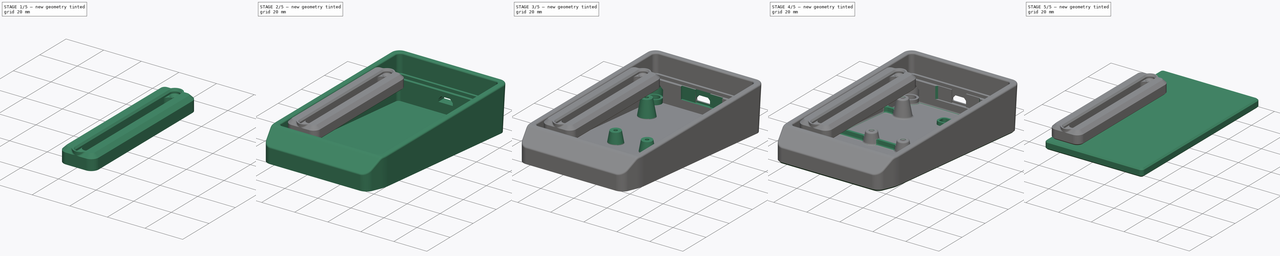
[diagram: build sequence overview — one tinted view per stage of 5, left to right]
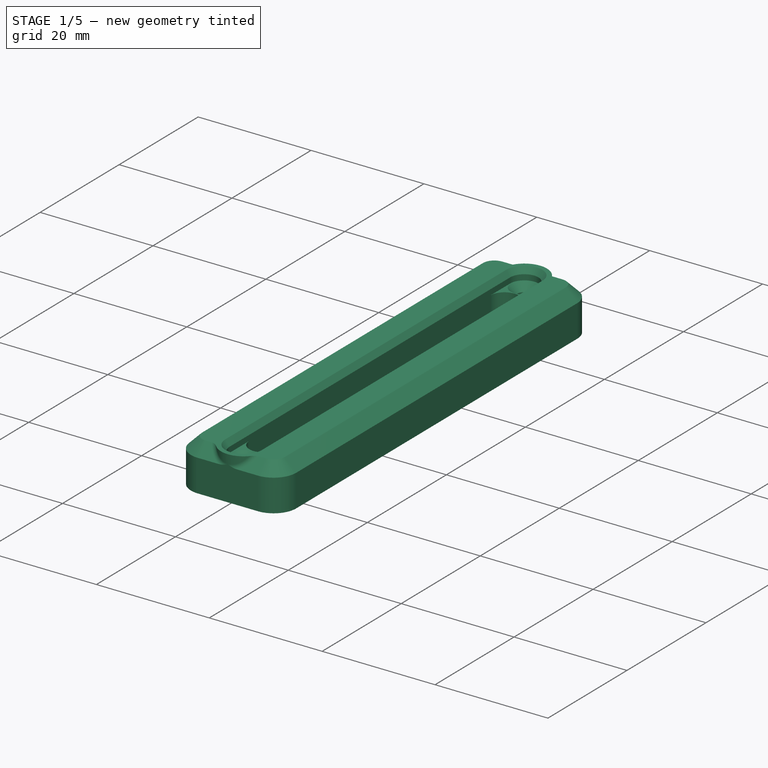
[diagram: stage 1 of 5 — iso view after this stage's code; geometry added in this stage tinted green]
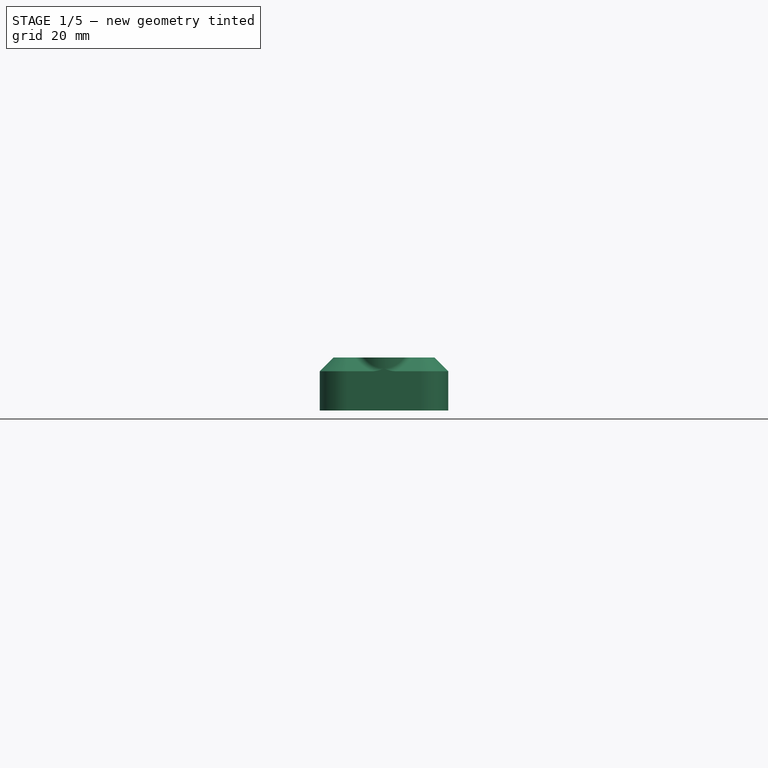
[diagram: stage 1 of 5 — front view after this stage's code; geometry added in this stage tinted green]
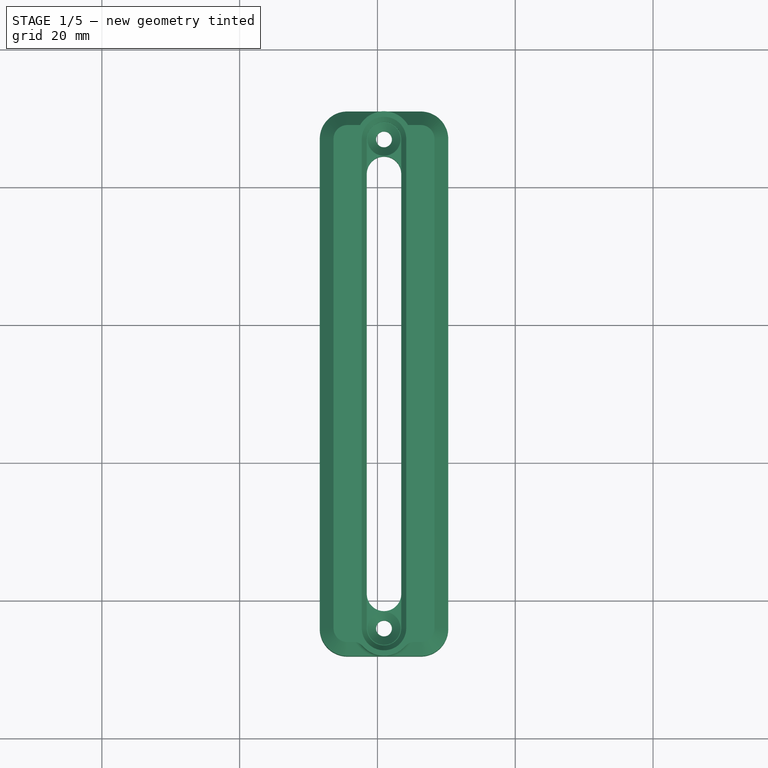
[diagram: stage 1 of 5 — top view after this stage's code; geometry added in this stage tinted green]
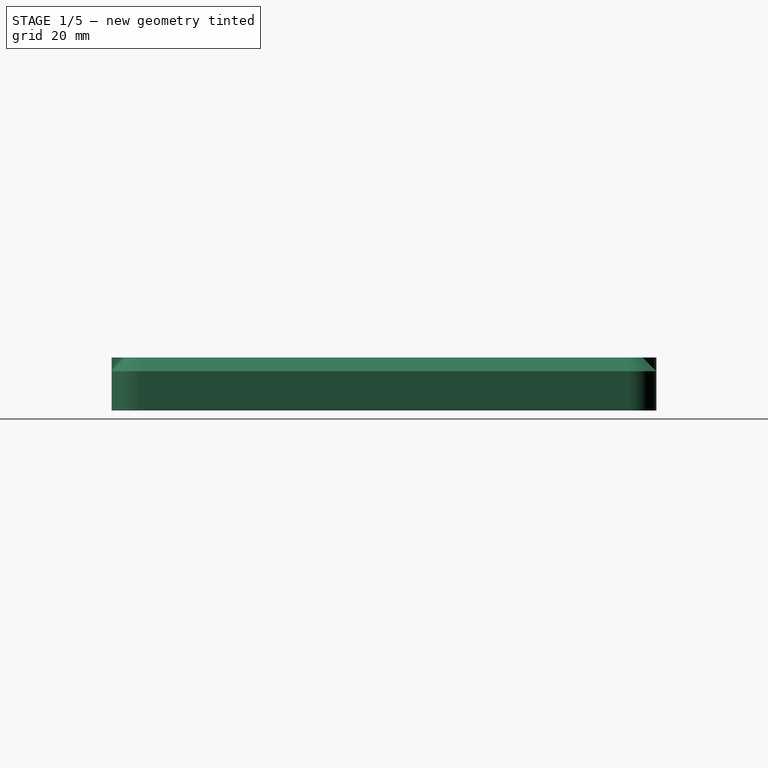
[diagram: stage 1 of 5 — right view after this stage's code; geometry added in this stage tinted green]
FCSTD DOCUMENT  (FreeCAD 2022.709R28846 (Git))
Label: keeby_cat_case_TRIO
License: All rights reserved
LicenseURL: http://en.wikipedia.org/wiki/All_rights_reserved
objects: App::FeaturePython×39, Part::FeaturePython×33, Sketcher::SketchObject×22, PartDesign::Pad×15, PartDesign::Fillet×14, PartDesign::Pocket×12, PartDesign::Chamfer×11, PartDesign::SubShapeBinder×9, Part::SubShapeBinder×9, App::Link×8, PartDesign::Plane×8, PartDesign::Body×6, Part::Feature×6, Sketcher::SketchExport×5, PartDesign::Draft×4, PartDesign::Point×3, PartDesign::Mirrored×3, App::DocumentObjectGroup×2, PartDesign::Groove×2, PartDesign::Boolean×2, +5 more types
note: 292 computed .brp shape members not serialized (recipe doc carries the construction recipe); baked Part::Feature solids carry a one-line shape summary decoded from their .brp
EXTERNAL_REF file=keeby_cat_electronics_v1.0.FCStd obj=Board_61fa
EXTERNAL_REF file=knob_brute.FCStd obj=Body
EXTERNAL_REF file=silicone_stopper_foot.FCStd obj=Body

FEATURE [PartDesign::Body] Body003  label="Bootloader Button"
  AutoGroupSolids = false
  ClaimAllChildren = false
  ExportMode = 0
  Group = -> [Import009,Pad009,Pad010,Sketch019,Pad011,Chamfer005,Chamfer007,Chamfer006,Import010]
  Origin = -> Origin004
  Tip = -> Chamfer006
  TreeRank = 283
  _ExportChildren = -> [Pad009,Pad010,Pad011,Chamfer005,Chamfer007,Chamfer006,Import010]
  _GroupVersion = 1
FEATURE [Part::Feature] path846
  Placement = pos=(-14,-9e-16,0) rot=(0,0,1;0rad)
  TreeRank = 421
  shape: bbox 9.835 x 8.942 x 4e-07 mm, 0 faces, 0 solids (baked)
FEATURE [Part::Feature] path846001
  Placement = pos=(-14,-9e-16,0) rot=(0,0,1;0rad)
  TreeRank = 422
  shape: bbox 1.645 x 1.81 x 4e-07 mm, 0 faces, 0 solids (baked)
FEATURE [Part::Feature] path846002
  Placement = pos=(-14,-9e-16,0) rot=(0,0,1;0rad)
  TreeRank = 423
  shape: bbox 1.645 x 1.807 x 4e-07 mm, 0 faces, 0 solids (baked)
FEATURE [Part::Feature] path846003
  Placement = pos=(-14,-9e-16,0) rot=(0,0,1;0rad)
  TreeRank = 424
  shape: bbox 0.672 x 1.153 x 4e-07 mm, 0 faces, 0 solids (baked)
FEATURE [Part::Feature] path846004
  Placement = pos=(-14,-9e-16,0) rot=(0,0,1;0rad)
  TreeRank = 425
  shape: bbox 0.672 x 1.153 x 4e-07 mm, 0 faces, 0 solids (baked)
FEATURE [Part::Feature] path846005
  Placement = pos=(-14,-9e-16,0) rot=(0,0,1;0rad)
  TreeRank = 426
  shape: bbox 1.268 x 0.8606 x 4e-07 mm, 0 faces, 0 solids (baked)
FEATURE [Part::FeaturePython] Clone  label="path846006"  # Draft clone (typed FeaturePython)
  AttacherType = Attacher::AttachEngine3D
  Fuse = false
  Objects = -> [path846]
  Placement = pos=(-4.36764,-4e-16,0) rot=(0,0,1;0rad)
  Scale = (1,1,1)
  TreeRank = 427
FEATURE [Part::FeaturePython] Clone001  label="path846007"  # Draft clone (typed FeaturePython)
  AttacherType = Attacher::AttachEngine3D
  Fuse = false
  Objects = -> [path846001]
  Placement = pos=(-4.36764,-4e-16,0) rot=(0,0,1;0rad)
  Scale = (1,1,1)
  TreeRank = 428
FEATURE [Part::FeaturePython] Clone002  label="path846008"  # Draft clone (typed FeaturePython)
  AttacherType = Attacher::AttachEngine3D
  Fuse = false
  Objects = -> [path846002]
  Placement = pos=(-4.36764,-4e-16,0) rot=(0,0,1;0rad)
  Scale = (1,1,1)
  TreeRank = 429
FEATURE [Part::FeaturePython] Clone003  label="path846009"  # Draft clone (typed FeaturePython)
  AttacherType = Attacher::AttachEngine3D
  Fuse = false
  Objects = -> [path846003]
  Placement = pos=(-4.36764,-4e-16,0) rot=(0,0,1;0rad)
  Scale = (1,1,1)
  TreeRank = 430
FEATURE [Part::FeaturePython] Clone004  label="path846010"  # Draft clone (typed FeaturePython)
  AttacherType = Attacher::AttachEngine3D
  Fuse = false
  Objects = -> [path846004]
  Placement = pos=(-4.36764,-4e-16,0) rot=(0,0,1;0rad)
  Scale = (1,1,1)
  TreeRank = 431
FEATURE [Part::FeaturePython] Clone005  label="path846011"  # Draft clone (typed FeaturePython)
  AttacherType = Attacher::AttachEngine3D
  Fuse = false
  Objects = -> [path846005]
  Placement = pos=(-4.36764,-4e-16,0) rot=(0,0,1;0rad)
  Scale = (1,1,1)
  TreeRank = 432
FEATURE [Part::FeaturePython] Clone006  label="path846012"  # Draft clone (typed FeaturePython)
  AttacherType = Attacher::AttachEngine3D
  Fuse = false
  Objects = -> [Clone,Clone001,Clone002,Clone003,Clone004,Clone005]
  Placement = pos=(-4.36764,-4e-16,0) rot=(0,0,1;0rad)
  Scale = (5,5,5)
  TreeRank = 433
FEATURE [Part::FeaturePython] Clone007  label="path846013"  # Draft clone (typed FeaturePython)
  AttacherType = Attacher::AttachEngine3D
  Fuse = false
  Objects = -> [path846]
  Placement = pos=(-3.01964,-4e-16,0) rot=(0,0,1;0rad)
  Scale = (1,1,1)
  TreeRank = 434
FEATURE [Part::FeaturePython] Clone008  label="path846014"  # Draft clone (typed FeaturePython)
  AttacherType = Attacher::AttachEngine3D
  Fuse = false
  Objects = -> [path846001]
  Placement = pos=(-3.01964,-4e-16,0) rot=(0,0,1;0rad)
  Scale = (1,1,1)
  TreeRank = 435
FEATURE [Part::FeaturePython] Clone009  label="path846015"  # Draft clone (typed FeaturePython)
  AttacherType = Attacher::AttachEngine3D
  Fuse = false
  Objects = -> [path846002]
  Placement = pos=(-3.01964,-4e-16,0) rot=(0,0,1;0rad)
  Scale = (1,1,1)
  TreeRank = 436
FEATURE [Part::FeaturePython] Clone010  label="path846016"  # Draft clone (typed FeaturePython)
  AttacherType = Attacher::AttachEngine3D
  Fuse = false
  Objects = -> [path846003]
  Placement = pos=(-3.01964,-4e-16,0) rot=(0,0,1;0rad)
  Scale = (1,1,1)
  TreeRank = 437
FEATURE [Part::FeaturePython] Clone011  label="path846017"  # Draft clone (typed FeaturePython)
  AttacherType = Attacher::AttachEngine3D
  Fuse = false
  Objects = -> [path846004]
  Placement = pos=(-3.01964,-4e-16,0) rot=(0,0,1;0rad)
  Scale = (1,1,1)
  TreeRank = 438
FEATURE [Part::FeaturePython] Clone012  label="path846018"  # Draft clone (typed FeaturePython)
  AttacherType = Attacher::AttachEngine3D
  Fuse = false
  Objects = -> [path846005]
  Placement = pos=(-3.01964,-4e-16,0) rot=(0,0,1;0rad)
  Scale = (1,1,1)
  TreeRank = 439
FEATURE [Part::FeaturePython] Clone013  label="mascot"  # Draft clone (typed FeaturePython)
  AttacherType = Attacher::AttachEngine3D
  Fuse = false
  Objects = -> [Clone,Clone001,Clone002,Clone003,Clone004,Clone005]
  Placement = pos=(-3.01964,-4e-16,0) rot=(0,0,1;0rad)
  Scale = (5,5,5)
  TreeRank = 440
FEATURE [App::DocumentObjectGroup] Group001  label="Group"
  ClaimAllChildren = true
  ExportMode = 1
  Group = -> [Clone012,path846,path846001,path846002,path846003,path846004,path846005,Clone,Clone001,Clone002,Clone003,Clone004,Clone005,Clone006,Clone007,Clone008,Clone009,Clone010,Clone011]
  TreeRank = 441
  _GroupVersion = 1
FEATURE [PartDesign::SubShapeBinder] Binder003  label="Binder003(Mascot Body)"
  BindCopyOnChange = 0
  BindMode = 0
  ClaimChildren = false
  Context = -> Assembly [Parts.Part.Body002.Binder003.]
  FillStyle = 0
  Fuse = false
  MakeFace = true
  OffsetFill = false
  OffsetIntersection = false
  OffsetJoinType = 0
  OffsetOpenResult = false
  PartialLoad = false
  Relative = true
  Support = -> [Body004]
  TreeRank = 335
  _Version = 8
FEATURE [PartDesign::SubShapeBinder] Reference  label="Reference(*Mascot Body)"
  BindCopyOnChange = 0
  BindMode = 0
  ClaimChildren = false
  FillStyle = 0
  Fuse = true
  MakeFace = true
  OffsetFill = false
  OffsetIntersection = false
  OffsetJoinType = 0
  OffsetOpenResult = false
  PartialLoad = false
  Relative = true
  Support = -> [Binder003]
  TreeRank = 337
  _Version = 8
FEATURE [App::FeaturePython] Relation011  label="Origin006"  # WARN: FeaturePython — macro-defined, semantics opaque (R4)
  Count = 0
  Index = 0
  Part = -> Origin006
  TreeRank = 374
  _LinkVersion = 1
FEATURE [Part::SubShapeBinder] Import011  label="Import011(Chamfer)"
  BindCopyOnChange = 0
  BindMode = 0
  ClaimChildren = false
  Context = -> Body005 [Import011.]
  FillStyle = 0
  Fuse = false
  MakeFace = false
  OffsetFill = false
  OffsetIntersection = false
  OffsetJoinType = 0
  OffsetOpenResult = false
  PartialLoad = false
  Relative = true
  Support = -> [Assembly[Parts.Part.Body001.Chamfer.]]
  TreeRank = 443
  _Version = 8
FEATURE [PartDesign::Plane] DatumPlane003  label="Plate Top"
  AttachmentSupport = -> [Import011]
  Length = 64.8
  MapMode = 5
  MinimumLength = 10
  MinimumWidth = 10
  Placement = pos=(0,0,5.89619) rot=(0,0,1;0rad)
  ResizeMode = 0
  Support = -> [Import011]
  TreeRank = 442
  Width = 114.919
FEATURE [Part::SubShapeBinder] Import012  label="Import012(base)"
  BindCopyOnChange = 0
  BindMode = 0
  ClaimChildren = false
  Context = -> Body005 [Import012.]
  FillStyle = 0
  Fuse = false
  MakeFace = false
  OffsetFill = false
  OffsetIntersection = false
  OffsetJoinType = 0
  OffsetOpenResult = false
  PartialLoad = false
  Relative = true
  Support = -> [Assembly[Parts.Link.Step_Models_61fa.Top_61fa.VR3_B10K_B103_sliding_potentiometer_v8_0e7ca3619782_ln_001.Solid039.]]
  TreeRank = 403
  _Version = 8
FEATURE [Sketcher::SketchObject] Sketch022  label="Pot Cut"
  ArcFitTolerance = 1e-06
  AttachmentSupport = -> [DatumPlane003]
  ExternalGeometry = -> [Import012,Import011]
  FullyConstrained = true
  MapMode = 5
  Placement = pos=(0,0,5.89619) rot=(0,0,1;0rad)
  Support = -> [DatumPlane003]
  TreeRank = 402
  expr: Constraints[31] = <<Spreadsheet>>.key_unit_u
  expr: Constraints[32] = <<Spreadsheet>>.key_unit_u
  expr: Constraints[75] = <<Spreadsheet>>.key_unit_u - 0.4
  sketch-geometry (28):
    g0: LineSegment StartX=-24.05 StartY=9.15 StartZ=0 EndX=-14.05 EndY=9.15 EndZ=0
    g1: LineSegment StartX=-14.05 StartY=9.15 StartZ=0 EndX=-14.05 EndY=-66.3 EndZ=0
    g2: LineSegment StartX=-14.05 StartY=-66.3 StartZ=0 EndX=-24.05 EndY=-66.3 EndZ=0
    g3: LineSegment StartX=-24.05 StartY=-66.3 StartZ=0 EndX=-24.05 EndY=9.15 EndZ=0
    g4: LineSegment [constr] StartX=-5 StartY=9.15 StartZ=0 EndX=5 EndY=9.15 EndZ=0
    g5: LineSegment [constr] StartX=5 StartY=9.15 StartZ=0 EndX=5 EndY=-66.3 EndZ=0
    g6: LineSegment [constr] StartX=5 StartY=-66.3 StartZ=0 EndX=-5 EndY=-66.3 EndZ=0
    g7: LineSegment [constr] StartX=-5 StartY=-66.3 StartZ=0 EndX=-5 EndY=9.15 EndZ=0
    g8: LineSegment [constr] StartX=14.05 StartY=9.15 StartZ=0 EndX=24.05 EndY=9.15 EndZ=0
    g9: LineSegment [constr] StartX=24.05 StartY=9.15 StartZ=0 EndX=24.05 EndY=-66.3 EndZ=0
    g10: LineSegment [constr] StartX=24.05 StartY=-66.3 StartZ=0 EndX=14.05 EndY=-66.3 EndZ=0
    g11: LineSegment [constr] StartX=14.05 StartY=-66.3 StartZ=0 EndX=14.05 EndY=9.15 EndZ=0
    g12: GeomPoint X=-4.5 Y=-28.575 Z=0
    g13: LineSegment [constr] StartX=-4.5 StartY=-28.575 StartZ=0 EndX=-5 EndY=-28.575 EndZ=0
    g14: LineSegment StartX=-25.8503 StartY=10.9503 StartZ=0 EndX=-12.2497 EndY=10.9503 EndZ=0
    g15: LineSegment [constr] StartX=-12.2497 StartY=10.9503 StartZ=0 EndX=-12.2497 EndY=-68.1002 EndZ=0
    g16: LineSegment StartX=-12.2497 StartY=-68.1002 StartZ=0 EndX=-25.8503 EndY=-68.1002 EndZ=0
    g17: LineSegment [constr] StartX=-25.8503 StartY=-68.1002 StartZ=0 EndX=-25.8503 EndY=10.9503 EndZ=0
    g18: LineSegment [constr] StartX=-5 StartY=-28.575 StartZ=0 EndX=-12.2497 EndY=-28.575 EndZ=0
    g19: LineSegment [constr] StartX=-19.05 StartY=-68.1003 StartZ=0 EndX=-19.05 EndY=-66.3 EndZ=0
    g20: LineSegment [constr] StartX=-24.05 StartY=-66.3 StartZ=0 EndX=-25.8503 EndY=-66.3 EndZ=0
    g21: LineSegment [constr] StartX=-14.05 StartY=-66.3 StartZ=0 EndX=-5 EndY=-66.3 EndZ=0
    g22: LineSegment StartX=-12.2497 StartY=-68.1002 StartZ=0 EndX=-9.725 EndY=-68.1002 EndZ=0
    g23: LineSegment StartX=-9.725 StartY=-68.1002 StartZ=0 EndX=-9.725 EndY=10.9503 EndZ=0
    g24: LineSegment StartX=-12.2497 StartY=10.9503 StartZ=0 EndX=-9.725 EndY=10.9503 EndZ=0
    g25: LineSegment StartX=-25.8503 StartY=10.9503 StartZ=0 EndX=-28.375 EndY=10.9503 EndZ=0
    g26: LineSegment StartX=-28.375 StartY=10.9503 StartZ=0 EndX=-28.375 EndY=-68.1002 EndZ=0
    g27: LineSegment StartX=-25.8503 StartY=-68.1002 StartZ=0 EndX=-28.375 EndY=-68.1002 EndZ=0
  constraints (76):
    c: Coincident(g0,g1)
    c: Coincident(g1,g2)
    c: Coincident(g2,g3)
    c: Coincident(g3,g0)
    c: Horizontal(g0)
    c: Horizontal(g2)
    c: Vertical(g1)
    c: Vertical(g3)
    c: Coincident(g4,g5)
    c: Coincident(g5,g6)
    c: Coincident(g6,g7)
    c: Coincident(g7,g4)
    c: Horizontal(g4)
    c: Vertical(g5)
    c: Vertical(g7)
    c: DistanceX(g2,g2) = 10
    c: Equal(g6,g2)
    c: Coincident(g8,g9)
    c: Coincident(g9,g10)
    c: Coincident(g10,g11)
    c: Coincident(g11,g8)
    c: Horizontal(g8)
    c: Horizontal(g10)
    c: Vertical(g9)
    c: Vertical(g11)
    c: Horizontal(g10,g5)
    c: Horizontal(g6,g1)
    c: Horizontal(g0,g4)
    c: Horizontal(g4,g8)
    c: Equal(g10,g6)
    c: DistanceY(g3,g3) = 75.45
    c: DistanceX(g1,g5) = 19.05
    c: DistanceX(g5,g9) = 19.05
    c: Symmetric(g6,g5,g-2)
    c: Symmetric(g-4,g-3,g12)
    c: Coincident(g13,g12)
    c: Horizontal(g13)
    c: Symmetric(g6,g4,g13)
    c: Coincident(g14,g15)
    c: Coincident(g15,g16)
    c: Coincident(g16,g17)
    c: Coincident(g17,g14)
    c: Horizontal(g14)
    c: Horizontal(g16)
    c: Vertical(g15)
    c: Vertical(g17)
    c: Coincident(g18,g13)
    c: Horizontal(g18)
    c: Symmetric(g15,g14,g18)
    c: Vertical(g19)
    c: Symmetric(g1,g2,g19)
    c: Symmetric(g15,g16,g19)
    c: Horizontal(g16,g-5)
    c: Coincident(g20,g2)
    c: PointOnObject(g20,g17)
    c: Horizontal(g20)
    c: Equal(g20,g19)
    c: Coincident(g21,g1)
    c: Coincident(g21,g6)
    c: Coincident(g22,g15)
    c: Horizontal(g22)
    c: Coincident(g23,g22)
    c: Vertical(g23)
    c: Coincident(g24,g14)
    c: Coincident(g24,g23)
    c: Horizontal(g24)
    c: Coincident(g25,g14)
    c: Horizontal(g25)
    c: Coincident(g26,g25)
    c: Vertical(g26)
    c: Coincident(g27,g16)
    c: Coincident(g27,g26)
    c: Horizontal(g27)
    c: Equal(g22,g27)
    c: DistanceX(g-6,g26) = 1.625
    c: DistanceX(g26,g22) = 18.65
FEATURE [PartDesign::Plane] DatumPlane004  label="Pot Top"
  AttachmentSupport = -> [Import012]
  Length = 10
  MapMode = 5
  MinimumLength = 10
  MinimumWidth = 10
  Placement = pos=(0,0,8.1) rot=(0,0,1;0rad)
  ResizeMode = 0
  Support = -> [Import012]
  TreeRank = 405
  Width = 10
FEATURE [PartDesign::Pad] Pad013
  ClaimChildren = false
  Direction = (1,1,1)
  Fit = 0
  FitJoin = 0
  InnerFit = 0
  InnerFitJoin = 0
  InnerTaperAngle = 0
  InnerTaperAngleRev = 0
  Length = 10
  Length2 = 100
  Linearize = true
  NewSolid = false
  Placement = pos=(0,0,5.89619) rot=(0,0,1;0rad)
  Profile = -> Sketch022
  Refine = true
  Suppress = false
  TreeRank = 404
  Type = 3
  UpToFace = -> DatumPlane004
  _ProfileBasedVersion = 1
FEATURE [Sketcher::SketchObject] Sketch023  label="Main Layout"
  ArcFitTolerance = 1e-06
  AttachmentSupport = -> [DatumPlane004]
  ExternalGeometry = -> [Pad013,Import012]
  FullyConstrained = true
  MapMode = 5
  Placement = pos=(0,0,8.1) rot=(0,0,1;0rad)
  Support = -> [DatumPlane004]
  TreeRank = 406
  sketch-geometry (16):
    g0: LineSegment StartX=-9.725 StartY=-68.1002 StartZ=0 EndX=-28.375 EndY=-68.1002 EndZ=0
    g1: LineSegment StartX=-28.375 StartY=-68.1002 StartZ=0 EndX=-28.375 EndY=10.9503 EndZ=0
    g2: LineSegment StartX=-28.375 StartY=10.9503 StartZ=0 EndX=-9.725 EndY=10.9503 EndZ=0
    g3: LineSegment StartX=-9.725 StartY=10.9503 StartZ=0 EndX=-9.725 EndY=-68.1002 EndZ=0
    g4: ArcOfCircle [constr] CenterX=-19.05 CenterY=-64.075 CenterZ=0 NormalX=0 NormalY=0 NormalZ=1 AngleXU=0 Radius=2.5 StartAngle=3.14159 EndAngle=6.28319
    g5: LineSegment StartX=-16.55 StartY=-59.075 StartZ=0 EndX=-16.55 EndY=1.925 EndZ=0
    g6: LineSegment StartX=-21.55 StartY=-59.075 StartZ=0 EndX=-21.55 EndY=1.925 EndZ=0
    g7: LineSegment [constr] StartX=-21.55 StartY=-28.575 StartZ=0 EndX=-28.375 EndY=-28.575 EndZ=0
    g8: LineSegment [constr] StartX=-16.55 StartY=-28.575 StartZ=0 EndX=-9.725 EndY=-28.575 EndZ=0
    g9: Circle CenterX=-19.05 CenterY=6.925 CenterZ=0 NormalX=0 NormalY=0 NormalZ=1 AngleXU=0 Radius=1.15
    g10: ArcOfCircle CenterX=-19.05 CenterY=1.925 CenterZ=0 NormalX=0 NormalY=0 NormalZ=1 AngleXU=0 Radius=2.5 StartAngle=0 EndAngle=3.14159
    g11: ArcOfCircle CenterX=-19.05 CenterY=-59.075 CenterZ=0 NormalX=0 NormalY=0 NormalZ=1 AngleXU=0 Radius=2.5 StartAngle=3.14159 EndAngle=6.28319
    g12: Circle CenterX=-19.05 CenterY=-64.075 CenterZ=0 NormalX=0 NormalY=0 NormalZ=1 AngleXU=0 Radius=1.15
    g13: Circle [constr] CenterX=-19.05 CenterY=6.925 CenterZ=0 NormalX=0 NormalY=0 NormalZ=1 AngleXU=0 Radius=2.5
    g14: GeomPoint [constr] X=-21.55 Y=6.925 Z=0
    g15: GeomPoint [constr] X=0 Y=6.925 Z=0
  constraints (43):
    c: Coincident(g0,g1)
    c: Coincident(g1,g2)
    c: Coincident(g2,g3)
    c: Coincident(g3,g0)
    c: Horizontal(g0)
    c: Horizontal(g2)
    c: Vertical(g1)
    c: Vertical(g3)
    c: Coincident(g0,g-4)
    c: Coincident(g1,g-3)
    c: Horizontal(g7)
    c: Symmetric(g1,g0,g7)
    c: PointOnObject(g8,g5)
    c: PointOnObject(g8,g3)
    c: Horizontal(g8)
    c: Horizontal(g8,g7)
    c: Equal(g8,g7)
    c: Horizontal(g10,g10)
    c: Horizontal(g10,g10)
    c: Vertical(g5)
    c: Vertical(g6)
    c: Diameter(g9) = 2.3
    c: Symmetric(g11,g10,g7)
    c: Coincident(g6,g10)
    c: Coincident(g5,g10)
    c: Tangent(g6,g11) = 1.5708
    c: Tangent(g5,g11) = -1.5708
    c: Vertical(g4,g5)
    c: Vertical(g4,g6)
    c: Horizontal(g4,g4)
    c: Horizontal(g4,g4)
    c: Coincident(g12,g4)
    c: Equal(g12,g9)
    c: Coincident(g13,g9)
    c: Tangent(g13,g10)
    c: PointOnObject(g14,g13)
    c: Horizontal(g9,g14)
    c: Symmetric(g14,g4,g7)
    c: Vertical(g10,g9)
    c: Vertical(g11,g6)
    c: Horizontal(g9,g-5)
    c: DistanceX(g6,g5) = 5
    c: Coincident(g15,g-5)
FEATURE [PartDesign::Pad] Pad014
  BaseFeature = -> Pad013
  ClaimChildren = false
  Direction = (1,1,1)
  Fit = 0
  FitJoin = 0
  InnerFit = 0
  InnerFitJoin = 0
  InnerTaperAngle = 0
  InnerTaperAngleRev = 0
  Length = 4.5
  Length2 = 100
  Linearize = true
  NewSolid = false
  Placement = pos=(0,0,5.89619) rot=(0,0,1;0rad)
  Profile = -> Sketch023
  Refine = true
  Suppress = false
  TreeRank = 407
  Type = 0
  _ProfileBasedVersion = 1
FEATURE [PartDesign::Point] DatumPoint002
  AttacherType = Attacher::AttachEnginePoint
  AttachmentSupport = -> [Import012]
  MapMode = 36
  Placement = pos=(4.2e-15,6.925,8.1) rot=(-1,0,0;1.5708rad)
  Support = -> [Import012]
  TreeRank = 409
FEATURE [PartDesign::Plane] DatumPlane005
  AttachmentOffset = pos=(0,0,0) rot=(0,0,1;3.14159rad)
  AttachmentSupport = -> [DatumPoint002]
  Length = 10
  MapMode = 2
  MinimumLength = 10
  MinimumWidth = 10
  Placement = pos=(4.2e-15,6.925,8.1) rot=(0,0.707107,0.707107;3.14159rad)
  ResizeMode = 0
  Support = -> [DatumPoint002]
  TreeRank = 410
  Width = 10
FEATURE [Sketcher::SketchObject] Sketch024
  ArcFitTolerance = 1e-06
  AttachmentSupport = -> [DatumPlane005]
  ExternalGeometry = -> [Pad014]
  FullyConstrained = true
  MapMode = 5
  Placement = pos=(4.2e-15,6.925,8.1) rot=(0,0.707107,0.707107;3.14159rad)
  Support = -> [DatumPlane005]
  TreeRank = 411
  sketch-geometry (5):
    g0: LineSegment StartX=19.05 StartY=4.5 StartZ=0 EndX=19.05 EndY=1.12 EndZ=0
    g1: LineSegment StartX=19.05 StartY=1.12 StartZ=0 EndX=21.45 EndY=3.52 EndZ=0
    g2: LineSegment StartX=21.45 StartY=3.52 StartZ=0 EndX=21.45 EndY=4.5 EndZ=0
    g3: LineSegment StartX=21.45 StartY=4.5 StartZ=0 EndX=19.05 EndY=4.5 EndZ=0
    g4: LineSegment [constr] StartX=19.05 StartY=1.12 StartZ=0 EndX=19.05 EndY=4.5 EndZ=0
  constraints (13):
    c: Vertical(g0)
    c: Coincident(g2,g1)
    c: PointOnObject(g2,g-3)
    c: Vertical(g2)
    c: Coincident(g3,g2)
    c: Coincident(g3,g0)
    c: Symmetric(g-3,g-3,g0)
    c: DistanceX(g3,g3) = 2.4
    c: Coincident(g1,g0)
    c: Coincident(g4,g0)
    c: Coincident(g4,g0)
    c: DistanceY(g2,g2) = 0.98  'counter'
    c: Angle(g1,g0) = 0.785398
FEATURE [PartDesign::Groove] Groove001
  Angle = 360
  Axis = (-4e-16,-8e-16,3.38)
  Base = (-19.05,6.925,9.22)
  BaseFeature = -> Pad014
  ClaimChildren = false
  Fit = 0
  FitJoin = 0
  InnerFit = 0
  InnerFitJoin = 0
  NewSolid = false
  Placement = pos=(0,0,5.89619) rot=(0,0,1;0rad)
  Profile = -> Sketch024
  ReferenceAxis = -> Sketch024 [Axis0]
  Reversed = true
  Suppress = false
  TreeRank = 412
  _ProfileBasedVersion = 1
FEATURE [Sketcher::SketchObject] Sketch026
  ArcFitTolerance = 1e-06
  AttachmentSupport = -> [Groove001]
  ExternalGeometry = -> [Sketch024,Sketch023]
  FullyConstrained = true
  MapMode = 5
  Placement = pos=(0,0,12.6) rot=(0,0,1;0rad)
  Support = -> [Groove001]
  TreeRank = 414
  sketch-geometry (4):
    g0: ArcOfCircle CenterX=-19.05 CenterY=6.925 CenterZ=0 NormalX=0 NormalY=0 NormalZ=1 AngleXU=0 Radius=2.5 StartAngle=0 EndAngle=3.14159
    g1: LineSegment StartX=-16.55 StartY=6.925 StartZ=0 EndX=-16.55 EndY=1.925 EndZ=0
    g2: LineSegment StartX=-16.55 StartY=1.925 StartZ=0 EndX=-21.55 EndY=1.925 EndZ=0
    g3: LineSegment StartX=-21.55 StartY=1.925 StartZ=0 EndX=-21.55 EndY=6.925 EndZ=0
  constraints (12):
    c: Coincident(g1,g2)
    c: Coincident(g2,g3)
    c: Horizontal(g2)
    c: Tangent(g0,g3) = 1.5708
    c: Coincident(g0,g-3)
    c: Vertical(g1)
    c: PointOnObject(g-4,g1)
    c: PointOnObject(g-4,g2)
    c: Horizontal(g0,g0)
    c: Horizontal(g0,g1)
    c: Vertical(g0,g1)
    c: Vertical(g3)
FEATURE [PartDesign::Pocket] Pocket013
  BaseFeature = -> Groove001
  ClaimChildren = false
  Fit = 0
  FitJoin = 0
  InnerFit = 0
  InnerFitJoin = 0
  InnerTaperAngle = 0
  InnerTaperAngleRev = 0
  Length = 0.98
  Length2 = 100
  Linearize = true
  NewSolid = false
  Placement = pos=(0,0,5.89619) rot=(0,0,1;0rad)
  Profile = -> Sketch026
  Refine = true
  Suppress = false
  TreeRank = 415
  Type = 0
  _ProfileBasedVersion = 1
  expr: Length = <<Sketch024>>.Constraints.counter
FEATURE [Sketcher::SketchObject] Sketch027  label="Pot Center XY"
  ArcFitTolerance = 1e-06
  AttachmentSupport = -> [DatumPlane004]
  ExternalGeometry = -> [Import012,Sketch023]
  FullyConstrained = true
  MapMode = 5
  Placement = pos=(0,0,8.1) rot=(0,0,1;0rad)
  Support = -> [DatumPlane004]
  TreeRank = 446
  sketch-geometry (3):
    g0: LineSegment StartX=-4.5 StartY=-28.575 StartZ=0 EndX=4.5 EndY=-28.575 EndZ=0
    g1: LineSegment StartX=-19.05 StartY=6.925 StartZ=0 EndX=-19.05 EndY=-64.075 EndZ=0
    g2: GeomPoint [constr] X=-19.05 Y=-28.575 Z=0
  constraints (7):
    c: Horizontal(g0)
    c: Symmetric(g-4,g-3,g0)
    c: Vertical(g0,g-5)
    c: Coincident(g1,g-6)
    c: Vertical(g1)
    c: Symmetric(g-6,g1,g2)
    c: Horizontal(g2,g0)
FEATURE [PartDesign::Plane] DatumPlane006  label="Pot Center Y Plane"
  AttachmentOffset = pos=(0,0,0) rot=(0,0,-1;1.5708rad)
  AttachmentSupport = -> [Sketch027,XZ_Plane006]
  Length = 10
  MapMode = 6
  MinimumLength = 10
  MinimumWidth = 10
  Placement = pos=(4.5,-28.575,8.1) rot=(1,0,0;1.5708rad)
  ResizeMode = 0
  Support = -> [Sketch027,XZ_Plane006]
  TreeRank = 447
  Width = 10
FEATURE [PartDesign::Mirrored] Mirrored001
  BaseFeature = -> Pocket013
  CopyShape = false
  MirrorPlane = -> DatumPlane006
  NewSolid = false
  OriginalSubs = -> [Pocket013,Groove001]
  Originals = -> [Pocket013,Groove001]
  ParallelTransform = true
  Placement = pos=(0,0,5.89619) rot=(0,0,1;0rad)
  Refine = true
  SubTransform = true
  Suppress = false
  TreeRank = 448
FEATURE [PartDesign::Fillet] Fillet013
  Base = -> Mirrored001 [Edge13,Edge11,Edge9,Edge15]
  BaseFeature = -> Mirrored001
  NewSolid = false
  Placement = pos=(0,0,5.89619) rot=(0,0,1;0rad)
  Radius = 4
  SupportTransform = false
  Suppress = false
  TreeRank = 449
FEATURE [App::Link] Link006  label="Link006(Body005)"
  AutoLinkLabel = true
  AutoPlacement = true
  LinkPlacement = pos=(19.05,0,0) rot=(0,0,1;0rad)
  LinkedObject = -> Body005
  Placement = pos=(19.05,0,0) rot=(0,0,1;0rad)
  ShowElement = false
  SyncGroupVisibility = false
  TreeRank = 451
  _LinkVersion = 1
  expr: Placement.Base.x = <<Spreadsheet>>.key_unit_u
FEATURE [App::Link] Link007  label="Link007(*Body005)"
  AutoLinkLabel = true
  AutoPlacement = true
  LinkPlacement = pos=(38.1,0,0) rot=(0,0,1;0rad)
  LinkedObject = -> Link006
  Placement = pos=(38.1,0,0) rot=(0,0,1;0rad)
  ShowElement = false
  SyncGroupVisibility = false
  TreeRank = 452
  _LinkVersion = 1
  expr: Placement.Base.x = <<Spreadsheet>>.key_unit_u * 2
FEATURE [PartDesign::Plane] DatumPlane007  label="Pot Center X Plane"
  AttachmentSupport = -> [Sketch027]
  BaseAttacherType = Attacher::AttachEngine3D
  BaseAttachment = -> [YZ_Plane006]
  BaseMapMode = 5
  BaseMapPathParameter = 0
  BaseMapReversed = false
  Length = 10
  MapMode = 1
  MinimumLength = 10
  MinimumWidth = 10
  Placement = pos=(-19.05,-64.075,8.1) rot=(0,1,0;1.5708rad)
  ResizeMode = 0
  Support = -> [Sketch027]
  TreeRank = 474
  Width = 79.0505
FEATURE [PartDesign::Pad] Pad019
  BaseFeature = -> Fillet013
  ClaimChildren = false
  Direction = (1,1,1)
  Fit = 0
  FitJoin = 0
  InnerFit = 0
  InnerFitJoin = 0
  InnerTaperAngle = 36
  InnerTaperAngleRev = 0
  Length = 1
  Length2 = 100
  Linearize = true
  NewSolid = false
  Placement = pos=(0,0,5.89619) rot=(0,0,1;0rad)
  Profile = -> Fillet013 [Face14]
  Refine = true
  Suppress = false
  TreeRank = 488
  Type = 0
  _ProfileBasedVersion = 1
  expr: InnerTaperAngle = 90 - 54
FEATURE [Sketcher::SketchObject] Sketch028
  ArcFitTolerance = 1e-06
  AttachmentSupport = -> [DatumPlane006]
  ExternalGeometry = -> [Pad019]
  FullyConstrained = true
  MapMode = 5
  Placement = pos=(4.5,-28.575,8.1) rot=(1,0,0;1.5708rad)
  Support = -> [DatumPlane006]
  TreeRank = 489
  sketch-geometry (4):
    g0: LineSegment StartX=-32.875 StartY=5.5 StartZ=0 EndX=-30.875 EndY=5.5 EndZ=0
    g1: LineSegment StartX=-30.875 StartY=5.5 StartZ=0 EndX=-32.875 EndY=3.5 EndZ=0
    g2: LineSegment StartX=-32.875 StartY=3.5 StartZ=0 EndX=-32.875 EndY=5.5 EndZ=0
    g3: GeomPoint [constr] X=-23.55 Y=5.5 Z=0
  constraints (9):
    c: Coincident(g0,g1)
    c: Coincident(g2,g0)
    c: Horizontal(g0)
    c: Vertical(g2)
    c: Coincident(g0,g-3)
    c: Coincident(g1,g2)
    c: Equal(g0,g2)
    c: DistanceY(g2,g2) = 2
    c: Symmetric(g-4,g0,g3)
FEATURE [PartDesign::AdditivePipe] AdditivePipe
  AuxilleryCurvelinear = true
  AuxillerySpineTangent = false
  Binormal = (0,0,0)
  ClaimChildren = false
  Fit = 0
  FitJoin = 0
  InnerFit = 0
  InnerFitJoin = 0
  Mode = 0
  NewSolid = true
  Placement = pos=(4.5,-28.575,8.1) rot=(1,0,0;1.5708rad)
  Profile = -> Sketch028
  Spine = -> Pad019 [Edge56,Edge58,Edge59,Edge57,Edge55,Edge53,Edge52,Edge54]
  SpineTangent = false
  Suppress = false
  Transformation = 0
  Transition = 1
  TreeRank = 490
  _ProfileBasedVersion = 1
FEATURE [Sketcher::SketchObject] Sketch029
  ArcFitTolerance = 1e-06
  AttachmentSupport = -> [DatumPlane004]
  ExternalGeometry = -> [Sketch023]
  FullyConstrained = false
  MapMode = 5
  Placement = pos=(0,0,8.1) rot=(0,0,1;0rad)
  Support = -> [DatumPlane004]
  TreeRank = 491
  sketch-geometry (5):
    g0: LineSegment [constr] StartX=-12.9337 StartY=3.69659 StartZ=0 EndX=-25.8536 EndY=3.69659 EndZ=0
    g1: ArcOfCircle CenterX=-19.05 CenterY=-64.075 CenterZ=0 NormalX=0 NormalY=0 NormalZ=1 AngleXU=0 Radius=4.02525 StartAngle=3.14159 EndAngle=6.28319
    g2: ArcOfCircle CenterX=-19.05 CenterY=6.925 CenterZ=0 NormalX=0 NormalY=0 NormalZ=1 AngleXU=0 Radius=4.02525 StartAngle=0 EndAngle=3.14159
    g3: LineSegment StartX=-15.0248 StartY=-64.075 StartZ=0 EndX=-15.0248 EndY=6.925 EndZ=0
    g4: LineSegment StartX=-23.0752 StartY=-64.075 StartZ=0 EndX=-23.0752 EndY=6.925 EndZ=0
  constraints (10):
    c: Horizontal(g0)
    c: Tangent(g1,g4) = 1.5708
    c: Tangent(g1,g3) = -1.5708
    c: Tangent(g3,g2) = -1.5708
    c: Tangent(g4,g2) = 1.5708
    c: Vertical(g3)
    c: Equal(g1,g2)
    c: Tangent(g2,g-3)
    c: Tangent(g1,g-6)
    c: Coincident(g-4,g2)
FEATURE [PartDesign::Pocket] Pocket014
  BaseFeature = -> AdditivePipe
  ClaimChildren = false
  Fit = 0
  FitJoin = 0
  InnerFit = 0
  InnerFitJoin = 0
  InnerTaperAngle = 0
  InnerTaperAngleRev = 0
  Length = 5
  Length2 = 100
  Linearize = true
  Midplane = true
  NewSolid = false
  Placement = pos=(4.5,-28.575,8.1) rot=(1,0,0;1.5708rad)
  Profile = -> Sketch029
  Refine = true
  Suppress = false
  TreeRank = 492
  Type = 1
  _ProfileBasedVersion = 1
FEATURE [PartDesign::SubShapeBinder] Reference001  label="Reference001(Pocket014)"
  BindCopyOnChange = 0
  BindMode = 0
  ClaimChildren = false
  Context = -> Body005 [Reference001.]
  FillStyle = 0
  Fuse = false
  MakeFace = true
  OffsetFill = false
  OffsetIntersection = false
  OffsetJoinType = 0
  OffsetOpenResult = false
  PartialLoad = false
  Relative = true
  Support = -> [Pocket014]
  TreeRank = 494
  _Version = 8
FEATURE [PartDesign::SubShapeBinder] Reference002  label="Reference002(Pocket014)"
  BindCopyOnChange = 0
  BindMode = 0
  ClaimChildren = false
  Context = -> Body005 [Reference002.]
  FillStyle = 0
  Fuse = false
  MakeFace = true
  OffsetFill = false
  OffsetIntersection = false
  OffsetJoinType = 0
  OffsetOpenResult = false
  PartialLoad = false
  Relative = true
  Support = -> [Pocket014]
  TreeRank = 496
  _Version = 8
FEATURE [PartDesign::Boolean] Boolean001
  BaseFeature = -> Pad019
  ClaimAllChildren = false
  ExportMode = 0
  Group = -> [Reference002]
  NewSolid = false
  Refine = true
  Suppress = false
  TreeRank = 497
  Type = 1
  _ExportChildren = -> [Reference002]
  _GroupVersion = 1
FEATURE [PartDesign::Pad] Pad020
  BaseFeature = -> Boolean001
  ClaimChildren = false
  Direction = (1,1,1)
  Fit = 0
  FitJoin = 0
  InnerFit = 0
  InnerFitJoin = 0
  InnerTaperAngle = 0
  InnerTaperAngleRev = 0
  Length = 1
  Length2 = 100
  Linearize = true
  NewSolid = false
  Profile = -> Boolean001 [Face5]
  Refine = true
  Suppress = false
  TaperAngle = -45
  TreeRank = 498
  Type = 0
  _ProfileBasedVersion = 1
FEATURE [PartDesign::Fillet] Fillet014
  Base = -> Pad020 [Edge104]
  BaseFeature = -> Pad020
  NewSolid = false
  Radius = 1
  Refine = true
  SupportTransform = false
  Suppress = false
  TreeRank = 499
FEATURE [Sketcher::SketchObject] Sketch030
  ArcFitTolerance = 1e-06
  AttachmentSupport = -> [DatumPlane007]
  ExternalGeometry = -> [Fillet014]
  FullyConstrained = true
  MapMode = 5
  Placement = pos=(-19.05,-64.075,8.1) rot=(0,1,0;1.5708rad)
  Support = -> [DatumPlane007]
  TreeRank = 500
  sketch-geometry (4):
    g0: LineSegment StartX=-5.5 StartY=-5.02525 StartZ=0 EndX=2.20381 EndY=-5.02525 EndZ=0
    g1: LineSegment StartX=2.20381 StartY=-5.02525 StartZ=0 EndX=2.20381 EndY=-4.02525 EndZ=0
    g2: LineSegment StartX=2.20381 StartY=-4.02525 StartZ=0 EndX=-5.5 EndY=-4.02525 EndZ=0
    g3: LineSegment StartX=-5.5 StartY=-4.02525 StartZ=0 EndX=-5.5 EndY=-5.02525 EndZ=0
  constraints (11):
    c: Coincident(g0,g1)
    c: Coincident(g1,g2)
    c: Coincident(g2,g3)
    c: Coincident(g3,g0)
    c: Horizontal(g0)
    c: Horizontal(g2)
    c: Vertical(g1)
    c: Vertical(g3)
    c: Coincident(g-3,g1)
    c: PointOnObject(g-4,g3)
    c: PointOnObject(g-5,g0)
FEATURE [PartDesign::Pocket] Pocket015
  BaseFeature = -> Fillet014
  ClaimChildren = false
  Fit = 0
  FitJoin = 0
  InnerFit = 0
  InnerFitJoin = 0
  InnerTaperAngle = 0
  InnerTaperAngleRev = 0
  Length = 5
  Length2 = 100
  Linearize = true
  Midplane = true
  NewSolid = false
  Profile = -> Sketch030
  Suppress = false
  TreeRank = 501
  Type = 1
  _ProfileBasedVersion = 1
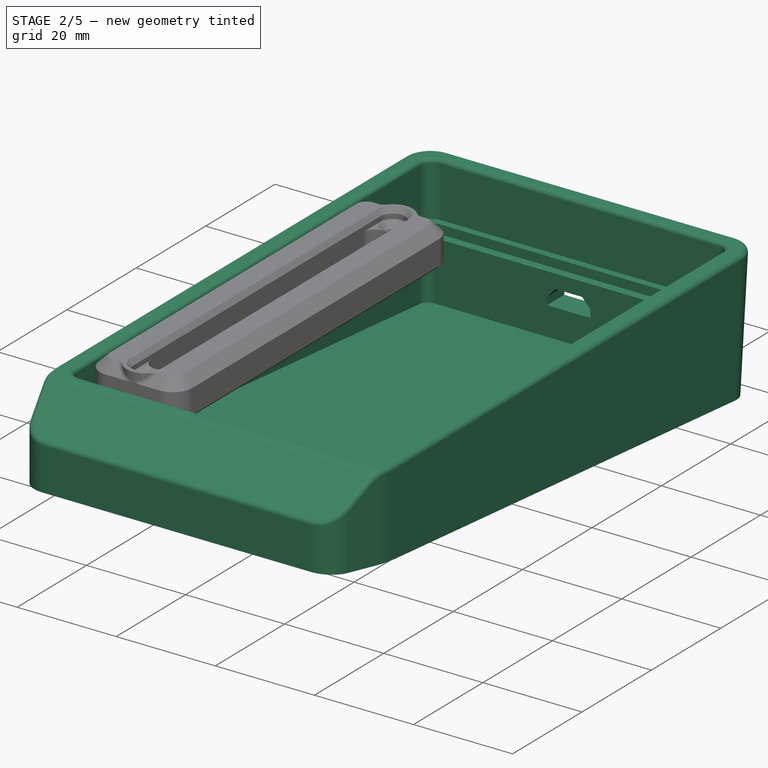
[diagram: stage 2 of 5 — iso view after this stage's code; geometry added in this stage tinted green]
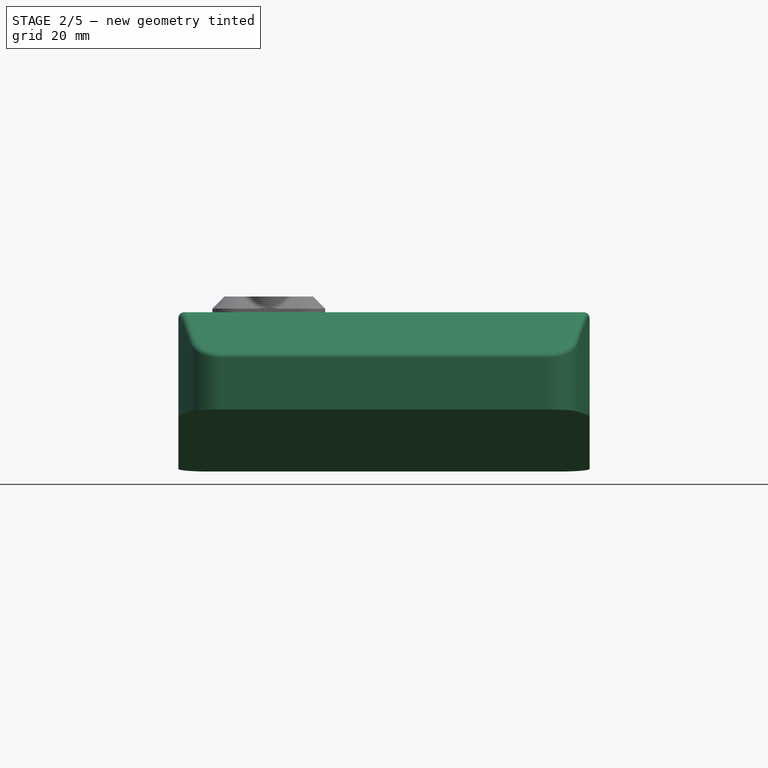
[diagram: stage 2 of 5 — front view after this stage's code; geometry added in this stage tinted green]
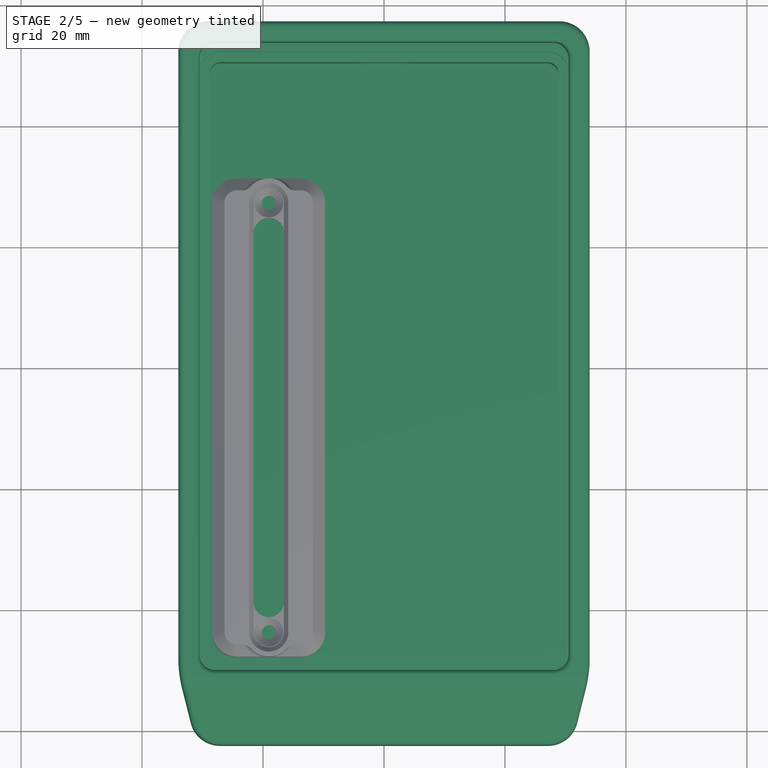
[diagram: stage 2 of 5 — top view after this stage's code; geometry added in this stage tinted green]
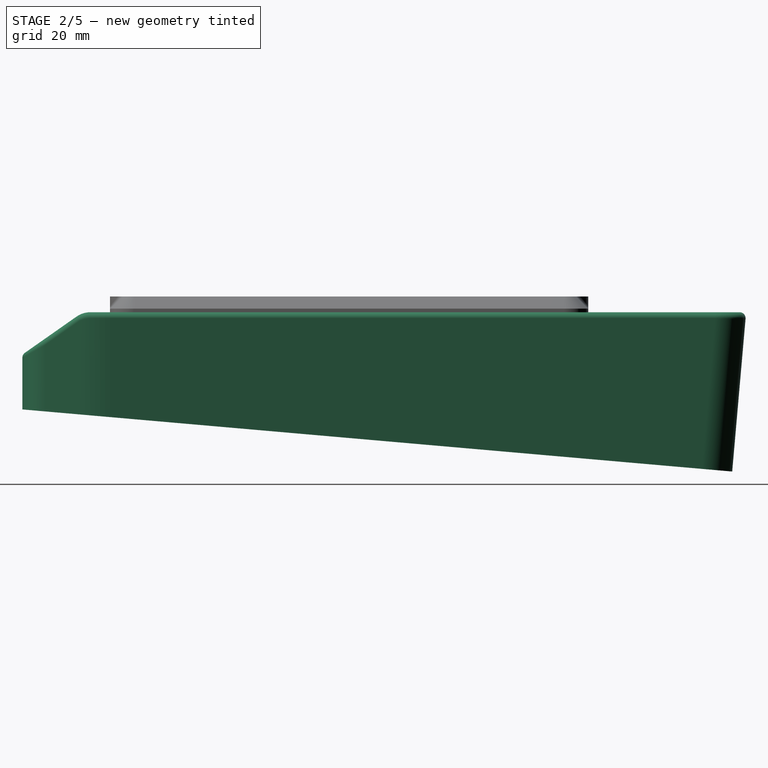
[diagram: stage 2 of 5 — right view after this stage's code; geometry added in this stage tinted green]
FEATURE [App::Link] Link  label="keeby cat board"
  AutoLinkLabel = true
  AutoPlacement = true
  LinkedObject = -> <external keeby_cat_electronics_v1.0.FCStd>#Board_61fa
  ShowElement = false
  SyncGroupVisibility = false
  TreeRank = 416
  _LinkVersion = 1
FEATURE [Spreadsheet::Sheet] Spreadsheet
  PythonMode = false
  ShowCells = 0
  TreeRank = 418
  cells = A3=PCB_thickness; B3(PCB_thickness)=1.6; A4=Case_Angle; B4(Case_Angle)=5; C4=3-5; A5=PCB_edge_additional; B5==60 - 19.05 * 3; A6=X_width; B6(X_width)=60; A7=Y_length; B7(Y_length)==60 - 19.05 * 3 + 19.05 * 5.25; C7=(60-19.05*3)+19.05(5.25); A8=Plate_thk; B8(Plate_thk)=4.8; A9=stopper_height; B9(stopper_height)==7.6 + 0.2 * 4; A10=bezel_width; B10(bezel_width)=4; A11=floor_thk; B11(floor_thk)==0.3 + 0.3 * 3; A12=bttm_chamfer; B12(bttm_chamfer)=1.2; A13=foot_height_c; B13(foot_height_c)=4; A14=foot_large_dia; B14(foot_large_dia)=8.800000000000001; A15=Plastic Screw Hole Diameter; B15(screw_hole_dia_plastic)=2.18; A16=key_unit_u; B16(key_unit_u)=19.05
FEATURE [PartDesign::SubShapeBinder] Binder  label="PCB Top"
  BindCopyOnChange = 0
  BindMode = 0
  ClaimChildren = false
  Context = -> Assembly [Parts.Part.Body.Binder.]
  FillStyle = 0
  Fuse = false
  MakeFace = true
  OffsetFill = false
  OffsetIntersection = false
  OffsetJoinType = 0
  OffsetOpenResult = false
  PartialLoad = false
  Relative = true
  Support = -> [Link[Board_Geoms_61fa.Pcb_61fa.Face468]]
  TreeRank = 20
  _Version = 8
FEATURE [Sketcher::SketchObject] Sketch001  label="PCB Outline"
  ArcFitTolerance = 1e-06
  AttachmentSupport = -> [XY_Plane]
  ExternalGeometry = -> [Binder]
  FullyConstrained = true
  MapMode = 5
  Support = -> [XY_Plane]
  TreeRank = 19
  sketch-geometry (8):
    g0: LineSegment StartX=27 StartY=31.6315 StartZ=0 EndX=-27 EndY=31.6315 EndZ=0
    g1: LineSegment StartX=-30 StartY=28.6315 StartZ=0 EndX=-30 EndY=-65.3685 EndZ=0
    g2: LineSegment StartX=-27 StartY=-68.3685 StartZ=0 EndX=27 EndY=-68.3685 EndZ=0
    g3: LineSegment StartX=30 StartY=-65.3685 StartZ=0 EndX=30 EndY=28.6315 EndZ=0
    g4: ArcOfCircle CenterX=27 CenterY=-65.3685 CenterZ=0 NormalX=0 NormalY=0 NormalZ=1 AngleXU=0 Radius=3 StartAngle=4.71239 EndAngle=6.28319
    g5: ArcOfCircle CenterX=-27 CenterY=-65.3685 CenterZ=0 NormalX=0 NormalY=0 NormalZ=1 AngleXU=0 Radius=3 StartAngle=3.14159 EndAngle=4.71239
    g6: ArcOfCircle CenterX=-27 CenterY=28.6315 CenterZ=0 NormalX=0 NormalY=0 NormalZ=1 AngleXU=0 Radius=3 StartAngle=1.5708 EndAngle=3.14159
    g7: ArcOfCircle CenterX=27 CenterY=28.6315 CenterZ=0 NormalX=0 NormalY=0 NormalZ=1 AngleXU=0 Radius=3 StartAngle=-9e-16 EndAngle=1.5708
  constraints (16):
    c: Horizontal(g0)
    c: Horizontal(g2)
    c: Tangent(g2,g4) = -1.5708
    c: Tangent(g3,g4) = -1.5708
    c: Tangent(g1,g5) = -1.5708
    c: Tangent(g2,g5) = -1.5708
    c: Tangent(g0,g6) = -1.5708
    c: Tangent(g1,g6) = -1.5708
    c: Tangent(g0,g7) = -1.5708
    c: Tangent(g3,g7) = -1.5708
    c: Equal(g7,g6)
    c: Equal(g5,g4)
    c: Coincident(g-4,g0)
    c: Coincident(g-4,g3)
    c: Coincident(g-3,g2)
    c: Coincident(g1,g-3)
FEATURE [PartDesign::SubShapeBinder] Binder001  label="Blue Pill PCB"
  BindCopyOnChange = 0
  BindMode = 0
  ClaimChildren = false
  Context = -> Part [Body.Binder001.]
  FillStyle = 0
  Fuse = false
  MakeFace = true
  OffsetFill = false
  OffsetIntersection = false
  OffsetJoinType = 0
  OffsetOpenResult = false
  PartialLoad = false
  Relative = true
  Support = -> [Link[Step_Models_61fa.Bot_61fa.Part002.Solid047.]]
  TreeRank = 21
  _Version = 8
FEATURE [PartDesign::Pad] Pad  label="Simplified PCB"
  ClaimChildren = false
  Direction = (1,1,1)
  Fit = 0
  FitJoin = 0
  InnerFit = 0
  InnerFitJoin = 0
  InnerTaperAngle = 0
  InnerTaperAngleRev = 0
  Length = 1.6
  Length2 = 100
  Linearize = true
  NewSolid = false
  Profile = -> Sketch001
  Reversed = true
  Suppress = false
  TreeRank = 29
  Type = 0
  _ProfileBasedVersion = 1
  expr: Length = Spreadsheet.PCB_thickness
FEATURE [PartDesign::Body] Body001  label="Plate Simple"
  AutoGroupSolids = false
  ClaimAllChildren = false
  ExportMode = 0
  Group = -> [ShapeBinder,Sketch003,Import,Pad001,Fillet,Chamfer]
  Origin = -> Origin002
  Placement = pos=(0,0,0.1) rot=(0,0,1;0rad)
  Tip = -> Chamfer
  TreeRank = 41
  _ExportChildren = -> [ShapeBinder,Import,Pad001,Fillet,Chamfer]
  _GroupVersion = 1
FEATURE [Part::SubShapeBinder] Import002  label="Import002(Plate Sketch)"
  BindCopyOnChange = 0
  BindMode = 0
  ClaimChildren = false
  Context = -> Assembly [Parts.Part.Body002.Import002.]
  FillStyle = 0
  Fuse = false
  MakeFace = false
  OffsetFill = false
  OffsetIntersection = false
  OffsetJoinType = 0
  OffsetOpenResult = false
  PartialLoad = false
  Relative = true
  Support = -> [Body001[Sketch003.]]
  TreeRank = 63
  _Version = 8
FEATURE [Part::SubShapeBinder] Import003  label="Import003(Pcb_61fa)"
  BindCopyOnChange = 0
  BindMode = 0
  ClaimChildren = false
  Context = -> Assembly [Parts.Part.Body002.Import003.]
  FillStyle = 0
  Fuse = false
  MakeFace = false
  OffsetFill = false
  OffsetIntersection = false
  OffsetJoinType = 0
  OffsetOpenResult = false
  PartialLoad = false
  Relative = true
  Support = -> [Link[Board_Geoms_61fa.Pcb_61fa.]]
  TreeRank = 64
  _Version = 8
FEATURE [Sketcher::SketchObject] Sketch005
  ArcFitTolerance = 1e-06
  AttachmentSupport = -> [XY_Plane002]
  ExternalGeometry = -> [Import002]
  FullyConstrained = true
  MapMode = 5
  Support = -> [XY_Plane002]
  TreeRank = 67
  sketch-geometry (8):
    g0: LineSegment StartX=-28 StartY=33.0627 StartZ=0 EndX=28 EndY=33.0627 EndZ=0
    g1: LineSegment StartX=30 StartY=31.0627 StartZ=0 EndX=30 EndY=-67.7998 EndZ=0
    g2: LineSegment StartX=28 StartY=-69.7998 StartZ=0 EndX=-28 EndY=-69.7998 EndZ=0
    g3: LineSegment StartX=-30 StartY=-67.7998 StartZ=0 EndX=-30 EndY=31.0627 EndZ=0
    g4: ArcOfCircle CenterX=28 CenterY=31.0627 CenterZ=0 NormalX=0 NormalY=0 NormalZ=1 AngleXU=0 Radius=2 StartAngle=0 EndAngle=1.5708
    g5: ArcOfCircle CenterX=-28 CenterY=31.0627 CenterZ=0 NormalX=0 NormalY=0 NormalZ=1 AngleXU=0 Radius=2 StartAngle=1.5708 EndAngle=3.14159
    g6: ArcOfCircle CenterX=-28 CenterY=-67.7998 CenterZ=0 NormalX=0 NormalY=0 NormalZ=1 AngleXU=0 Radius=2 StartAngle=3.14159 EndAngle=4.71239
    g7: ArcOfCircle CenterX=28 CenterY=-67.7998 CenterZ=0 NormalX=0 NormalY=0 NormalZ=1 AngleXU=0 Radius=2 StartAngle=4.71239 EndAngle=6.28319
  constraints (20):
    c: Horizontal(g0)
    c: Horizontal(g2)
    c: Vertical(g1)
    c: Vertical(g3)
    c: Tangent(g0,g4) = 1.5708
    c: Tangent(g1,g4) = 1.5708
    c: Tangent(g0,g5) = 1.5708
    c: Tangent(g3,g5) = 1.5708
    c: Tangent(g2,g6) = 1.5708
    c: Tangent(g3,g6) = 1.5708
    c: Tangent(g2,g7) = 1.5708
    c: Tangent(g1,g7) = 1.5708
    c: Equal(g7,g6)
    c: Equal(g5,g4)
    c: Equal(g4,g7)
    c: PointOnObject(g3,g-3)
    c: PointOnObject(g1,g-4)
    c: Horizontal(g0,g-3)
    c: Horizontal(g2,g-3)
    c: Radius(g5) = 2
FEATURE [App::Link] Link001  label="knob"
  AutoLinkLabel = true
  AutoPlacement = true
  LinkPlacement = pos=(-19.05,23.8125,11.7) rot=(0,0,1;0.41537rad)
  LinkedObject = -> <external knob_brute.FCStd>#Body
  Placement = pos=(-19.05,23.8125,11.7) rot=(0,0,1;0.41537rad)
  ShowElement = false
  SyncGroupVisibility = false
  TreeRank = 419
  _LinkVersion = 1
FEATURE [Part::SubShapeBinder] Import004  label="Import004(PCB Outline)"
  BindCopyOnChange = 0
  BindMode = 0
  ClaimChildren = false
  Context = -> Assembly [Parts.Part.Body002.Import004.]
  FillStyle = 0
  Fuse = false
  MakeFace = false
  OffsetFill = false
  OffsetIntersection = false
  OffsetJoinType = 0
  OffsetOpenResult = false
  PartialLoad = false
  Relative = true
  Support = -> [Body[Sketch001.]]
  TreeRank = 112
  _Version = 8
FEATURE [PartDesign::SubShapeBinder] Binder002  label="Binder002(micro_usb_socket v1)"
  BindCopyOnChange = 0
  BindMode = 0
  ClaimChildren = false
  Context = -> Assembly [Parts.Part.Binder002.]
  FillStyle = 0
  Fuse = false
  MakeFace = true
  OffsetFill = false
  OffsetIntersection = false
  OffsetJoinType = 0
  OffsetOpenResult = false
  PartialLoad = false
  Relative = true
  Support = -> [Link[Step_Models_61fa.Bot_61fa.Part002.Solid053.]]
  TreeRank = 118
  _Version = 8
FEATURE [Sketcher::SketchObject] Sketch008  label="USB Thinning Sketch"
  ArcFitTolerance = 1e-06
  AttachmentOffset = pos=(0,0,-50) rot=(0,0,1;0rad)
  AttachmentSupport = -> [XZ_Plane002]
  FullyConstrained = true
  MapMode = 5
  Placement = pos=(0,50,1.11e-14) rot=(1,0,0;1.5708rad)
  Support = -> [XZ_Plane002]
  TreeRank = 119
  sketch-geometry (5):
    g0: LineSegment StartX=10 StartY=-2.3 StartZ=0 EndX=-10 EndY=-2.3 EndZ=0
    g1: LineSegment StartX=-10 StartY=-2.3 StartZ=0 EndX=-10 EndY=-10.3 EndZ=0
    g2: LineSegment StartX=-10 StartY=-10.3 StartZ=0 EndX=10 EndY=-10.3 EndZ=0
    g3: LineSegment StartX=10 StartY=-10.3 StartZ=0 EndX=10 EndY=-2.3 EndZ=0
    g4: GeomPoint [constr] X=0 Y=-6.3 Z=0
  constraints (13):
    c: Coincident(g0,g1)
    c: Coincident(g1,g2)
    c: Coincident(g2,g3)
    c: Coincident(g3,g0)
    c: Horizontal(g0)
    c: Horizontal(g2)
    c: Vertical(g1)
    c: Vertical(g3)
    c: PointOnObject(g4,g-2)
    c: Symmetric(g0,g2,g4)
    c: DistanceY(g4,g-1) = 6.3
    c: DistanceY(g1,g1) = 8
    c: DistanceX(g0,g0) = 20
FEATURE [Sketcher::SketchObject] Sketch009  label="USB Cut"
  ArcFitTolerance = 1e-06
  AttachmentSupport = -> [Sketch008]
  ExternalGeometry = -> [Sketch008]
  FullyConstrained = true
  MapMode = 5
  Placement = pos=(0,50,1.11e-14) rot=(1,0,0;1.5708rad)
  Support = -> [Sketch008]
  TreeRank = 125
  sketch-geometry (12):
    g0: LineSegment [constr] StartX=4.375 StartY=-4.6 StartZ=0 EndX=-4.375 EndY=-4.6 EndZ=0
    g1: LineSegment [constr] StartX=-4.375 StartY=-4.6 StartZ=0 EndX=-4.375 EndY=-8 EndZ=0
    g2: LineSegment [constr] StartX=-4.375 StartY=-8 StartZ=0 EndX=4.375 EndY=-8 EndZ=0
    g3: LineSegment [constr] StartX=4.375 StartY=-8 StartZ=0 EndX=4.375 EndY=-4.6 EndZ=0
    g4: GeomPoint [constr] X=5e-16 Y=-6.3 Z=0
    g5: LineSegment StartX=2.7 StartY=-4.6 StartZ=0 EndX=-2.7 EndY=-4.6 EndZ=0
    g6: LineSegment StartX=-4.375 StartY=-6.5 StartZ=0 EndX=-4.375 EndY=-8 EndZ=0
    g7: LineSegment StartX=-4.375 StartY=-8 StartZ=0 EndX=4.375 EndY=-8 EndZ=0
    g8: LineSegment StartX=4.375 StartY=-8 StartZ=0 EndX=4.375 EndY=-6.5 EndZ=0
    g9: LineSegment StartX=4.375 StartY=-6.5 StartZ=0 EndX=2.7 EndY=-4.6 EndZ=0
    g10: LineSegment StartX=-2.7 StartY=-4.6 StartZ=0 EndX=-4.375 EndY=-6.5 EndZ=0
    g11: GeomPoint [constr] X=0 Y=-4.6 Z=0
  constraints (32):
    c: Coincident(g0,g1)
    c: Coincident(g1,g2)
    c: Coincident(g2,g3)
    c: Coincident(g3,g0)
    c: Horizontal(g0)
    c: Horizontal(g2)
    c: Vertical(g1)
    c: Vertical(g3)
    c: Symmetric(g-3,g-4,g4)
    c: Symmetric(g0,g2,g4)
    c: Coincident(g6,g7)
    c: Coincident(g7,g8)
    c: Horizontal(g5)
    c: Horizontal(g7)
    c: Vertical(g6)
    c: Vertical(g8)
    c: Coincident(g5,g9)
    c: Coincident(g8,g9)
    c: Coincident(g5,g10)
    c: Coincident(g6,g10)
    c: PointOnObject(g11,g-2)
    c: Symmetric(g5,g5,g11)
    c: PointOnObject(g2,g8)
    c: PointOnObject(g1,g6)
    c: PointOnObject(g2,g7)
    c: Horizontal(g6,g8)
    c: DistanceY(g6,g6) = 1.5
    c: DistanceY(g1,g1) = 3.4
    c: DistanceX(g7,g7) = 8.75
    c: DistanceX(g5,g5) = 5.4
    c: Angle(g9,g3) = 2.41905
    c: PointOnObject(g5,g0)
FEATURE [PartDesign::SubShapeBinder] Import006  label="Import006(Export)"
  BindCopyOnChange = 0
  BindMode = 0
  ClaimChildren = false
  Context = -> Assembly [Parts.Part.Body002.Import006.]
  FillStyle = 0
  Fuse = false
  MakeFace = false
  OffsetFill = false
  OffsetIntersection = false
  OffsetJoinType = 0
  OffsetOpenResult = false
  PartialLoad = false
  Relative = true
  Support = -> [Body[Export.]]
  TreeRank = 145
  _Version = 8
FEATURE [PartDesign::Pad] Pad005  label="Pad Case Profile"
  ClaimChildren = false
  Direction = (1,1,1)
  Fit = 0
  FitJoin = 0
  InnerFit = 0
  InnerFitJoin = 0
  InnerTaperAngle = 0
  InnerTaperAngleRev = 0
  Length = 68
  Length2 = 100
  Linearize = true
  Midplane = true
  NewSolid = false
  Profile = -> Import006
  Suppress = false
  TreeRank = 146
  Type = 0
  _ProfileBasedVersion = 1
  expr: Length = Spreadsheet.X_width + Spreadsheet.bezel_width * 2
FEATURE [PartDesign::Pocket] Pocket  label="Pocket Interior"
  BaseFeature = -> Pad005
  ClaimChildren = false
  Fit = 0.5
  FitJoin = 0
  InnerFit = 0
  InnerFitJoin = 0
  InnerTaperAngle = 0
  InnerTaperAngleRev = 0
  Length = 5
  Length2 = 100
  Linearize = true
  NewSolid = false
  Profile = -> Sketch005
  Reversed = true
  Suppress = false
  TreeRank = 68
  Type = 1
  _ProfileBasedVersion = 1
FEATURE [PartDesign::Chamfer] Chamfer001  label="Chamfer Front-Sides"
  Angle = 45
  Base = -> Pocket [Edge18,Edge22]
  BaseFeature = -> Pocket
  ChamferType = 1
  FlipDirection = false
  NewSolid = false
  Size = 12
  Size2 = 3
  SupportTransform = false
  Suppress = false
  TreeRank = 75
FEATURE [PartDesign::Fillet] Fillet005  label="Fillet Front Sides"
  Base = -> Chamfer001 [Edge26,Edge15]
  BaseFeature = -> Chamfer001
  NewSolid = false
  Radius = 20
  SupportTransform = false
  Suppress = false
  TreeRank = 76
FEATURE [PartDesign::Fillet] Fillet001  label="Fillet Vert 4 Corners"
  Base = -> Fillet005 [Edge51,Edge53,Edge22,Edge16]
  BaseFeature = -> Fillet005
  NewSolid = false
  Radius = 5
  SupportTransform = false
  Suppress = false
  TreeRank = 69
FEATURE [PartDesign::Fillet] Fillet003  label="Fillet Outer Top Edge"
  Base = -> Fillet001 [Edge63]
  BaseFeature = -> Fillet001
  NewSolid = false
  Radius = 1
  SupportTransform = false
  Suppress = false
  TreeRank = 73
FEATURE [PartDesign::Fillet] Fillet004  label="Fillet Inner Top Edge"
  Base = -> Fillet003 [Edge13]
  BaseFeature = -> Fillet003
  NewSolid = false
  Radius = 0.8
  SupportTransform = false
  Suppress = false
  TreeRank = 77
FEATURE [Part::SubShapeBinder] Import005  label="Import005(Blue Pill PCB)"
  BindCopyOnChange = 0
  BindMode = 0
  ClaimChildren = false
  Context = -> Assembly [Parts.Part.Body002.Import005.]
  FillStyle = 0
  Fuse = false
  MakeFace = false
  OffsetFill = false
  OffsetIntersection = false
  OffsetJoinType = 0
  OffsetOpenResult = false
  PartialLoad = false
  Relative = true
  Support = -> [Binder001]
  TreeRank = 151
  _Version = 8
FEATURE [PartDesign::Pocket] Pocket009  label="Pocket for PCB 2"
  BaseFeature = -> Fillet004
  ClaimChildren = false
  Fit = 0.5
  FitJoin = 0
  InnerFit = 0
  InnerFitJoin = 0
  InnerTaperAngle = 0
  InnerTaperAngleRev = 0
  Length = 1.8
  Length2 = 100
  Linearize = true
  NewSolid = false
  Profile = -> Import004
  Refine = true
  Suppress = false
  TreeRank = 152
  Type = 0
  _ProfileBasedVersion = 1
FEATURE [PartDesign::Mirrored] Mirrored002
  BaseFeature = -> Pocket015
  CopyShape = false
  MirrorPlane = -> DatumPlane006
  NewSolid = false
  OriginalSubs = -> [Pocket015,Fillet014,Pad020]
  Originals = -> [Pocket015,Fillet014,Pad020]
  ParallelTransform = true
  Refine = true
  SubTransform = true
  Suppress = false
  TreeRank = 502
FEATURE [PartDesign::Chamfer] Chamfer010
  Angle = 45
  Base = -> Mirrored002 [Edge51]
  BaseFeature = -> Mirrored002
  ChamferType = 0
  FlipDirection = false
  NewSolid = false
  Size = 0.8
  Size2 = 1
  SupportTransform = false
  Suppress = false
  TreeRank = 503
FEATURE [PartDesign::Pocket] Pocket005  label="USB Port Hole"
  BaseFeature = -> Pocket008
  ClaimChildren = false
  Fit = 0
  FitJoin = 0
  InnerFit = 0
  InnerFitJoin = 0
  InnerTaperAngle = 0
  InnerTaperAngleRev = 0
  Length = 30
  Length2 = 100
  Linearize = true
  NewSolid = false
  Profile = -> Sketch009
  Reversed = true
  Suppress = false
  TreeRank = 126
  Type = 0
  _ProfileBasedVersion = 1
FEATURE [PartDesign::Plane] DatumPlane  label="Bottom Face"
  AttachmentSupport = -> [Export,DatumPoint]
  Length = 10
  MapMode = 13
  MinimumLength = 10
  MinimumWidth = 10
  Placement = pos=(6.66667,-43.4732,-8.49601) rot=(0,0.043619,0.999048;3.14159rad)
  ResizeMode = 0
  Support = -> [Export,DatumPoint]
  TreeRank = 141
  Width = 42.5673
FEATURE [Sketcher::SketchExport] Export
  Base = -> Sketch
  BaseRefs = -> Sketch [edge1,edge5,edge4,edge3,edge2,edge15]
  Placement = pos=(0,0,0) rot=(0.57735,0.57735,0.57735;2.0944rad)
  Refs = ;g1.edge1 | ;g5.edge5 | ;g4.edge4 | ;g3.edge3 | ;g2.edge2 | ;g24.edge15
  SyncPlacement = true
  TreeRank = 142
FEATURE [PartDesign::Line] DatumLine  label="X Axis at Front"
  AttacherType = Attacher::AttachEngineLine
  AttachmentSupport = -> [Export,X_Axis002]
  Length = 10
  MapMode = 24
  MinimumLength = 10
  Placement = pos=(-1.72e-14,-82.5889,-5.07383) rot=(0.57735,-0.57735,-0.57735;2.0944rad)
  ResizeMode = 0
  Support = -> [Export,X_Axis002]
  TreeRank = 148
FEATURE [PartDesign::Point] DatumPoint  label="DatumPoint X Axis"
  AttacherType = Attacher::AttachEnginePoint
  AttachmentOffset = pos=(0,0,20) rot=(0,0,1;0rad)
  AttachmentSupport = -> [DatumLine]
  MapMode = 35
  Placement = pos=(20,-82.5889,-5.07383) rot=(0.57735,0.57735,0.57735;2.0944rad)
  Support = -> [DatumLine]
  TreeRank = 149
FEATURE [PartDesign::Pocket] Pocket008  label="Pocket to Form Floor 2"
  BaseFeature = -> Pocket009
  ClaimChildren = false
  Fit = -1.2
  FitJoin = 0
  InnerFit = 0
  InnerFitJoin = 0
  InnerTaperAngle = 0
  InnerTaperAngleRev = 0
  Length = 0
  Length2 = 100
  Linearize = true
  NewSolid = false
  Profile = -> Import004
  Refine = true
  Suppress = false
  TreeRank = 150
  Type = 3
  UpToFace = -> DatumPlane001
  _ProfileBasedVersion = 1
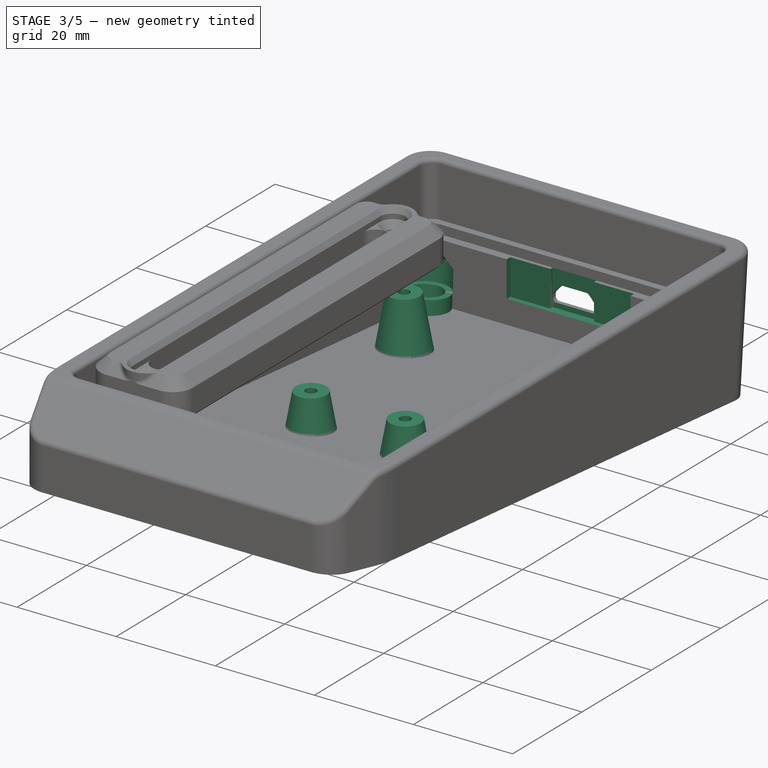
[diagram: stage 3 of 5 — iso view after this stage's code; geometry added in this stage tinted green]
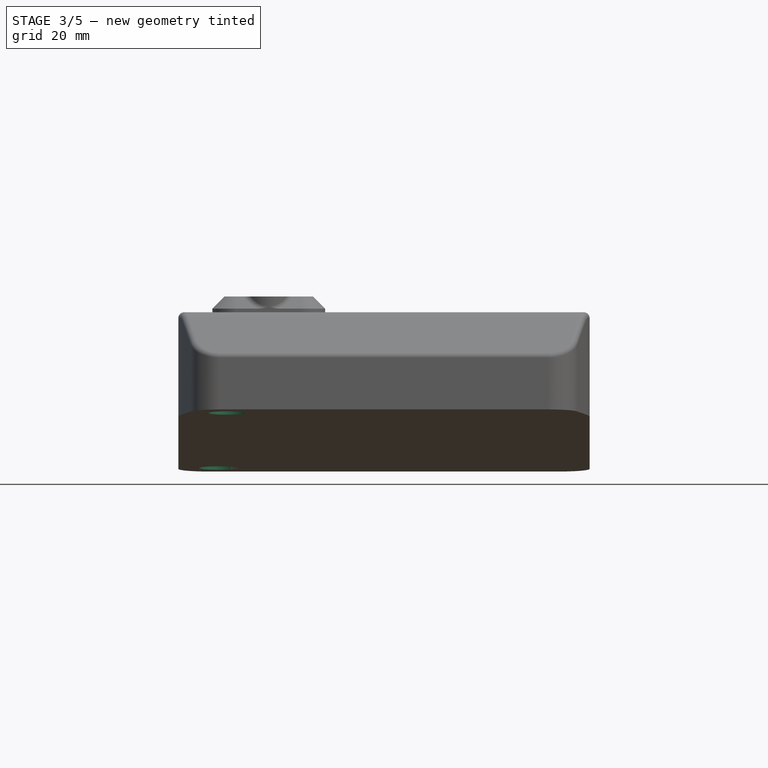
[diagram: stage 3 of 5 — front view after this stage's code; geometry added in this stage tinted green]
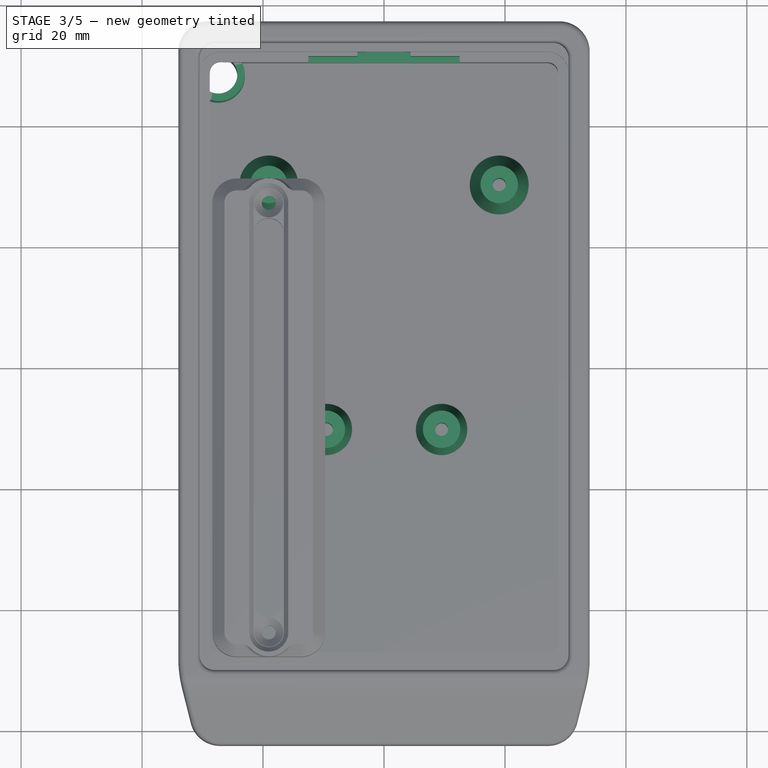
[diagram: stage 3 of 5 — top view after this stage's code; geometry added in this stage tinted green]
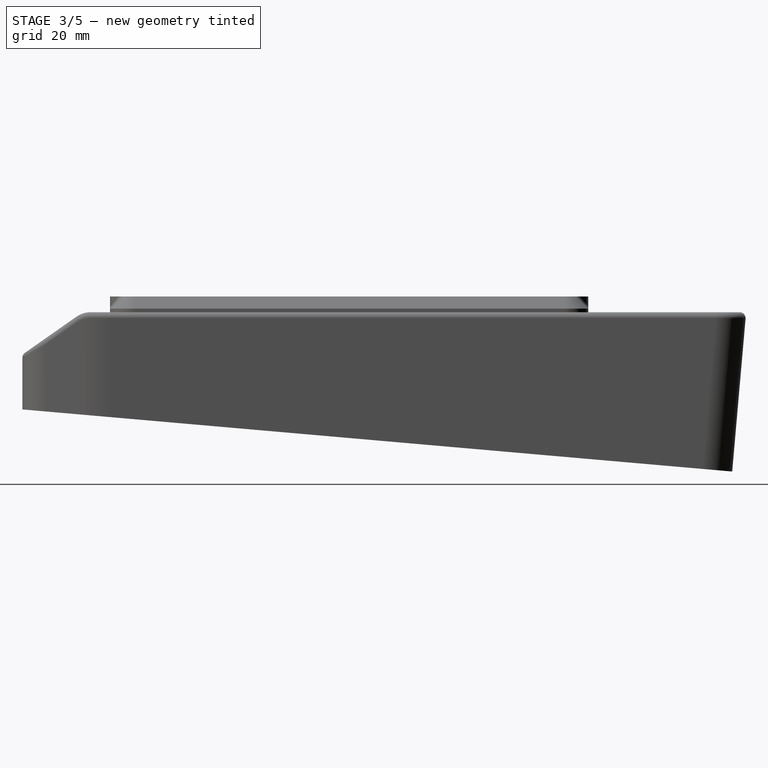
[diagram: stage 3 of 5 — right view after this stage's code; geometry added in this stage tinted green]
FEATURE [PartDesign::Body] Body005
  AutoGroupSolids = false
  ClaimAllChildren = false
  ExportMode = 0
  Group = -> [Import011,Import012,Sketch022,DatumPlane004,DatumPlane003,Pad013,Sketch023,Pad014,DatumPoint002,DatumPlane005,Sketch024,Groove001,Sketch026,Pocket013,Sketch027,DatumPlane007,DatumPlane006,Mirrored001,Fillet013,Pad019,Sketch028,Boolean001,Pad020,Fillet014,Sketch030,Pocket015,Mirrored002,Chamfer010,AdditivePipe,Sketch029,Reference001,Pocket014]
  Origin = -> Origin007
  Tip = -> Chamfer010
  TreeRank = 444
  _ExportChildren = -> [Import011,Import012,DatumPlane004,DatumPlane003,Pad013,Pad014,DatumPoint002,DatumPlane005,Groove001,Pocket013,Sketch027,DatumPlane007,DatumPlane006,Mirrored001,Fillet013,Pad019,Boolean001,Pad020,Fillet014,Pocket015,Mirrored002,Chamfer010,AdditivePipe,Reference001,Pocket014]
  _GroupVersion = 1
FEATURE [App::Part] Part  label="Case"
  ClaimAllChildren = false
  ExportMode = 1
  Group = -> [Body,Binder002,Binder001,Body001,Body002,Body003,Body004]
  Origin = -> Origin
  Placement = pos=(0,1.69954,0.996195) rot=(0,0,1;0rad)
  TreeRank = 417
  _ExportChildren = -> [Body,Binder002,Binder001,Body001,Body002,Body003,Body004]
  _GroupVersion = 1
FEATURE [PartDesign::Body] Body  label="PCB Ref + Master"
  AutoGroupSolids = false
  ClaimAllChildren = false
  ExportMode = 0
  Group = -> [Sketch,Sketch001,Binder,Pad,Export]
  Origin = -> Origin001
  Tip = -> Pad
  TreeRank = 14
  _ExportChildren = -> [Sketch,Binder,Pad]
  _GroupVersion = 1
FEATURE [Sketcher::SketchObject] Sketch  label="Master Sketch"
  ArcFitTolerance = 1e-06
  AttachmentSupport = -> [YZ_Plane]
  Exports = -> [Export]
  ExternalGeometry = -> [Pad]
  FullyConstrained = true
  MapMode = 5
  Placement = pos=(0,0,0) rot=(0.57735,0.57735,0.57735;2.0944rad)
  Support = -> [YZ_Plane]
  TreeRank = 15
  expr: Constraints[20] = Spreadsheet.floor_thk
  expr: Constraints[23] = Spreadsheet.Y_length
  expr: Constraints[35] = Spreadsheet.stopper_height
  expr: Constraints[36] = 0.4 * 2
  expr: Constraints[42] = 3 + 0.15
  expr: Constraints[49] = Spreadsheet.bezel_width
  sketch-geometry (19):
    g0: LineSegment StartX=37.0627 StartY=11 StartZ=0 EndX=-71.2998 EndY=11 EndZ=0
    g1: LineSegment StartX=-73.6837 StartY=10.2472 StartZ=0 EndX=-82.5889 EndY=4 EndZ=0
    g2: LineSegment StartX=-82.5889 StartY=4 StartZ=0 EndX=-82.5889 EndY=-5.07383 EndZ=0
    g3: LineSegment StartX=-82.5889 StartY=-5.07383 StartZ=0 EndX=34.7582 EndY=-15.3404 EndZ=0
    g4: LineSegment StartX=34.7582 StartY=-15.3404 StartZ=0 EndX=37.0627 EndY=11 EndZ=0
    g5: LineSegment StartX=-80.2976 StartY=-5.27429 StartZ=0 EndX=-79.5655 EndY=3.09374 EndZ=0
    g6: LineSegment StartX=-79.5655 StartY=3.09374 StartZ=0 EndX=-70.5998 EndY=2.30934 EndZ=0
    g7: LineSegment StartX=-70.5998 StartY=2.30934 StartZ=0 EndX=-71.3319 EndY=-6.05869 EndZ=0
    g8: LineSegment StartX=-75.8148 StartY=-5.66649 StartZ=0 EndX=-75.0827 EndY=2.70154 EndZ=0
    g9: LineSegment StartX=-68.3685 StartY=-1.6 StartZ=0 EndX=-68.3685 EndY=-5.11337 EndZ=0
    g10: LineSegment StartX=-68.3685 StartY=-5.11337 StartZ=0 EndX=31.9872 EndY=-13.8934 EndZ=0
    g11: LineSegment StartX=-69.7998 StartY=-1.6 StartZ=0 EndX=33.0627 EndY=-1.6 EndZ=0
    g12: GeomPoint [constr] X=-18.3685 Y=-1.6 Z=0
    g13: LineSegment StartX=-69.7998 StartY=-1.6 StartZ=0 EndX=-69.7998 EndY=11 EndZ=0
    g14: ArcOfCircle CenterX=-71.2998 CenterY=6.84893 CenterZ=0 NormalX=0 NormalY=0 NormalZ=1 AngleXU=0 Radius=4.15107 StartAngle=1.5708 EndAngle=2.18254
    g15: LineSegment StartX=33.0627 StartY=-1.6 StartZ=0 EndX=33.0627 EndY=11 EndZ=0
    g16: LineSegment StartX=-72.6768 StartY=-5.94103 StartZ=0 EndX=-72.3281 EndY=-1.95625 EndZ=0
    g17: LineSegment StartX=-72.3281 StartY=-1.95625 StartZ=0 EndX=-70.9833 EndY=-2.07391 EndZ=0
    g18: LineSegment StartX=33.0627 StartY=-1.6 StartZ=0 EndX=31.9872 EndY=-13.8934 EndZ=0
  constraints (56):
    c: Horizontal(g0)
    c: Coincident(g1,g2)
    c: Coincident(g2,g3)
    c: Coincident(g3,g4)
    c: Coincident(g4,g0)
    c: Angle(g3,g-1) = 0.0872665
    c: PointOnObject(g5,g3)
    c: Perpendicular(g5,g3)
    c: Coincident(g6,g5)
    c: Coincident(g7,g6)
    c: PointOnObject(g7,g3)
    c: Perpendicular(g7,g6)
    c: Perpendicular(g3,g7)
    c: Distance(g5,g7) = 9
    c: PointOnObject(g8,g3)
    c: Symmetric(g5,g6,g8)
    c: Perpendicular(g6,g8)
    c: Vertical(g9)
    c: Coincident(g9,g10)
    c: Parallel(g3,g10)
    c: Distance(g9,g3) = 1.2
    c: Horizontal(g11)
    c: Symmetric(g11,g11,g12)
    c: DistanceX(g11,g11) = 102.862
    c: Coincident(g13,g11)
    c: PointOnObject(g13,g0)
    c: Vertical(g13)
    c: Tangent(g0,g14) = -1.5708
    c: Tangent(g1,g14) = -1.5708
    c: Radius(g14) = 4.15107
    c: DistanceY(g-1,g0) = 11
    c: Coincident(g15,g11)
    c: PointOnObject(g15,g0)
    c: Vertical(g15)
    c: DistanceX(g0,g13) = 1.5
    c: Distance(g8) = 8.4
    c: DistanceX(g6,g13) = 0.8
    c: PointOnObject(g16,g3)
    c: Coincident(g16,g17)
    c: PointOnObject(g17,g7)
    c: Perpendicular(g16,g17)
    c: Perpendicular(g3,g16)
    c: Distance(g16,g8) = 3.15
    c: Distance(g16) = 4
    c: Distance(g0,g1) = 2.5
    c: Distance(g8,g2) = 6.8
    c: DistanceY(g1,g0) = 7
    c: Distance(g9,g10) = 3.5
    c: Perpendicular(g3,g4)
    c: DistanceX(g15,g0) = 4
    c: Vertical(g2)
    c: Coincident(g18,g11)
    c: Coincident(g18,g10)
    c: Perpendicular(g18,g10)
    c: Symmetric(g-3,g9,g12)
    c: Coincident(g9,g-4)
FEATURE [PartDesign::Body] Body002  label="Case Shell"
  AutoGroupSolids = false
  ClaimAllChildren = false
  ExportMode = 0
  Group = -> [DatumLine,DatumPoint,DatumPlane,DatumPlane001,DatumPlane002,Import002,Import003,Import004,Import005,Pad005,Sketch005,Pocket,Chamfer001,Fillet005,Fillet001,Fillet003,Fillet004,Pocket009,Pocket008,Sketch008,Pocket005,Sketch013,Pocket007,Pocket004,Draft,Draft001,Fillet006,Sketch009,Fillet007,Sketch012,Pad004,Draft002,Import008,Sketch014,Pocket010,Pad006,Pocket011,Sketch015,Groove,Chamfer004,Mirrored,+23 more]
  Origin = -> Origin003
  Tip = -> Boolean
  TreeRank = 60
  _ExportChildren = -> [DatumLine,DatumPoint,DatumPlane,DatumPlane001,DatumPlane002,Import002,Import003,Import005,Pad005,Pocket,Chamfer001,Fillet005,Fillet001,Fillet003,Fillet004,Pocket009,Pocket008,Pocket005,Pocket007,Pocket004,Draft,Draft001,Fillet006,Fillet007,Pad004,Draft002,Import008,Sketch014,Pocket010,Pad006,Pocket011,Groove,Chamfer004,Mirrored,Chamfer009,Fillet012,Pad007,Chamfer002,Fillet008,Fillet009,Draft003,+9 more]
  _GroupVersion = 1
FEATURE [Part::FeaturePython] Assembly  # WARN: FeaturePython — macro-defined, semantics opaque (R4)
  AutoRelax = true
  BuildShape = 0
  Freeze = false
  Group = -> [Constraints,Elements,Parts,Relations]
  TreeRank = 420
  Verbose = false
  _LinkVersion = 1
  _SolverType = 1
  _Version = 1
FEATURE [App::FeaturePython] Constraints  # WARN: FeaturePython — macro-defined, semantics opaque (R4)
  Group = -> [Constraint,Constraint001,Constraint002,Constraint003,Constraint004,Constraint005,Constraint006,Constraint007,Constraint008,Constraint009,Constraint010]
  TreeRank = 84
  _LinkVersion = 1
  _Version = 1
FEATURE [App::FeaturePython] Elements  # WARN: FeaturePython — macro-defined, semantics opaque (R4)
  Group = -> [_Element,_Element001,_Element002,_Element003,_Element004,_Element005,_Element006,_Element007,_Element008,_Element009,_Element010,_Element011,_Element012,_Element013,_Element014,_Element015,_Element016]
  TreeRank = 85
  _LinkVersion = 1
FEATURE [Part::FeaturePython] Parts  # WARN: FeaturePython — macro-defined, semantics opaque (R4)
  Group = -> [Part,Link,Link001,Group,Origin006]
  GroupMode = 0
  TreeRank = 86
  _LinkVersion = 1
FEATURE [PartDesign::Pocket] Pocket004  label="USB Thinning Pocket"
  BaseFeature = -> Pocket007
  ClaimChildren = false
  Fit = 0
  FitJoin = 0
  InnerFit = 0
  InnerFitJoin = 0
  InnerTaperAngle = 0
  InnerTaperAngleRev = 0
  Length = 0
  Length2 = 100
  Linearize = true
  NewSolid = false
  Offset = 0.8
  Profile = -> Sketch008
  Suppress = false
  TreeRank = 120
  Type = 3
  UpToFace = -> Pocket007 [Face79]
  _ProfileBasedVersion = 1
  expr: Offset = 0.4 * 2
FEATURE [PartDesign::Draft] Draft  label="USB Top-Bottom Draft"
  Angle = 45
  Base = -> Pocket004 [Face56,Face54]
  BaseFeature = -> Pocket004
  NeutralPlane = -> Pocket004 [Face76]
  NewSolid = false
  Reversed = true
  SupportTransform = false
  Suppress = false
  TreeRank = 121
FEATURE [PartDesign::Draft] Draft001  label="USB Sides Draft"
  Angle = 36
  Base = -> Draft [Face55,Face53]
  BaseFeature = -> Draft
  NeutralPlane = -> Draft [Face37]
  NewSolid = false
  Reversed = true
  SupportTransform = false
  Suppress = false
  TreeRank = 123
FEATURE [PartDesign::Fillet] Fillet006  label="USB inset fillet"
  Base = -> Draft001 [Edge159,Edge157,Edge160,Edge162]
  BaseFeature = -> Draft001
  NewSolid = false
  Radius = 2
  SupportTransform = false
  Suppress = false
  TreeRank = 124
FEATURE [PartDesign::Fillet] Fillet007  label="USB Port Fillet"
  Base = -> Fillet006 [Edge94,Edge91,Edge93,Edge100,Edge98,Edge96]
  BaseFeature = -> Fillet006
  NewSolid = false
  Radius = 0.8
  SupportTransform = false
  Suppress = false
  TreeRank = 127
FEATURE [PartDesign::Plane] DatumPlane001  label="Inside Floor"
  AttachmentOffset = pos=(0,0,1.2) rot=(0,0,1;0rad)
  AttachmentSupport = -> [DatumPlane]
  Length = 10
  MapMode = 5
  MinimumLength = 10
  MinimumWidth = 10
  Placement = pos=(6.66667,-43.3686,-7.30058) rot=(0,0.043619,0.999048;3.14159rad)
  ResizeMode = 0
  Support = -> [DatumPlane]
  TreeRank = 135
  Width = 42.5673
  expr: AttachmentOffset.Base.z = Spreadsheet.floor_thk
FEATURE [Sketcher::SketchObject] Sketch012  label="Screw Bosses Sketch"
  ArcFitTolerance = 1e-06
  AttachmentSupport = -> [Pocket007]
  ExternalGeometry = -> [Import003]
  FullyConstrained = true
  MapMode = 5
  Placement = pos=(0,0,-1.8) rot=(0,0,1;0rad)
  Support = -> [Pocket007]
  TreeRank = 136
  expr: Constraints[19] = Spreadsheet.screw_hole_dia_plastic
  sketch-geometry (10):
    g0: Circle CenterX=-9.525 CenterY=-30.2745 CenterZ=0 NormalX=0 NormalY=0 NormalZ=1 AngleXU=0 Radius=1.09
    g1: Circle CenterX=9.525 CenterY=-30.2745 CenterZ=0 NormalX=0 NormalY=0 NormalZ=1 AngleXU=0 Radius=1.09
    g2: Circle CenterX=19.05 CenterY=10.2067 CenterZ=0 NormalX=0 NormalY=0 NormalZ=1 AngleXU=0 Radius=1.09
    g3: Circle CenterX=-19.05 CenterY=10.2067 CenterZ=0 NormalX=0 NormalY=0 NormalZ=1 AngleXU=0 Radius=1.09
    g4: Circle CenterX=9.525 CenterY=-30.2745 CenterZ=0 NormalX=0 NormalY=0 NormalZ=1 AngleXU=0 Radius=3.09
    g5: Circle CenterX=-9.525 CenterY=-30.2745 CenterZ=0 NormalX=0 NormalY=0 NormalZ=1 AngleXU=0 Radius=3.09
    g6: Circle CenterX=-19.05 CenterY=10.2067 CenterZ=0 NormalX=0 NormalY=0 NormalZ=1 AngleXU=0 Radius=3.09
    g7: Circle CenterX=19.05 CenterY=10.2067 CenterZ=0 NormalX=0 NormalY=0 NormalZ=1 AngleXU=0 Radius=3.09
    g8: GeomPoint [constr] X=19.05 Y=9.11671 Z=0
    g9: GeomPoint [constr] X=19.05 Y=7.11671 Z=0
  constraints (20):
    c: Equal(g3,g2)
    c: Equal(g1,g0)
    c: Equal(g0,g3)
    c: Coincident(g-6,g3)
    c: Coincident(g2,g-5)
    c: Coincident(g1,g-4)
    c: Coincident(g0,g-3)
    c: Coincident(g4,g1)
    c: Coincident(g5,g0)
    c: Coincident(g6,g3)
    c: Coincident(g7,g2)
    c: Equal(g7,g6)
    c: Equal(g5,g4)
    c: Equal(g5,g6)
    c: PointOnObject(g8,g2)
    c: PointOnObject(g9,g7)
    c: Vertical(g8,g9)
    c: Vertical(g8,g2)
    c: DistanceY(g9,g8) = 2
    c: Diameter(g2) = 2.18
FEATURE [PartDesign::Pad] Pad004  label="Screw Bosses Pad"
  BaseFeature = -> Fillet007
  ClaimChildren = false
  Direction = (1,1,1)
  Fit = 0
  FitJoin = 0
  InnerFit = 0
  InnerFitJoin = 0
  InnerTaperAngle = 0
  InnerTaperAngleRev = 0
  Length = 10
  Length2 = 100
  Linearize = true
  NewSolid = false
  Profile = -> Sketch012
  Suppress = false
  TreeRank = 137
  Type = 3
  UpToFace = -> DatumPlane001
  _ProfileBasedVersion = 1
FEATURE [PartDesign::Draft] Draft002  label="Screw Boss Draft"
  Angle = 10
  Base = -> Pad004 [Face97,Face96,Face95,Face94]
  BaseFeature = -> Pad004
  NeutralPlane = -> Pad004 [Face102]
  NewSolid = false
  SupportTransform = false
  Suppress = false
  TreeRank = 138
FEATURE [Sketcher::SketchObject] Sketch013  label="MCU Relief Sketch"
  ArcFitTolerance = 1e-06
  AttachmentOffset = pos=(0,0,0) rot=(0,0,1;3.14159rad)
  AttachmentSupport = -> [Import002]
  ExternalGeometry = -> [Pocket008]
  FullyConstrained = true
  MapMode = 2
  Placement = pos=(0,0,0) rot=(0,0,1;3.14159rad)
  Support = -> [Import002]
  TreeRank = 139
  sketch-geometry (9):
    g0: LineSegment StartX=-4.4 StartY=-32.1315 StartZ=0 EndX=4.4 EndY=-32.1315 EndZ=0
    g1: LineSegment StartX=4.4 StartY=-32.1315 StartZ=0 EndX=4.4 EndY=-31.4315 EndZ=0
    g2: LineSegment StartX=-4.4 StartY=-31.4315 StartZ=0 EndX=-4.4 EndY=-32.1315 EndZ=0
    g3: LineSegment StartX=-12.5 StartY=-31.4315 StartZ=0 EndX=-4.4 EndY=-31.4315 EndZ=0
    g4: LineSegment StartX=12.5 StartY=-31.4315 StartZ=0 EndX=12.5 EndY=-30.4315 EndZ=0
    g5: LineSegment StartX=12.5 StartY=-30.4315 StartZ=0 EndX=-12.5 EndY=-30.4315 EndZ=0
    g6: LineSegment StartX=-12.5 StartY=-30.4315 StartZ=0 EndX=-12.5 EndY=-31.4315 EndZ=0
    g7: LineSegment StartX=4.4 StartY=-31.4315 StartZ=0 EndX=12.5 EndY=-31.4315 EndZ=0
    g8: GeomPoint [constr] X=0 Y=-30.4315 Z=0
  constraints (24):
    c: Coincident(g0,g1)
    c: Coincident(g2,g0)
    c: Horizontal(g0)
    c: Vertical(g1)
    c: Vertical(g2)
    c: Coincident(g7,g4)
    c: Coincident(g4,g5)
    c: Coincident(g5,g6)
    c: Coincident(g6,g3)
    c: Horizontal(g3)
    c: Horizontal(g5)
    c: Vertical(g4)
    c: Vertical(g6)
    c: Coincident(g3,g2)
    c: Coincident(g7,g1)
    c: Tangent(g3,g7)
    c: PointOnObject(g8,g-2)
    c: Symmetric(g4,g5,g8)
    c: DistanceX(g3,g4) = 25
    c: Equal(g3,g7)
    c: DistanceX(g0,g0) = 8.8
    c: DistanceY(g4,g4) = 1
    c: DistanceY(g0,g4) = 1.7
    c: PointOnObject(g5,g-3)
FEATURE [PartDesign::Pocket] Pocket007  label="MCU Relief Cut"
  BaseFeature = -> Pocket005
  ClaimChildren = false
  Fit = 0
  FitJoin = 0
  InnerFit = 0
  InnerFitJoin = 0
  InnerTaperAngle = 0
  InnerTaperAngleRev = 0
  Length = 0
  Length2 = 100
  Linearize = true
  NewSolid = false
  Offset = 1
  Profile = -> Sketch013
  Refine = true
  Suppress = false
  TreeRank = 140
  Type = 3
  UpToFace = -> Pocket005 [Face55]
  _ProfileBasedVersion = 1
FEATURE [Sketcher::SketchObject] Sketch014  label="Feet Locations Sketch"
  ArcFitTolerance = 1e-06
  AttachmentSupport = -> [DatumPlane]
  Exports = -> [Export001,Export002,Export003]
  ExternalGeometry = -> [Draft002,Import008]
  FullyConstrained = true
  MapMode = 5
  Placement = pos=(6.66667,-43.4732,-8.49601) rot=(0,0.043619,0.999048;3.14159rad)
  Support = -> [DatumPlane]
  TreeRank = 155
  expr: Constraints[5] = Spreadsheet.foot_large_dia
  expr: Constraints[7] = Spreadsheet.bttm_chamfer + 2 + 10
  sketch-geometry (8):
    g0: Circle CenterX=32.5586 CenterY=32.4651 CenterZ=0 NormalX=0 NormalY=0 NormalZ=1 AngleXU=0 Radius=4.4
    g1: Circle CenterX=32.5586 CenterY=32.4651 CenterZ=0 NormalX=0 NormalY=0 NormalZ=1 AngleXU=0 Radius=3.15
    g2: LineSegment [constr] StartX=6.66667 StartY=0 StartZ=0 EndX=6.66667 EndY=39.2651 EndZ=0
    g3: Circle [constr] CenterX=32.5586 CenterY=32.4651 CenterZ=0 NormalX=0 NormalY=0 NormalZ=1 AngleXU=0 Radius=6.6
    g4: LineSegment [constr] StartX=6.66667 StartY=32.4651 StartZ=0 EndX=32.5586 EndY=32.4651 EndZ=0
    g5: Circle CenterX=34.0667 CenterY=-71.9302 CenterZ=0 NormalX=0 NormalY=0 NormalZ=1 AngleXU=0 Radius=4.4
    g6: Circle CenterX=34.0667 CenterY=-71.9302 CenterZ=0 NormalX=0 NormalY=0 NormalZ=1 AngleXU=0 Radius=3.15
    g7: Circle [constr] CenterX=34.0667 CenterY=-71.9302 CenterZ=0 NormalX=0 NormalY=0 NormalZ=1 AngleXU=0 Radius=6.6
  constraints (21):
    c: Coincident(g1,g0)
    c: PointOnObject(g2,g-1)
    c: Vertical(g2)
    c: Symmetric(g-3,g-3,g2)
    c: Diameter(g1) = 6.3
    c: Diameter(g0) = 8.8
    c: Coincident(g3,g0)
    c: Diameter(g3) = 13.2
    c: Coincident(g4,g-4)
    c: Coincident(g4,g0)
    c: Horizontal(g4)
    c: Coincident(g6,g5)
    c: Equal(g1,g6) = 6.3
    c: Equal(g0,g5) = 8.8
    c: Coincident(g7,g5)
    c: Equal(g3,g7) = 10
    c: Tangent(g7,g-5)
    c: Tangent(g7,g-6)
    c: Tangent(g3,g-7)
    c: DistanceX(g-4,g0) = 25.8919  'foot offset from centerline FRONT'
    c: DistanceX(g2,g5) = 27.4  'foot offset from centerline BACK'
FEATURE [PartDesign::Plane] DatumPlane002  label="Feet Boss Top of Add"
  AttachmentOffset = pos=(0,0,4) rot=(0,0,1;0rad)
  AttachmentSupport = -> [DatumPlane]
  Length = 10
  MapMode = 5
  MinimumLength = 10
  MinimumWidth = 10
  Placement = pos=(6.66667,-43.1246,-4.51124) rot=(0,0.043619,0.999048;3.14159rad)
  ResizeMode = 0
  Support = -> [DatumPlane]
  TreeRank = 157
  Width = 42.5673
  expr: AttachmentOffset.Base.z = Spreadsheet.foot_height_c
FEATURE [Sketcher::SketchExport] Export001  label="Feet Boss Add"
  AttachmentSupport = -> [DatumPlane]
  Base = -> Sketch014
  BaseRefs = -> Sketch014 [edge7,edge6,edge2,edge1]
  MapMode = 5
  Placement = pos=(6.66667,-43.4732,-8.49601) rot=(0,0.043619,0.999048;3.14159rad)
  Refs = ;g11.edge7 | ;g10.edge6 | ;g2.edge2 | ;g1.edge1
  Support = -> [DatumPlane]
  SyncPlacement = true
  TreeRank = 158
FEATURE [Sketcher::SketchExport] Export002  label="Feet Boss Subtract"
  AttachmentSupport = -> [DatumPlane002]
  Base = -> Sketch014
  BaseRefs = -> Sketch014 [edge6,edge1]
  MapMode = 5
  Placement = pos=(6.66667,-43.1246,-4.51124) rot=(0,0.043619,0.999048;3.14159rad)
  Refs = ;g10.edge6 | ;g1.edge1
  Support = -> [DatumPlane002]
  SyncPlacement = true
  TreeRank = 159
FEATURE [Sketcher::SketchExport] Export003  label="Feet Boss Hole"
  Base = -> Sketch014
  BaseRefs = -> Sketch014 [edge7,edge2]
  Placement = pos=(6.66667,-43.4732,-8.49601) rot=(0,0.043619,0.999048;3.14159rad)
  Refs = ;g11.edge7 | ;g2.edge2
  SyncPlacement = true
  TreeRank = 160
FEATURE [PartDesign::Pocket] Pocket010  label="Feet Boss Hole Cut"
  BaseFeature = -> Draft002
  ClaimChildren = false
  Fit = 0
  FitJoin = 0
  InnerFit = 0
  InnerFitJoin = 0
  InnerTaperAngle = 0
  InnerTaperAngleRev = 0
  Length = 8.4
  Length2 = 100
  Linearize = true
  NewSolid = false
  Profile = -> Export003
  Reversed = true
  Suppress = false
  TreeRank = 161
  Type = 0
  _ProfileBasedVersion = 1
  expr: Length = Spreadsheet.stopper_height
FEATURE [PartDesign::Pocket] Pocket011  label="Foot Boss Height Trim"
  BaseFeature = -> Pad006
  ClaimChildren = false
  Fit = 0
  FitJoin = 0
  InnerFit = 0
  InnerFitJoin = 0
  InnerTaperAngle = 0
  InnerTaperAngleRev = 0
  Length = 4.4
  Length2 = 100
  Linearize = true
  NewSolid = false
  Profile = -> Export002
  Reversed = true
  Suppress = false
  TreeRank = 162
  Type = 0
  _ProfileBasedVersion = 1
  expr: Length = Spreadsheet.stopper_height - Spreadsheet.foot_height_c
FEATURE [PartDesign::Pad] Pad006  label="Feet Boss Pad"
  BaseFeature = -> Pocket010
  ClaimChildren = false
  Direction = (1,1,1)
  Fit = 0
  FitJoin = 0
  InnerFit = 0
  InnerFitJoin = 0
  InnerTaperAngle = 0
  InnerTaperAngleRev = 0
  Length = 8.4
  Length2 = 100
  Linearize = true
  NewSolid = false
  Profile = -> Export001
  Refine = true
  Suppress = false
  TreeRank = 163
  Type = 0
  _ProfileBasedVersion = 1
  expr: Length = Spreadsheet.stopper_height
FEATURE [PartDesign::Point] DatumPoint001
  AttacherType = Attacher::AttachEnginePoint
  AttachmentSupport = -> [Sketch014]
  MapMode = 36
  Placement = pos=(-27.4,28.1833,-14.7651) rot=(0,0.737277,0.67559;3.14159rad)
  Support = -> [Sketch014]
  TreeRank = 165
FEATURE [Sketcher::SketchObject] Sketch015
  ArcFitTolerance = 1e-06
  AttachmentOffset = pos=(0,0,-27.4) rot=(0,0,1;0rad)
  AttachmentSupport = -> [YZ_Plane002]
  ExternalGeometry = -> [DatumPoint001,Sketch014]
  FullyConstrained = true
  MapMode = 5
  Placement = pos=(-27.4,6.1e-15,-6.1e-15) rot=(0.57735,0.57735,0.57735;2.0944rad)
  Support = -> [YZ_Plane002]
  TreeRank = 167
  expr: AttachmentOffset.Base.z = -Sketch014.Constraints[<<foot offset from centerline BACK>>]
  expr: Constraints[11] = Spreadsheet.foot_height_c
  expr: Constraints[12] = Spreadsheet.stopper_height - Spreadsheet.foot_height_c
  expr: Constraints[13] = Spreadsheet.foot_large_dia / 2
  sketch-geometry (5):
    g0: LineSegment StartX=28.532 StartY=-10.7804 StartZ=0 EndX=29.2989 EndY=-2.01386 EndZ=0
    g1: LineSegment StartX=29.2989 StartY=-2.01386 StartZ=0 EndX=24.5322 EndY=-6.01363 EndZ=0
    g2: LineSegment StartX=24.5322 StartY=-6.01363 StartZ=0 EndX=24.1487 EndY=-10.3969 EndZ=0
    g3: LineSegment StartX=24.1487 StartY=-10.3969 StartZ=0 EndX=28.532 EndY=-10.7804 EndZ=0
    g4: LineSegment [constr] StartX=28.532 StartY=-10.7804 StartZ=0 EndX=28.1833 EndY=-14.7651 EndZ=0
  constraints (14):
    c: Coincident(g0,g1)
    c: Coincident(g1,g2)
    c: Coincident(g2,g3)
    c: Coincident(g0,g3)
    c: Coincident(g4,g0)
    c: Coincident(g4,g-3)
    c: Perpendicular(g4,g-4)
    c: Perpendicular(g4,g3)
    c: Perpendicular(g0,g3)
    c: Perpendicular(g3,g2)
    c: Angle(g2,g1) = 2.35619
    c: Distance(g4) = 4
    c: Distance(g2) = 4.4
    c: Distance(g3) = 4.4
FEATURE [PartDesign::Groove] Groove  label="Groove Cut Overhang Rear Foot"
  Angle = 360
  Axis = (8e-16,-0.348623,-3.98478)
  Base = (-27.4,28.532,-10.7804)
  BaseFeature = -> Pocket011
  ClaimChildren = false
  Fit = 0
  FitJoin = 0
  InnerFit = 0
  InnerFitJoin = 0
  NewSolid = false
  Profile = -> Sketch015
  ReferenceAxis = -> Sketch015 [Axis0]
  Suppress = false
  TreeRank = 168
  _ProfileBasedVersion = 1
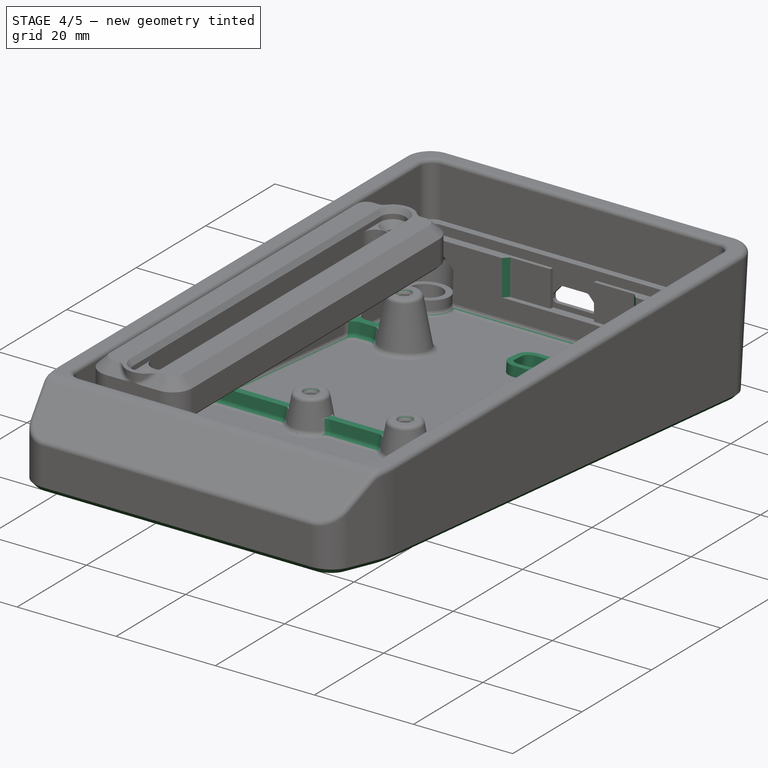
[diagram: stage 4 of 5 — iso view after this stage's code; geometry added in this stage tinted green]
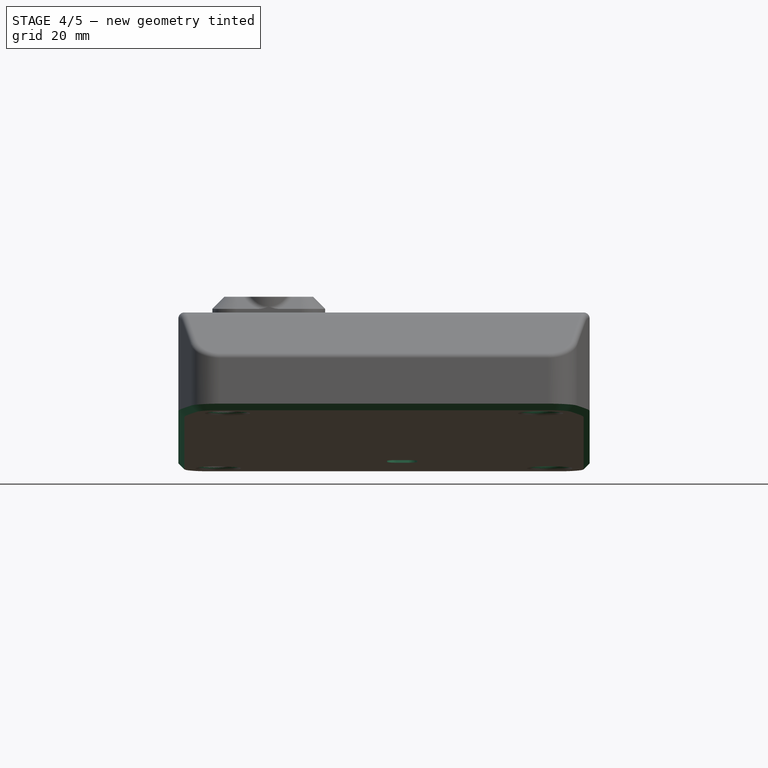
[diagram: stage 4 of 5 — front view after this stage's code; geometry added in this stage tinted green]
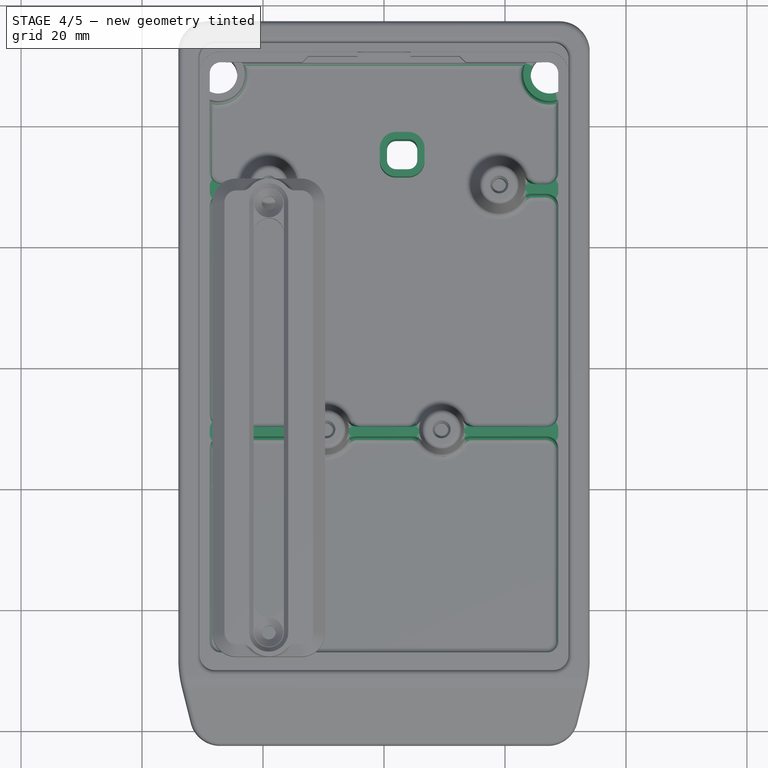
[diagram: stage 4 of 5 — top view after this stage's code; geometry added in this stage tinted green]
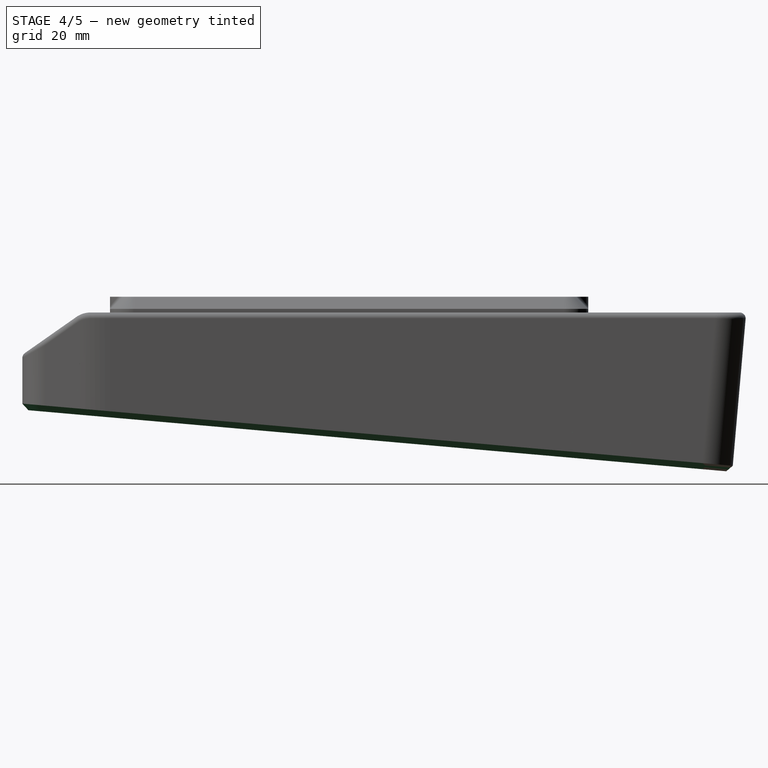
[diagram: stage 4 of 5 — right view after this stage's code; geometry added in this stage tinted green]
FEATURE [PartDesign::Chamfer] Chamfer002  label="Chamfer Bottom Edge"
  Angle = 45
  Base = -> Pad007 [Edge31]
  BaseFeature = -> Pad007
  ChamferType = 0
  FlipDirection = false
  NewSolid = false
  Size = 1
  Size2 = 1
  SupportTransform = false
  Suppress = false
  TreeRank = 153
FEATURE [PartDesign::Mirrored] Mirrored
  BaseFeature = -> Chamfer004
  CopyShape = false
  MirrorPlane = -> YZ_Plane002
  NewSolid = false
  OriginalSubs = -> [Pad006,Pocket011,Pocket010,Groove]
  Originals = -> [Pad006,Pocket011,Pocket010,Groove]
  ParallelTransform = true
  Refine = true
  SubTransform = true
  Suppress = false
  TreeRank = 164
FEATURE [Sketcher::SketchObject] Sketch016  label="Internal Ribs Sketch"
  ArcFitTolerance = 1e-06
  AttachmentSupport = -> [DatumPlane001]
  ExternalGeometry = -> [Mirrored]
  FullyConstrained = true
  MapMode = 5
  Placement = pos=(6.66667,-43.3686,-7.30058) rot=(0,0.043619,0.999048;3.14159rad)
  Support = -> [DatumPlane001]
  TreeRank = 169
  expr: Constraints[47] = 0.4 * 4
  sketch-geometry (20):
    g0: LineSegment StartX=28.7005 StartY=-52.092 StartZ=0 EndX=35.4667 EndY=-52.092 EndZ=0
    g1: LineSegment StartX=35.4667 StartY=-52.092 StartZ=0 EndX=35.4667 EndY=-53.692 EndZ=0
    g2: LineSegment StartX=35.4667 StartY=-53.692 StartZ=0 EndX=28.7005 EndY=-53.692 EndZ=0
    g3: LineSegment StartX=28.7005 StartY=-53.692 StartZ=0 EndX=28.7005 EndY=-52.092 EndZ=0
    g4: LineSegment StartX=-22.1333 StartY=-52.092 StartZ=0 EndX=-15.3672 EndY=-52.092 EndZ=0
    g5: LineSegment StartX=-15.3672 StartY=-52.092 StartZ=0 EndX=-15.3672 EndY=-53.692 EndZ=0
    g6: LineSegment StartX=-15.3672 StartY=-53.692 StartZ=0 EndX=-22.1333 EndY=-53.692 EndZ=0
    g7: LineSegment StartX=-22.1333 StartY=-53.692 StartZ=0 EndX=-22.1333 EndY=-52.092 EndZ=0
    g8: LineSegment StartX=-22.1333 StartY=-11.7648 StartZ=0 EndX=-5.84216 EndY=-11.7648 EndZ=0
    g9: LineSegment StartX=-5.84216 StartY=-11.7648 StartZ=0 EndX=-5.84216 EndY=-13.3648 EndZ=0
    g10: LineSegment StartX=-5.84216 StartY=-13.3648 StartZ=0 EndX=-22.1333 EndY=-13.3648 EndZ=0
    g11: LineSegment StartX=-22.1333 StartY=-13.3648 StartZ=0 EndX=-22.1333 EndY=-11.7648 EndZ=0
    g12: LineSegment StartX=19.1755 StartY=-11.7648 StartZ=0 EndX=35.4667 EndY=-11.7648 EndZ=0
    g13: LineSegment StartX=35.4667 StartY=-11.7648 StartZ=0 EndX=35.4667 EndY=-13.3648 EndZ=0
    g14: LineSegment StartX=35.4667 StartY=-13.3648 StartZ=0 EndX=19.1755 EndY=-13.3648 EndZ=0
    g15: LineSegment StartX=19.1755 StartY=-13.3648 StartZ=0 EndX=19.1755 EndY=-11.7648 EndZ=0
    g16: LineSegment StartX=0.12549 StartY=-11.7648 StartZ=0 EndX=13.2078 EndY=-11.7648 EndZ=0
    g17: LineSegment StartX=13.2078 StartY=-11.7648 StartZ=0 EndX=13.2078 EndY=-13.3648 EndZ=0
    g18: LineSegment StartX=13.2078 StartY=-13.3648 StartZ=0 EndX=0.12549 EndY=-13.3648 EndZ=0
    g19: LineSegment StartX=0.12549 StartY=-13.3648 StartZ=0 EndX=0.12549 EndY=-11.7648 EndZ=0
  constraints (60):
    c: Coincident(g0,g1)
    c: Coincident(g1,g2)
    c: Coincident(g2,g3)
    c: Coincident(g3,g0)
    c: Horizontal(g0)
    c: Horizontal(g2)
    c: Vertical(g1)
    c: Vertical(g3)
    c: Coincident(g4,g5)
    c: Coincident(g5,g6)
    c: Coincident(g6,g7)
    c: Coincident(g7,g4)
    c: Horizontal(g4)
    c: Horizontal(g6)
    c: Vertical(g5)
    c: Vertical(g7)
    c: Coincident(g8,g9)
    c: Coincident(g9,g10)
    c: Coincident(g10,g11)
    c: Coincident(g11,g8)
    c: Horizontal(g8)
    c: Horizontal(g10)
    c: Vertical(g9)
    c: Vertical(g11)
    c: Coincident(g12,g13)
    c: Coincident(g13,g14)
    c: Coincident(g14,g15)
    c: Coincident(g15,g12)
    c: Horizontal(g12)
    c: Horizontal(g14)
    c: Vertical(g13)
    c: Vertical(g15)
    c: Equal(g3,g5)
    c: Equal(g9,g15)
    c: Equal(g15,g3)
    c: Vertical(g13,g0)
    c: Vertical(g10,g4)
    c: Vertical(g-4,g6)
    c: Vertical(g1,g-3)
    c: PointOnObject(g12,g-6)
    c: PointOnObject(g14,g-6)
    c: PointOnObject(g9,g-5)
    c: PointOnObject(g8,g-5)
    c: PointOnObject(g5,g-8)
    c: PointOnObject(g4,g-8)
    c: PointOnObject(g2,g-7)
    c: PointOnObject(g0,g-7)
    c: DistanceY(g13,g13) = 1.6
    c: Coincident(g16,g17)
    c: Coincident(g17,g18)
    c: Coincident(g18,g19)
    c: Coincident(g19,g16)
    c: Horizontal(g16)
    c: Horizontal(g18)
    c: Vertical(g17)
    c: Vertical(g19)
    c: Horizontal(g12,g16)
    c: Horizontal(g17,g14)
    c: PointOnObject(g16,g-6)
    c: PointOnObject(g16,g-5)
FEATURE [PartDesign::Pad] Pad007  label="Internal Ribs Pad"
  BaseFeature = -> Fillet012
  ClaimChildren = false
  Direction = (1,1,1)
  Fit = 0
  FitJoin = 0
  InnerFit = 0
  InnerFitJoin = 0
  InnerTaperAngle = 0
  InnerTaperAngleRev = 0
  Length = 3
  Length2 = 100
  Linearize = true
  NewSolid = false
  Profile = -> Sketch016
  Refine = true
  Suppress = false
  TreeRank = 170
  Type = 0
  _ProfileBasedVersion = 1
FEATURE [PartDesign::Fillet] Fillet008  label="Rib-Ends Fillet"
  Base = -> Chamfer002 [Edge316,Edge318,Edge319,Edge321,Edge295,Edge293,Edge291,Edge289,Edge397,Edge395,Edge373,Edge368,Edge366,Edge361,Edge402,Edge405,Edge394,Edge391,Edge386,Edge388]
  BaseFeature = -> Chamfer002
  NewSolid = false
  Radius = 2
  SupportTransform = false
  Suppress = false
  TreeRank = 171
FEATURE [PartDesign::Fillet] Fillet009  label="Interior Floor Fillet"
  Base = -> Fillet008 [Face2,Face13]
  BaseFeature = -> Fillet008
  NewSolid = false
  Radius = 1
  SupportTransform = false
  Suppress = false
  TreeRank = 172
FEATURE [PartDesign::Draft] Draft003
  Angle = 45
  Base = -> Fillet009 [Face40,Face45]
  BaseFeature = -> Fillet009
  NeutralPlane = -> Fillet009 [Face39]
  NewSolid = false
  Reversed = true
  SupportTransform = false
  Suppress = false
  TreeRank = 178
FEATURE [App::FeaturePython] Relations  # WARN: FeaturePython — macro-defined, semantics opaque (R4)
  Constraints = -> Constraints
  Group = -> [Relation001,Relation002,Relation,Relation011,Relation007,Relation008,Relation009,Relation010]
  TreeRank = 216
  _LinkVersion = 1
FEATURE [App::FeaturePython] Relation  label="knob"  # WARN: FeaturePython — macro-defined, semantics opaque (R4)
  Count = 0
  Group = -> [Constraint009,Constraint010]
  Index = 0
  Part = -> Link001
  TreeRank = 217
  _LinkVersion = 1
FEATURE [App::FeaturePython] Relation007  label="Link002(Silicone Stopper Foot)"  # WARN: FeaturePython — macro-defined, semantics opaque (R4)
  Count = 0
  Group = -> [Constraint003]
  Index = 0
  Part = -> Link002
  TreeRank = 249
  _LinkVersion = 1
FEATURE [App::FeaturePython] Relation008  label="Link003(*Silicone Stopper Foot)"  # WARN: FeaturePython — macro-defined, semantics opaque (R4)
  Count = 0
  Group = -> [Constraint004]
  Index = 0
  Part = -> Link003
  TreeRank = 250
  _LinkVersion = 1
FEATURE [App::FeaturePython] Relation009  label="Link004(*Silicone Stopper Foot)"  # WARN: FeaturePython — macro-defined, semantics opaque (R4)
  Count = 0
  Group = -> [Constraint002]
  Index = 0
  Part = -> Link004
  TreeRank = 251
  _LinkVersion = 1
FEATURE [App::FeaturePython] Relation010  label="Link005(*Silicone Stopper Foot)"  # WARN: FeaturePython — macro-defined, semantics opaque (R4)
  Count = 0
  Group = -> [Constraint001]
  Index = 0
  Part = -> Link005
  TreeRank = 252
  _LinkVersion = 1
FEATURE [Sketcher::SketchObject] Sketch017  label="Reset Hole Wall-Boss"
  ArcFitTolerance = 1e-06
  AttachmentSupport = -> [DatumPlane001]
  Exports = -> [Export004]
  ExternalGeometry = -> [Import003]
  FullyConstrained = true
  MapMode = 5
  Placement = pos=(6.66667,-43.3686,-7.30058) rot=(0,0.043619,0.999048;3.14159rad)
  Support = -> [DatumPlane001]
  TreeRank = 260
  sketch-geometry (19):
    g0: LineSegment StartX=4.66667 StartY=-56.278 StartZ=0 EndX=2.66667 EndY=-56.278 EndZ=0
    g1: LineSegment StartX=1.16667 StartY=-57.778 StartZ=0 EndX=1.16667 EndY=-59.778 EndZ=0
    g2: LineSegment StartX=2.66667 StartY=-61.278 StartZ=0 EndX=4.66667 EndY=-61.278 EndZ=0
    g3: LineSegment StartX=6.16667 StartY=-59.778 StartZ=0 EndX=6.16667 EndY=-57.778 EndZ=0
    g4: ArcOfCircle CenterX=4.66667 CenterY=-57.778 CenterZ=0 NormalX=0 NormalY=0 NormalZ=1 AngleXU=0 Radius=1.5 StartAngle=-1.8e-15 EndAngle=1.5708
    g5: ArcOfCircle CenterX=2.66667 CenterY=-57.778 CenterZ=0 NormalX=0 NormalY=0 NormalZ=1 AngleXU=0 Radius=1.5 StartAngle=1.5708 EndAngle=3.14159
    g6: ArcOfCircle CenterX=2.66667 CenterY=-59.778 CenterZ=0 NormalX=0 NormalY=0 NormalZ=1 AngleXU=0 Radius=1.5 StartAngle=3.14159 EndAngle=4.71239
    g7: ArcOfCircle CenterX=4.66667 CenterY=-59.778 CenterZ=0 NormalX=0 NormalY=0 NormalZ=1 AngleXU=0 Radius=1.5 StartAngle=4.71239 EndAngle=6.28319
    g8: LineSegment [constr] StartX=3.66667 StartY=-56.278 StartZ=0 EndX=3.66667 EndY=-61.278 EndZ=0
    g9: LineSegment [constr] StartX=1.16667 StartY=-58.778 StartZ=0 EndX=6.16667 EndY=-58.778 EndZ=0
    g10: GeomPoint [constr] X=3.66667 Y=-58.778 Z=0
    g11: LineSegment StartX=2.66667 StartY=-55.078 StartZ=0 EndX=4.66667 EndY=-55.078 EndZ=0
    g12: LineSegment StartX=7.36667 StartY=-57.778 StartZ=0 EndX=7.36667 EndY=-59.778 EndZ=0
    g13: LineSegment StartX=4.66667 StartY=-62.478 StartZ=0 EndX=2.66667 EndY=-62.478 EndZ=0
    g14: LineSegment StartX=-0.0333333 StartY=-59.778 StartZ=0 EndX=-0.0333333 EndY=-57.778 EndZ=0
    g15: ArcOfCircle CenterX=2.66667 CenterY=-57.778 CenterZ=0 NormalX=0 NormalY=0 NormalZ=1 AngleXU=0 Radius=2.7 StartAngle=1.5708 EndAngle=3.14159
    g16: ArcOfCircle CenterX=2.66667 CenterY=-59.778 CenterZ=0 NormalX=0 NormalY=0 NormalZ=1 AngleXU=0 Radius=2.7 StartAngle=3.14159 EndAngle=4.71239
    g17: ArcOfCircle CenterX=4.66667 CenterY=-59.778 CenterZ=0 NormalX=0 NormalY=0 NormalZ=1 AngleXU=0 Radius=2.7 StartAngle=4.71239 EndAngle=6.28319
    g18: ArcOfCircle CenterX=4.66667 CenterY=-57.778 CenterZ=0 NormalX=0 NormalY=0 NormalZ=1 AngleXU=0 Radius=2.7 StartAngle=-1.8e-15 EndAngle=1.5708
  constraints (44):
    c: Horizontal(g0)
    c: Horizontal(g2)
    c: Vertical(g1)
    c: Vertical(g3)
    c: Tangent(g0,g4) = -1.5708
    c: Tangent(g3,g4) = -1.5708
    c: Tangent(g0,g5) = -1.5708
    c: Tangent(g1,g5) = -1.5708
    c: Tangent(g1,g6) = -1.5708
    c: Tangent(g2,g6) = -1.5708
    c: Tangent(g2,g7) = -1.5708
    c: Tangent(g3,g7) = -1.5708
    c: Equal(g7,g4)
    c: Equal(g4,g5)
    c: Equal(g6,g5)
    c: Equal(g3,g0)
    c: DistanceX(g1,g3) = 5
    c: PointOnObject(g8,g2)
    c: Vertical(g8)
    c: PointOnObject(g9,g3)
    c: Horizontal(g9)
    c: Symmetric(g1,g1,g9)
    c: Symmetric(g0,g0,g8)
    c: PointOnObject(g10,g9)
    c: PointOnObject(g10,g8)
    c: DistanceX(g-4,g10) = 27
    c: DistanceY(g-3,g10) = 15.3
    c: Radius(g4) = 1.5
    c: Horizontal(g11)
    c: Horizontal(g13)
    c: Vertical(g12)
    c: Tangent(g11,g15) = 1.5708
    c: Tangent(g14,g15) = 1.5708
    c: Tangent(g13,g16) = 1.5708
    c: Tangent(g14,g16) = 1.5708
    c: Tangent(g12,g17) = 1.5708
    c: Tangent(g13,g17) = 1.5708
    c: Tangent(g11,g18) = 1.5708
    c: Tangent(g12,g18) = 1.5708
    c: Coincident(g15,g5)
    c: Coincident(g4,g18)
    c: Coincident(g17,g7)
    c: Coincident(g6,g16)
    c: DistanceX(g3,g12) = 1.2
FEATURE [PartDesign::Pocket] Pocket012  label="Reset Hole Thru"
  BaseFeature = -> Chamfer003
  ClaimChildren = false
  Fit = 0
  FitJoin = 0
  InnerFit = 0
  InnerFitJoin = 0
  InnerTaperAngle = 0
  InnerTaperAngleRev = 0
  Length = 5
  Length2 = 100
  Linearize = true
  NewSolid = false
  Profile = -> Export004
  Suppress = false
  TreeRank = 261
  Type = 1
  _ProfileBasedVersion = 1
FEATURE [PartDesign::Fillet] Fillet010
  Base = -> Draft003 [Edge137,Edge241,Edge420,Edge411]
  BaseFeature = -> Draft003
  NewSolid = false
  Radius = 0.8
  SupportTransform = false
  Suppress = false
  TreeRank = 264
FEATURE [PartDesign::Chamfer] Chamfer003
  Angle = 45
  Base = -> Fillet010 [Edge28,Edge463,Edge467,Edge466]
  BaseFeature = -> Fillet010
  ChamferType = 1
  FlipDirection = false
  NewSolid = false
  Size = 0.4
  Size2 = 0.8
  SupportTransform = false
  Suppress = false
  TreeRank = 265
FEATURE [App::FeaturePython] Relation001  label="Case"  # WARN: FeaturePython — macro-defined, semantics opaque (R4)
  Count = 0
  Group = -> [Constraint,Constraint001,Constraint002,Constraint003,Constraint004,Constraint005,Constraint006,Constraint007]
  Index = 0
  Part = -> Part
  TreeRank = 268
  _LinkVersion = 1
FEATURE [App::FeaturePython] Relation002  label="keeby cat board"  # WARN: FeaturePython — macro-defined, semantics opaque (R4)
  Count = 0
  Group = -> [Constraint008,Constraint009,Constraint010]
  Index = 0
  Part = -> Link
  TreeRank = 269
  _LinkVersion = 1
FEATURE [PartDesign::Chamfer] Chamfer004  label="Chamfer Inside Front Foot"
  Angle = 45
  Base = -> Groove [Edge281]
  BaseFeature = -> Groove
  ChamferType = 0
  FlipDirection = false
  NewSolid = false
  Size = 1
  Size2 = 1
  SupportTransform = false
  Suppress = false
  TreeRank = 270
FEATURE [Sketcher::SketchExport] Export004  label="Inner Thru Hole"
  Base = -> Sketch017
  BaseRefs = -> Sketch017 [edge8,edge3,edge7,edge2,edge6,edge1,edge5,edge4]
  Placement = pos=(6.66667,-43.3686,-7.30058) rot=(0,0.043619,0.999048;3.14159rad)
  Refs = ;g8.edge8 | ;g3.edge3 | ;g7.edge7 | ;g2.edge2 | ;g6.edge6 | ;g1.edge1 | ;g5.edge5 | ;g4.edge4
  SyncPlacement = true
  TreeRank = 271
FEATURE [PartDesign::Pad] Pad008  label="Pad Button Wall"
  BaseFeature = -> Pocket012
  ClaimChildren = false
  Direction = (1,1,1)
  Fit = 0
  FitJoin = 0
  InnerFit = 0
  InnerFitJoin = 0
  InnerTaperAngle = 0
  InnerTaperAngleRev = 0
  Length = 2
  Length2 = 100
  Linearize = true
  NewSolid = false
  Profile = -> Sketch017
  Suppress = false
  TreeRank = 272
  Type = 0
  _ProfileBasedVersion = 1
FEATURE [PartDesign::Chamfer] Chamfer009  label="Foot Install Chamfer"
  Angle = 45
  Base = -> Mirrored [Edge305,Edge213,Edge306,Edge304]
  BaseFeature = -> Mirrored
  ChamferType = 0
  FlipDirection = false
  NewSolid = false
  Size = 0.6
  Size2 = 1
  SupportTransform = false
  Suppress = false
  TreeRank = 339
FEATURE [PartDesign::Fillet] Fillet012  label="Foot Install Fillet"
  Base = -> Chamfer009 [Edge2,Edge74,Edge34,Edge72]
  BaseFeature = -> Chamfer009
  NewSolid = false
  Radius = 1.2
  SupportTransform = false
  Suppress = false
  TreeRank = 340
  expr: Radius = <<Foot Install Chamfer>>.Size * 2
FEATURE [App::FeaturePython] Constraint  label="Locked"  # WARN: FeaturePython — macro-defined, semantics opaque (R4)
  Disabled = false
  Group = -> [ElementLink]
  TreeRank = 341
  _ConstraintType = 0
  _LinkVersion = 1
  _Parent = -> Constraints
FEATURE [App::FeaturePython] ElementLink  label="_Element"  # link proxy (typed FeaturePython)
  LinkTransform = true
  LinkedObject = -> _Element
  TreeRank = 342
  _LinkVersion = 1
  _Parent = -> Constraint
FEATURE [Part::FeaturePython] _Element  # link proxy (typed FeaturePython)
  Detach = false
  LinkTransform = true
  LinkedObject = -> Part [Body002.Boolean.Face10]
  TreeRank = 343
  _LinkVersion = 1
  _Parent = -> Elements
FEATURE [App::FeaturePython] Constraint001  label="PlaneCoincident001"  # WARN: FeaturePython — macro-defined, semantics opaque (R4)
  Angle = 0
  AnglePitch = 0
  AngleRoll = 0
  Cascade = false
  Disabled = false
  Group = -> [ElementLink001,ElementLink002]
  LockAngle = false
  Multiply = false
  OffsetX = 0
  OffsetY = 0
  TreeRank = 344
  _ConstraintType = 35
  _LinkVersion = 1
  _Parent = -> Constraints
FEATURE [App::FeaturePython] ElementLink001  label="_Element001"  # link proxy (typed FeaturePython)
  LinkTransform = true
  LinkedObject = -> _Element001
  TreeRank = 345
  _LinkVersion = 1
  _Parent = -> Constraint001
FEATURE [Part::FeaturePython] _Element001  # link proxy (typed FeaturePython)
  Detach = false
  LinkTransform = true
  LinkedObject = -> Link005 [Fillet.Edge7]
  TreeRank = 346
  _LinkVersion = 1
  _Parent = -> Elements
FEATURE [App::FeaturePython] ElementLink002  label="_Element002"  # link proxy (typed FeaturePython)
  LinkTransform = true
  LinkedObject = -> _Element002
  TreeRank = 347
  _LinkVersion = 1
  _Parent = -> Constraint001
FEATURE [Part::FeaturePython] _Element002  # link proxy (typed FeaturePython)
  Detach = false
  LinkTransform = true
  LinkedObject = -> Part [Body002.Boolean.Edge38]
  TreeRank = 348
  _LinkVersion = 1
  _Parent = -> Elements
FEATURE [App::FeaturePython] Constraint002  label="PlaneCoincident"  # WARN: FeaturePython — macro-defined, semantics opaque (R4)
  Angle = 0
  AnglePitch = 0
  AngleRoll = 0
  Cascade = false
  Disabled = false
  Group = -> [ElementLink003,ElementLink004]
  LockAngle = false
  Multiply = false
  OffsetX = 0
  OffsetY = 0
  TreeRank = 349
  _ConstraintType = 35
  _LinkVersion = 1
  _Parent = -> Constraints
FEATURE [App::FeaturePython] ElementLink003  label="_Element003"  # link proxy (typed FeaturePython)
  LinkTransform = true
  LinkedObject = -> _Element003
  TreeRank = 350
  _LinkVersion = 1
  _Parent = -> Constraint002
FEATURE [Part::FeaturePython] _Element003  # link proxy (typed FeaturePython)
  Detach = false
  LinkTransform = true
  LinkedObject = -> Link004 [Fillet.Edge7]
  TreeRank = 351
  _LinkVersion = 1
  _Parent = -> Elements
FEATURE [App::FeaturePython] ElementLink004  label="_Element004"  # link proxy (typed FeaturePython)
  LinkTransform = true
  LinkedObject = -> _Element004
  TreeRank = 352
  _LinkVersion = 1
  _Parent = -> Constraint002
FEATURE [Part::FeaturePython] _Element004  # link proxy (typed FeaturePython)
  Detach = false
  LinkTransform = true
  LinkedObject = -> Part [Body002.Boolean.Edge100]
  TreeRank = 353
  _LinkVersion = 1
  _Parent = -> Elements
FEATURE [App::FeaturePython] Constraint003  label="PlaneCoincident002"  # WARN: FeaturePython — macro-defined, semantics opaque (R4)
  Angle = 0
  AnglePitch = 0
  AngleRoll = 0
  Cascade = false
  Disabled = false
  Group = -> [ElementLink005,ElementLink006]
  LockAngle = false
  Multiply = false
  OffsetX = 0
  OffsetY = 0
  TreeRank = 354
  _ConstraintType = 35
  _LinkVersion = 1
  _Parent = -> Constraints
FEATURE [App::FeaturePython] ElementLink005  label="_Element005"  # link proxy (typed FeaturePython)
  LinkTransform = true
  LinkedObject = -> _Element005
  TreeRank = 355
  _LinkVersion = 1
  _Parent = -> Constraint003
FEATURE [Part::FeaturePython] _Element005  # link proxy (typed FeaturePython)
  Detach = false
  LinkTransform = true
  LinkedObject = -> Link002 [Fillet.Edge7]
  TreeRank = 356
  _LinkVersion = 1
  _Parent = -> Elements
FEATURE [App::FeaturePython] ElementLink006  label="_Element006"  # link proxy (typed FeaturePython)
  LinkTransform = true
  LinkedObject = -> _Element006
  TreeRank = 357
  _LinkVersion = 1
  _Parent = -> Constraint003
FEATURE [Part::FeaturePython] _Element006  # link proxy (typed FeaturePython)
  Detach = false
  LinkTransform = true
  LinkedObject = -> Part [Body002.Boolean.Edge101]
  TreeRank = 358
  _LinkVersion = 1
  _Parent = -> Elements
FEATURE [App::FeaturePython] Constraint004  label="PlaneCoincident003"  # WARN: FeaturePython — macro-defined, semantics opaque (R4)
  Angle = 0
  AnglePitch = 0
  AngleRoll = 0
  Cascade = false
  Disabled = false
  Group = -> [ElementLink007,ElementLink008]
  LockAngle = false
  Multiply = false
  OffsetX = 0
  OffsetY = 0
  TreeRank = 359
  _ConstraintType = 35
  _LinkVersion = 1
  _Parent = -> Constraints
FEATURE [App::FeaturePython] ElementLink007  label="_Element007"  # link proxy (typed FeaturePython)
  LinkTransform = true
  LinkedObject = -> _Element007
  TreeRank = 360
  _LinkVersion = 1
  _Parent = -> Constraint004
FEATURE [Part::FeaturePython] _Element007  # link proxy (typed FeaturePython)
  Detach = false
  LinkTransform = true
  LinkedObject = -> Link003 [Fillet.Edge7]
  TreeRank = 361
  _LinkVersion = 1
  _Parent = -> Elements
FEATURE [App::FeaturePython] ElementLink008  label="_Element008"  # link proxy (typed FeaturePython)
  LinkTransform = true
  LinkedObject = -> _Element008
  TreeRank = 362
  _LinkVersion = 1
  _Parent = -> Constraint004
FEATURE [Part::FeaturePython] _Element008  # link proxy (typed FeaturePython)
  Detach = false
  LinkTransform = true
  LinkedObject = -> Part [Body002.Boolean.Edge94]
  TreeRank = 363
  _LinkVersion = 1
  _Parent = -> Elements
FEATURE [App::FeaturePython] Constraint005  label="Locked001"  # WARN: FeaturePython — macro-defined, semantics opaque (R4)
  Disabled = false
  Group = -> [ElementLink009]
  TreeRank = 364
  _ConstraintType = 0
  _LinkVersion = 1
  _Parent = -> Constraints
FEATURE [App::FeaturePython] ElementLink009  label="_Element009"  # link proxy (typed FeaturePython)
  LinkTransform = true
  LinkedObject = -> _Element009
  TreeRank = 365
  _LinkVersion = 1
  _Parent = -> Constraint005
FEATURE [Part::FeaturePython] _Element009  # link proxy (typed FeaturePython)
  Detach = false
  LinkTransform = true
  LinkedObject = -> Part [Body004.Pad012.Face146]
  TreeRank = 366
  _LinkVersion = 1
  _Parent = -> Elements
FEATURE [App::FeaturePython] Constraint006  label="Locked002"  # WARN: FeaturePython — macro-defined, semantics opaque (R4)
  Disabled = false
  Group = -> [ElementLink010]
  TreeRank = 367
  _ConstraintType = 0
  _LinkVersion = 1
  _Parent = -> Constraints
FEATURE [App::FeaturePython] ElementLink010  label="_Element010"  # link proxy (typed FeaturePython)
  LinkTransform = true
  LinkedObject = -> _Element010
  TreeRank = 368
  _LinkVersion = 1
  _Parent = -> Constraint006
FEATURE [Part::FeaturePython] _Element010  # link proxy (typed FeaturePython)
  Detach = false
  LinkTransform = true
  LinkedObject = -> Part [Body004.Pad012.Face140]
  TreeRank = 369
  _LinkVersion = 1
  _Parent = -> Elements
FEATURE [App::FeaturePython] Constraint007  label="Locked003"  # WARN: FeaturePython — macro-defined, semantics opaque (R4)
  Disabled = false
  Group = -> [ElementLink011]
  TreeRank = 370
  _ConstraintType = 0
  _LinkVersion = 1
  _Parent = -> Constraints
FEATURE [App::FeaturePython] ElementLink011  label="_Element011"  # link proxy (typed FeaturePython)
  LinkTransform = true
  LinkedObject = -> _Element011
  TreeRank = 371
  _LinkVersion = 1
  _Parent = -> Constraint007
FEATURE [Part::FeaturePython] _Element011  # link proxy (typed FeaturePython)
  Detach = false
  LinkTransform = true
  LinkedObject = -> Part [Body004.Pad012.Face134]
  TreeRank = 372
  _LinkVersion = 1
  _Parent = -> Elements
FEATURE [App::FeaturePython] Constraint008  label="Locked004"  # WARN: FeaturePython — macro-defined, semantics opaque (R4)
  Disabled = false
  Group = -> [ElementLink012]
  TreeRank = 375
  _ConstraintType = 0
  _LinkVersion = 1
  _Parent = -> Constraints
FEATURE [App::FeaturePython] ElementLink012  label="Local_CS_61fa@Board_Geoms_61fa@"  # link proxy (typed FeaturePython)
  LinkTransform = true
  LinkedObject = -> _Element012
  TreeRank = 376
  _LinkVersion = 1
  _Parent = -> Constraint008
FEATURE [Part::FeaturePython] _Element012  label="Local_CS_61fa@Board_Geoms_61fa@"  # link proxy (typed FeaturePython)
  Detach = false
  LinkTransform = true
  LinkedObject = -> Link [Board_Geoms_61fa.Local_CS_61fa.]
  TreeRank = 377
  _LinkVersion = 1
  _Parent = -> Elements
FEATURE [App::FeaturePython] Constraint009  label="PointInPlane"  # WARN: FeaturePython — macro-defined, semantics opaque (R4)
  Disabled = false
  Group = -> [ElementLink013,ElementLink014]
  TreeRank = 378
  _ConstraintType = 3
  _LinkVersion = 1
  _Parent = -> Constraints
FEATURE [App::FeaturePython] ElementLink013  label="_Element013"  # link proxy (typed FeaturePython)
  LinkTransform = true
  LinkedObject = -> _Element013
  TreeRank = 379
  _LinkVersion = 1
  _Parent = -> Constraint009
FEATURE [Part::FeaturePython] _Element013  # link proxy (typed FeaturePython)
  Detach = false
  LinkTransform = true
  LinkedObject = -> Link [Step_Models_61fa.Top_61fa.EN4_PEC11_4220F_S0024_05183b338953_ln_005.Vertex675]
  TreeRank = 380
  _LinkVersion = 1
  _Parent = -> Elements
FEATURE [App::FeaturePython] ElementLink014  label="_Element014"  # link proxy (typed FeaturePython)
  LinkTransform = true
  LinkedObject = -> _Element014
  TreeRank = 381
  _LinkVersion = 1
  _Parent = -> Constraint009
FEATURE [Part::FeaturePython] _Element014  # link proxy (typed FeaturePython)
  Detach = false
  LinkTransform = true
  LinkedObject = -> Link001 [Chamfer001.Face116]
  TreeRank = 382
  _LinkVersion = 1
  _Parent = -> Elements
FEATURE [App::FeaturePython] Constraint010  label="AxialAlignment"  # WARN: FeaturePython — macro-defined, semantics opaque (R4)
  Angle = 0
  AnglePitch = 0
  AngleRoll = 0
  Disabled = false
  Group = -> [ElementLink015,ElementLink016]
  LockAngle = false
  Multiply = false
  TreeRank = 383
  _ConstraintType = 36
  _LinkVersion = 1
  _Parent = -> Constraints
FEATURE [App::FeaturePython] ElementLink015  label="_Element015"  # link proxy (typed FeaturePython)
  LinkTransform = true
  LinkedObject = -> _Element015
  TreeRank = 384
  _LinkVersion = 1
  _Parent = -> Constraint010
FEATURE [Part::FeaturePython] _Element015  # link proxy (typed FeaturePython)
  Detach = false
  LinkTransform = true
  LinkedObject = -> Link [Step_Models_61fa.Top_61fa.EN4_PEC11_4220F_S0024_05183b338953_ln_005.Face329]
  TreeRank = 385
  _LinkVersion = 1
  _Parent = -> Elements
FEATURE [App::FeaturePython] ElementLink016  label="_Element016"  # link proxy (typed FeaturePython)
  LinkTransform = true
  LinkedObject = -> _Element016
  TreeRank = 386
  _LinkVersion = 1
  _Parent = -> Constraint010
FEATURE [Part::FeaturePython] _Element016  # link proxy (typed FeaturePython)
  Detach = false
  LinkTransform = true
  LinkedObject = -> Link001 [Chamfer001.Face96]
  TreeRank = 387
  _LinkVersion = 1
  _Parent = -> Elements
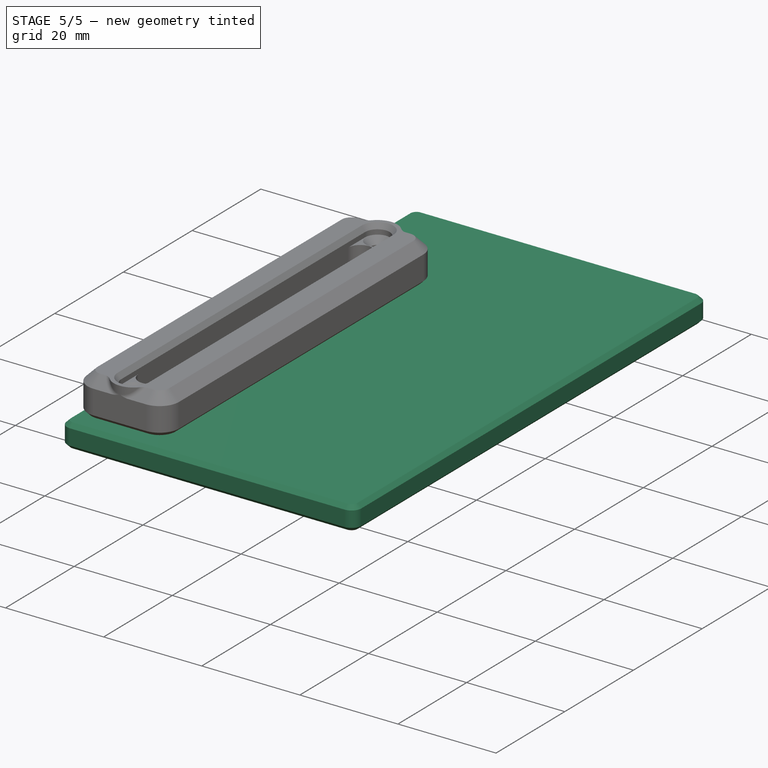
[diagram: stage 5 of 5 — iso view after this stage's code; geometry added in this stage tinted green]
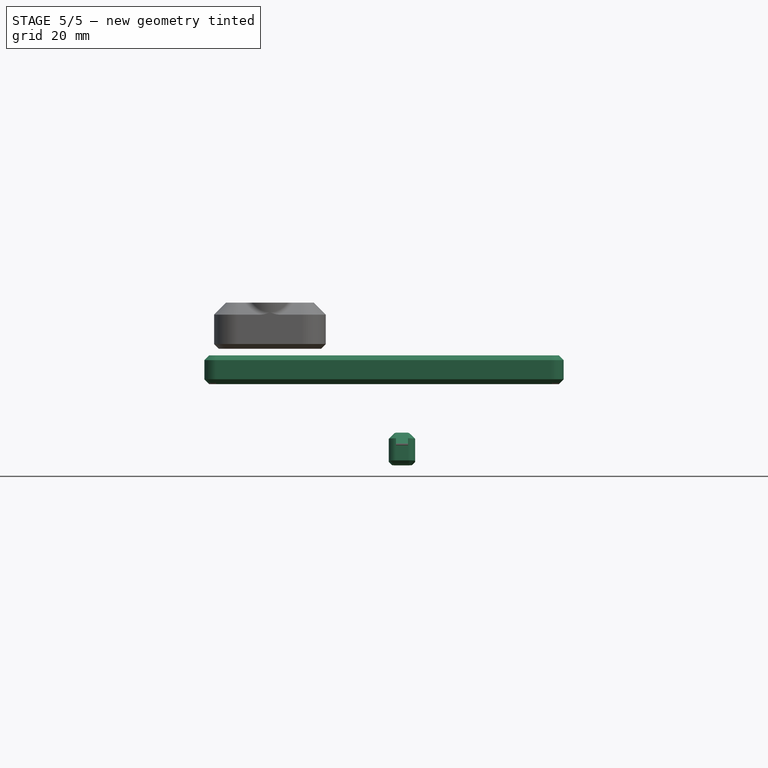
[diagram: stage 5 of 5 — front view after this stage's code; geometry added in this stage tinted green]
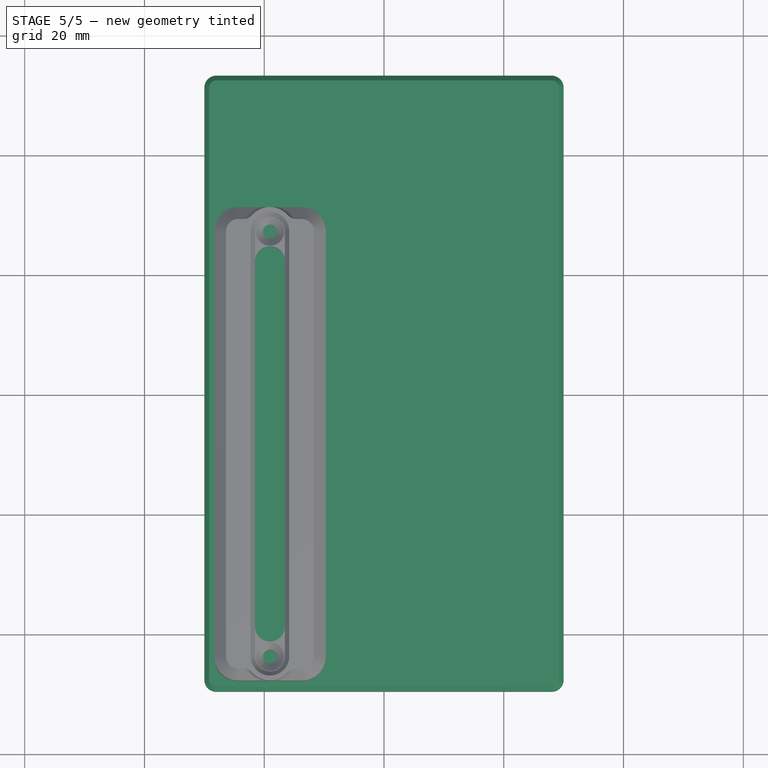
[diagram: stage 5 of 5 — top view after this stage's code; geometry added in this stage tinted green]
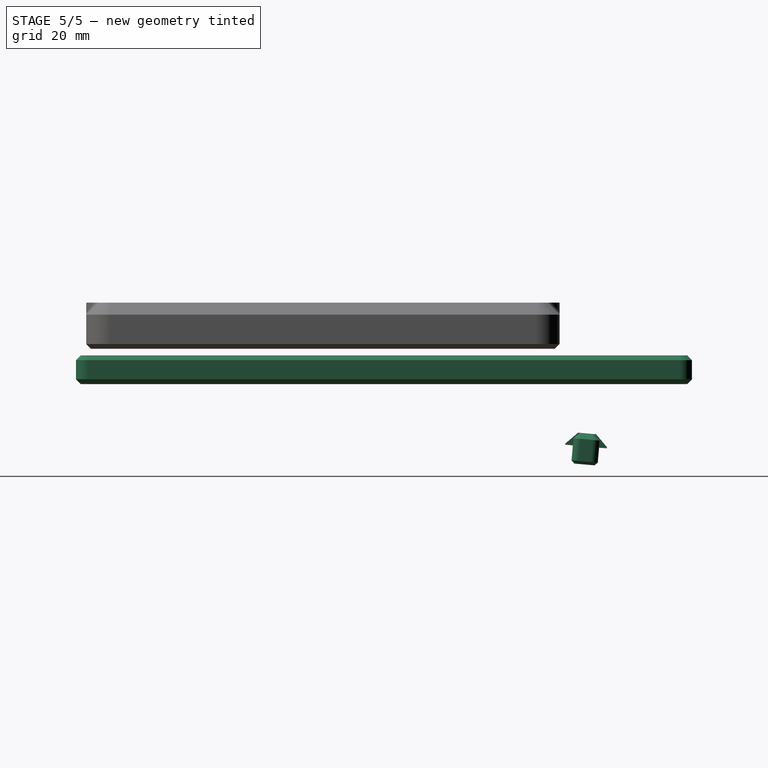
[diagram: stage 5 of 5 — right view after this stage's code; geometry added in this stage tinted green]
FEATURE [PartDesign::ShapeBinder] ShapeBinder
  Support = -> [Pad]
  TraceSupport = false
  TreeRank = 43
FEATURE [Part::SubShapeBinder] Import  label="Import(Pad)"
  BindCopyOnChange = 0
  BindMode = 0
  ClaimChildren = false
  Context = -> Assembly [Parts.Part.Body001.Import.]
  FillStyle = 0
  Fuse = false
  MakeFace = false
  OffsetFill = false
  OffsetIntersection = false
  OffsetJoinType = 0
  OffsetOpenResult = false
  PartialLoad = false
  Relative = true
  Support = -> [Body[Pad.]]
  TreeRank = 45
  _Version = 8
FEATURE [Sketcher::SketchObject] Sketch003  label="Plate Sketch"
  ArcFitTolerance = 1e-06
  AttachmentSupport = -> [ShapeBinder]
  ExternalGeometry = -> [Import]
  FullyConstrained = true
  MapMode = 5
  Support = -> [ShapeBinder]
  TreeRank = 44
  expr: Constraints[8] = Spreadsheet.Y_length
  sketch-geometry (5):
    g0: LineSegment StartX=-30 StartY=33.0627 StartZ=0 EndX=30 EndY=33.0627 EndZ=0
    g1: LineSegment StartX=30 StartY=33.0627 StartZ=0 EndX=30 EndY=-69.7998 EndZ=0
    g2: LineSegment StartX=30 StartY=-69.7998 StartZ=0 EndX=-30 EndY=-69.7998 EndZ=0
    g3: LineSegment StartX=-30 StartY=-69.7998 StartZ=0 EndX=-30 EndY=33.0627 EndZ=0
    g4: GeomPoint [constr] X=-30 Y=-18.3685 Z=0
  constraints (12):
    c: Coincident(g0,g1)
    c: Coincident(g1,g2)
    c: Coincident(g2,g3)
    c: Coincident(g3,g0)
    c: Horizontal(g0)
    c: Horizontal(g2)
    c: Vertical(g1)
    c: Vertical(g3)
    c: DistanceY(g3,g3) = 102.862
    c: Symmetric(g-3,g-3,g4)
    c: Symmetric(g0,g2,g4)
    c: PointOnObject(g-4,g1)
FEATURE [PartDesign::Pad] Pad001
  ClaimChildren = false
  Direction = (1,1,1)
  Fit = 0
  FitJoin = 0
  InnerFit = 0
  InnerFitJoin = 0
  InnerTaperAngle = 0
  InnerTaperAngleRev = 0
  Length = 4.8
  Length2 = 100
  Linearize = true
  NewSolid = false
  Profile = -> Sketch003
  Suppress = false
  TreeRank = 46
  Type = 0
  _ProfileBasedVersion = 1
  expr: Length = Spreadsheet.Plate_thk
FEATURE [PartDesign::Fillet] Fillet
  Base = -> Pad001 [Edge8,Edge5,Edge2,Edge1]
  BaseFeature = -> Pad001
  NewSolid = false
  Radius = 2
  SupportTransform = false
  Suppress = false
  TreeRank = 47
FEATURE [PartDesign::Chamfer] Chamfer
  Angle = 45
  Base = -> Fillet [Edge20,Edge11]
  BaseFeature = -> Fillet
  ChamferType = 0
  FlipDirection = false
  NewSolid = false
  Size = 0.8
  Size2 = 1
  SupportTransform = false
  Suppress = false
  TreeRank = 48
FEATURE [Part::SubShapeBinder] Import008  label="Import008(Sketch)"
  BindCopyOnChange = 0
  BindMode = 0
  ClaimChildren = false
  Context = -> Assembly [Parts.Part.Body002.Import008.]
  FillStyle = 0
  Fuse = false
  MakeFace = false
  OffsetFill = false
  OffsetIntersection = false
  OffsetJoinType = 0
  OffsetOpenResult = false
  PartialLoad = false
  Relative = true
  Support = -> [Body[Sketch.]]
  TreeRank = 156
  _Version = 8
FEATURE [App::Link] Link002  label="Link002(Silicone Stopper Foot)"
  AutoLinkLabel = true
  AutoPlacement = true
  LinkPlacement = pos=(-27.4,29.8829,-13.769) rot=(-0.706771,0.706771,-0.030829;3.20323rad)
  LinkedObject = -> <external silicone_stopper_foot.FCStd>#Body
  Placement = pos=(-27.4,29.8829,-13.769) rot=(-0.706771,0.706771,-0.030829;3.20323rad)
  ShowElement = false
  SyncGroupVisibility = false
  TreeRank = 186
  _LinkVersion = 1
FEATURE [App::Link] Link003  label="Link003(*Silicone Stopper Foot)"
  AutoLinkLabel = true
  AutoPlacement = true
  LinkPlacement = pos=(27.4,29.8829,-13.769) rot=(-0.706771,0.706771,-0.030829;3.20323rad)
  LinkedObject = -> Link002
  Placement = pos=(27.4,29.8829,-13.769) rot=(-0.706771,0.706771,-0.030829;3.20323rad)
  ShowElement = false
  SyncGroupVisibility = false
  TreeRank = 227
  _LinkVersion = 1
FEATURE [App::Link] Link004  label="Link004(*Silicone Stopper Foot)"
  AutoLinkLabel = true
  AutoPlacement = true
  LinkPlacement = pos=(-25.8919,-74.1152,-4.6703) rot=(-1,0,0;3.22878rad)
  LinkedObject = -> Link003
  Placement = pos=(-25.8919,-74.1152,-4.6703) rot=(-1,0,0;3.22878rad)
  ShowElement = false
  SyncGroupVisibility = false
  TreeRank = 234
  _LinkVersion = 1
FEATURE [App::Link] Link005  label="Link005(*Silicone Stopper Foot)"
  AutoLinkLabel = true
  AutoPlacement = true
  LinkPlacement = pos=(25.8919,-74.1152,-4.6703) rot=(0,-0.99905,0.043578;3.14159rad)
  LinkedObject = -> Link004
  Placement = pos=(25.8919,-74.1152,-4.6703) rot=(0,-0.99905,0.043578;3.14159rad)
  ShowElement = false
  SyncGroupVisibility = false
  TreeRank = 236
  _LinkVersion = 1
FEATURE [App::DocumentObjectGroup] Group  label="Feet"
  ClaimAllChildren = true
  ExportMode = 1
  Group = -> [Link002,Link003,Link004,Link005]
  TreeRank = 248
  _GroupVersion = 1
FEATURE [Part::SubShapeBinder] Import009  label="Import009(Inner)"
  BindCopyOnChange = 0
  BindMode = 0
  ClaimChildren = false
  Context = -> Assembly [Parts.Part.Body003.Import009.]
  FillStyle = 0
  Fuse = false
  MakeFace = false
  OffsetFill = false
  OffsetIntersection = false
  OffsetJoinType = 0
  OffsetOpenResult = false
  PartialLoad = false
  Relative = true
  Support = -> [Body002[Export004.]]
  TreeRank = 284
  _Version = 8
FEATURE [PartDesign::Pad] Pad009
  ClaimChildren = false
  Direction = (1,1,1)
  Fit = -0.3
  FitJoin = 0
  InnerFit = 0
  InnerFitJoin = 0
  InnerTaperAngle = 0
  InnerTaperAngleRev = 0
  Length = 4.2
  Length2 = 100
  Linearize = true
  NewSolid = false
  Profile = -> Import009
  Suppress = false
  TreeRank = 285
  Type = 0
  _ProfileBasedVersion = 1
FEATURE [PartDesign::Pad] Pad010
  BaseFeature = -> Pad009
  ClaimChildren = false
  Direction = (1,1,1)
  Fit = -0.3
  FitJoin = 0
  InnerFit = 0
  InnerFitJoin = 0
  InnerTaperAngle = 0
  InnerTaperAngleRev = 0
  Length = 1
  Length2 = 100
  Linearize = true
  NewSolid = false
  Profile = -> Import009
  Reversed = true
  Suppress = false
  TreeRank = 286
  Type = 0
  _ProfileBasedVersion = 1
FEATURE [Sketcher::SketchObject] Sketch019
  ArcFitTolerance = 1e-06
  AttachmentSupport = -> [Pad010]
  ExternalGeometry = -> [Import009]
  FullyConstrained = true
  MapMode = 5
  Placement = pos=(-1e-16,-0.597245,-6.82655) rot=(-1,0,0;0.087266rad)
  Support = -> [Pad010]
  TreeRank = 287
  sketch-geometry (5):
    g0: LineSegment StartX=4 StartY=19.7108 StartZ=0 EndX=2 EndY=19.7108 EndZ=0
    g1: LineSegment StartX=2 StartY=19.7108 StartZ=0 EndX=2 EndY=12.7108 EndZ=0
    g2: LineSegment StartX=2 StartY=12.7108 StartZ=0 EndX=4 EndY=12.7108 EndZ=0
    g3: LineSegment StartX=4 StartY=12.7108 StartZ=0 EndX=4 EndY=19.7108 EndZ=0
    g4: GeomPoint [constr] X=2 Y=16.2108 Z=0
  constraints (13):
    c: Coincident(g0,g1)
    c: Coincident(g1,g2)
    c: Coincident(g2,g3)
    c: Coincident(g3,g0)
    c: Horizontal(g0)
    c: Horizontal(g2)
    c: Vertical(g1)
    c: Vertical(g3)
    c: PointOnObject(g-4,g3)
    c: DistanceY(g1,g1) = 7
    c: Symmetric(g0,g1,g4)
    c: Symmetric(g-3,g-4,g4)
    c: DistanceY(g-4,g0) = 1
FEATURE [PartDesign::SubShapeBinder] Import010  label="Import010(Pad Button Wall Interior)"
  BindCopyOnChange = 0
  BindMode = 0
  ClaimChildren = false
  Context = -> Assembly [Parts.Part.Body003.Import010.]
  FillStyle = 0
  Fuse = false
  MakeFace = false
  OffsetFill = false
  OffsetIntersection = false
  OffsetJoinType = 0
  OffsetOpenResult = false
  PartialLoad = false
  Relative = true
  Support = -> [Body002[Fillet011.Face81]]
  TreeRank = 289
  _Version = 8
FEATURE [PartDesign::Pad] Pad011
  BaseFeature = -> Pad010
  ClaimChildren = false
  Direction = (1,1,1)
  Fit = 0
  FitJoin = 0
  InnerFit = 0
  InnerFitJoin = 0
  InnerTaperAngle = 0
  InnerTaperAngleRev = 0
  Length = 10
  Length2 = 100
  Linearize = true
  NewSolid = false
  Profile = -> Sketch019
  Suppress = false
  TreeRank = 288
  Type = 3
  UpToFace = -> Import010
  _ProfileBasedVersion = 1
FEATURE [PartDesign::Chamfer] Chamfer005
  Angle = 45
  Base = -> Pad011 [Edge32,Edge40]
  BaseFeature = -> Pad011
  ChamferType = 0
  FlipDirection = false
  NewSolid = false
  Size = 1
  Size2 = 1
  SupportTransform = false
  Suppress = false
  TreeRank = 290
FEATURE [PartDesign::Chamfer] Chamfer007
  Angle = 45
  Base = -> Chamfer005 [Edge27,Edge75]
  BaseFeature = -> Chamfer005
  ChamferType = 0
  FlipDirection = false
  NewSolid = false
  Size = 2
  Size2 = 1
  SupportTransform = false
  Suppress = false
  TreeRank = 292
FEATURE [PartDesign::Chamfer] Chamfer006
  Angle = 45
  Base = -> Chamfer007 [Edge71]
  BaseFeature = -> Chamfer007
  ChamferType = 0
  FlipDirection = false
  NewSolid = false
  Size = 0.5
  Size2 = 1
  SupportTransform = false
  Suppress = false
  TreeRank = 291
FEATURE [PartDesign::Fillet] Fillet011  label="Pad Button Wall Interior"
  Base = -> Pad008 [Edge93]
  BaseFeature = -> Pad008
  NewSolid = false
  Radius = 1
  SupportTransform = false
  Suppress = false
  TreeRank = 273
FEATURE [Sketcher::SketchObject] Sketch021  label="Mascot Sketch"
  ArcFitTolerance = 1e-06
  AttachmentOffset = pos=(6.7,-43.5,0) rot=(0,0,1;0rad)
  AttachmentSupport = -> [DatumPlane]
  FullyConstrained = false
  MapMode = 5
  Placement = pos=(-0.0333333,-0.138718,-12.2873) rot=(0,0.043619,0.999048;3.14159rad)
  Support = -> [DatumPlane]
  TreeRank = 323
  sketch-geometry (141):
    g0: BSplineCurve PolesCount=4 KnotsCount=2 Degree=3 IsPeriodic=0
    g1: BSplineCurve PolesCount=4 KnotsCount=2 Degree=3 IsPeriodic=0
    g2: BSplineCurve PolesCount=4 KnotsCount=2 Degree=3 IsPeriodic=0
    g3: BSplineCurve PolesCount=4 KnotsCount=2 Degree=3 IsPeriodic=0
    g4: BSplineCurve PolesCount=4 KnotsCount=2 Degree=3 IsPeriodic=0
    g5: BSplineCurve PolesCount=4 KnotsCount=2 Degree=3 IsPeriodic=0
    g6: BSplineCurve PolesCount=4 KnotsCount=2 Degree=3 IsPeriodic=0
    g7: BSplineCurve PolesCount=4 KnotsCount=2 Degree=3 IsPeriodic=0
    g8: BSplineCurve PolesCount=4 KnotsCount=2 Degree=3 IsPeriodic=0
    g9: BSplineCurve PolesCount=4 KnotsCount=2 Degree=3 IsPeriodic=0
    g10: BSplineCurve PolesCount=4 KnotsCount=2 Degree=3 IsPeriodic=0
    g11: BSplineCurve PolesCount=4 KnotsCount=2 Degree=3 IsPeriodic=0
    g12: BSplineCurve PolesCount=4 KnotsCount=2 Degree=3 IsPeriodic=0
    g13: BSplineCurve PolesCount=4 KnotsCount=2 Degree=3 IsPeriodic=0
    g14: BSplineCurve PolesCount=4 KnotsCount=2 Degree=3 IsPeriodic=0
    g15: BSplineCurve PolesCount=4 KnotsCount=2 Degree=3 IsPeriodic=0
    g16: BSplineCurve PolesCount=2 KnotsCount=2 Degree=1 IsPeriodic=0
    g17: BSplineCurve PolesCount=4 KnotsCount=2 Degree=3 IsPeriodic=0
    g18: BSplineCurve PolesCount=4 KnotsCount=2 Degree=3 IsPeriodic=0
    g19: BSplineCurve PolesCount=4 KnotsCount=2 Degree=3 IsPeriodic=0
    g20: BSplineCurve PolesCount=2 KnotsCount=2 Degree=1 IsPeriodic=0
    g21: BSplineCurve PolesCount=4 KnotsCount=2 Degree=3 IsPeriodic=0
    g22: BSplineCurve PolesCount=4 KnotsCount=2 Degree=3 IsPeriodic=0
    g23: BSplineCurve PolesCount=4 KnotsCount=2 Degree=3 IsPeriodic=0
    g24: BSplineCurve PolesCount=4 KnotsCount=2 Degree=3 IsPeriodic=0
    g25: BSplineCurve PolesCount=4 KnotsCount=2 Degree=3 IsPeriodic=0
    g26: BSplineCurve PolesCount=4 KnotsCount=2 Degree=3 IsPeriodic=0
    g27: BSplineCurve PolesCount=4 KnotsCount=2 Degree=3 IsPeriodic=0
    g28: BSplineCurve PolesCount=4 KnotsCount=2 Degree=3 IsPeriodic=0
    g29: BSplineCurve PolesCount=4 KnotsCount=2 Degree=3 IsPeriodic=0
    g30: BSplineCurve PolesCount=2 KnotsCount=2 Degree=1 IsPeriodic=0
    g31: BSplineCurve PolesCount=4 KnotsCount=2 Degree=3 IsPeriodic=0
    g32: BSplineCurve PolesCount=4 KnotsCount=2 Degree=3 IsPeriodic=0
    g33: BSplineCurve PolesCount=4 KnotsCount=2 Degree=3 IsPeriodic=0
    g34: BSplineCurve PolesCount=4 KnotsCount=2 Degree=3 IsPeriodic=0
    g35: BSplineCurve PolesCount=4 KnotsCount=2 Degree=3 IsPeriodic=0
    g36: BSplineCurve PolesCount=4 KnotsCount=2 Degree=3 IsPeriodic=0
    g37: BSplineCurve PolesCount=4 KnotsCount=2 Degree=3 IsPeriodic=0
    g38: BSplineCurve PolesCount=4 KnotsCount=2 Degree=3 IsPeriodic=0
    g39: BSplineCurve PolesCount=4 KnotsCount=2 Degree=3 IsPeriodic=0
    g40: BSplineCurve PolesCount=4 KnotsCount=2 Degree=3 IsPeriodic=0
    g41: BSplineCurve PolesCount=4 KnotsCount=2 Degree=3 IsPeriodic=0
    g42: BSplineCurve PolesCount=4 KnotsCount=2 Degree=3 IsPeriodic=0
    g43: BSplineCurve PolesCount=4 KnotsCount=2 Degree=3 IsPeriodic=0
    g44: BSplineCurve PolesCount=4 KnotsCount=2 Degree=3 IsPeriodic=0
    g45: BSplineCurve PolesCount=4 KnotsCount=2 Degree=3 IsPeriodic=0
    g46: BSplineCurve PolesCount=4 KnotsCount=2 Degree=3 IsPeriodic=0
    g47: BSplineCurve PolesCount=4 KnotsCount=2 Degree=3 IsPeriodic=0
    g48: BSplineCurve PolesCount=4 KnotsCount=2 Degree=3 IsPeriodic=0
    g49: BSplineCurve PolesCount=4 KnotsCount=2 Degree=3 IsPeriodic=0
    g50: BSplineCurve PolesCount=4 KnotsCount=2 Degree=3 IsPeriodic=0
    g51: BSplineCurve PolesCount=4 KnotsCount=2 Degree=3 IsPeriodic=0
    g52: BSplineCurve PolesCount=4 KnotsCount=2 Degree=3 IsPeriodic=0
    g53: BSplineCurve PolesCount=4 KnotsCount=2 Degree=3 IsPeriodic=0
    g54: BSplineCurve PolesCount=4 KnotsCount=2 Degree=3 IsPeriodic=0
    g55: BSplineCurve PolesCount=4 KnotsCount=2 Degree=3 IsPeriodic=0
    g56: BSplineCurve PolesCount=4 KnotsCount=2 Degree=3 IsPeriodic=0
    g57: BSplineCurve PolesCount=4 KnotsCount=2 Degree=3 IsPeriodic=0
    g58: BSplineCurve PolesCount=4 KnotsCount=2 Degree=3 IsPeriodic=0
    g59: BSplineCurve PolesCount=4 KnotsCount=2 Degree=3 IsPeriodic=0
    g60: BSplineCurve PolesCount=4 KnotsCount=2 Degree=3 IsPeriodic=0
    g61: BSplineCurve PolesCount=2 KnotsCount=2 Degree=1 IsPeriodic=0
    g62: BSplineCurve PolesCount=4 KnotsCount=2 Degree=3 IsPeriodic=0
    g63: BSplineCurve PolesCount=4 KnotsCount=2 Degree=3 IsPeriodic=0
    g64: BSplineCurve PolesCount=4 KnotsCount=2 Degree=3 IsPeriodic=0
    g65: BSplineCurve PolesCount=4 KnotsCount=2 Degree=3 IsPeriodic=0
    g66: BSplineCurve PolesCount=4 KnotsCount=2 Degree=3 IsPeriodic=0
    g67: BSplineCurve PolesCount=4 KnotsCount=2 Degree=3 IsPeriodic=0
    g68: BSplineCurve PolesCount=4 KnotsCount=2 Degree=3 IsPeriodic=0
    g69: BSplineCurve PolesCount=4 KnotsCount=2 Degree=3 IsPeriodic=0
    g70: BSplineCurve PolesCount=2 KnotsCount=2 Degree=1 IsPeriodic=0
    g71: BSplineCurve PolesCount=4 KnotsCount=2 Degree=3 IsPeriodic=0
    g72: BSplineCurve PolesCount=4 KnotsCount=2 Degree=3 IsPeriodic=0
    g73: BSplineCurve PolesCount=4 KnotsCount=2 Degree=3 IsPeriodic=0
    g74: BSplineCurve PolesCount=4 KnotsCount=2 Degree=3 IsPeriodic=0
    g75: BSplineCurve PolesCount=4 KnotsCount=2 Degree=3 IsPeriodic=0
    g76: BSplineCurve PolesCount=4 KnotsCount=2 Degree=3 IsPeriodic=0
    g77: BSplineCurve PolesCount=4 KnotsCount=2 Degree=3 IsPeriodic=0
    g78: BSplineCurve PolesCount=4 KnotsCount=2 Degree=3 IsPeriodic=0
    g79: BSplineCurve PolesCount=4 KnotsCount=2 Degree=3 IsPeriodic=0
    g80: BSplineCurve PolesCount=4 KnotsCount=2 Degree=3 IsPeriodic=0
    g81: BSplineCurve PolesCount=4 KnotsCount=2 Degree=3 IsPeriodic=0
    g82: BSplineCurve PolesCount=4 KnotsCount=2 Degree=3 IsPeriodic=0
    g83: BSplineCurve PolesCount=4 KnotsCount=2 Degree=3 IsPeriodic=0
    g84: BSplineCurve PolesCount=4 KnotsCount=2 Degree=3 IsPeriodic=0
    g85: BSplineCurve PolesCount=4 KnotsCount=2 Degree=3 IsPeriodic=0
    g86: BSplineCurve PolesCount=4 KnotsCount=2 Degree=3 IsPeriodic=0
    g87: BSplineCurve PolesCount=4 KnotsCount=2 Degree=3 IsPeriodic=0
    g88: BSplineCurve PolesCount=4 KnotsCount=2 Degree=3 IsPeriodic=0
    g89: BSplineCurve PolesCount=4 KnotsCount=2 Degree=3 IsPeriodic=0
    g90: BSplineCurve PolesCount=4 KnotsCount=2 Degree=3 IsPeriodic=0
    g91: BSplineCurve PolesCount=2 KnotsCount=2 Degree=1 IsPeriodic=0
    g92: BSplineCurve PolesCount=4 KnotsCount=2 Degree=3 IsPeriodic=0
    g93: BSplineCurve PolesCount=4 KnotsCount=2 Degree=3 IsPeriodic=0
    g94: BSplineCurve PolesCount=4 KnotsCount=2 Degree=3 IsPeriodic=0
    g95: BSplineCurve PolesCount=4 KnotsCount=2 Degree=3 IsPeriodic=0
    g96: BSplineCurve PolesCount=4 KnotsCount=2 Degree=3 IsPeriodic=0
    g97: BSplineCurve PolesCount=4 KnotsCount=2 Degree=3 IsPeriodic=0
    g98: BSplineCurve PolesCount=4 KnotsCount=2 Degree=3 IsPeriodic=0
    g99: BSplineCurve PolesCount=4 KnotsCount=2 Degree=3 IsPeriodic=0
    g100: BSplineCurve PolesCount=4 KnotsCount=2 Degree=3 IsPeriodic=0
    g101: BSplineCurve PolesCount=4 KnotsCount=2 Degree=3 IsPeriodic=0
    g102: BSplineCurve PolesCount=4 KnotsCount=2 Degree=3 IsPeriodic=0
    g103: BSplineCurve PolesCount=4 KnotsCount=2 Degree=3 IsPeriodic=0
    g104: BSplineCurve PolesCount=4 KnotsCount=2 Degree=3 IsPeriodic=0
    g105: BSplineCurve PolesCount=4 KnotsCount=2 Degree=3 IsPeriodic=0
    g106: BSplineCurve PolesCount=4 KnotsCount=2 Degree=3 IsPeriodic=0
    g107: BSplineCurve PolesCount=4 KnotsCount=2 Degree=3 IsPeriodic=0
    g108: BSplineCurve PolesCount=4 KnotsCount=2 Degree=3 IsPeriodic=0
    g109: BSplineCurve PolesCount=4 KnotsCount=2 Degree=3 IsPeriodic=0
    g110: BSplineCurve PolesCount=4 KnotsCount=2 Degree=3 IsPeriodic=0
    g111: BSplineCurve PolesCount=4 KnotsCount=2 Degree=3 IsPeriodic=0
    g112: BSplineCurve PolesCount=4 KnotsCount=2 Degree=3 IsPeriodic=0
    g113: BSplineCurve PolesCount=2 KnotsCount=2 Degree=1 IsPeriodic=0
    g114: BSplineCurve PolesCount=4 KnotsCount=2 Degree=3 IsPeriodic=0
    g115: BSplineCurve PolesCount=4 KnotsCount=2 Degree=3 IsPeriodic=0
    g116: BSplineCurve PolesCount=4 KnotsCount=2 Degree=3 IsPeriodic=0
    g117: BSplineCurve PolesCount=4 KnotsCount=2 Degree=3 IsPeriodic=0
    g118: BSplineCurve PolesCount=4 KnotsCount=2 Degree=3 IsPeriodic=0
    g119: BSplineCurve PolesCount=4 KnotsCount=2 Degree=3 IsPeriodic=0
    g120: BSplineCurve PolesCount=4 KnotsCount=2 Degree=3 IsPeriodic=0
    g121: BSplineCurve PolesCount=4 KnotsCount=2 Degree=3 IsPeriodic=0
    g122: BSplineCurve PolesCount=4 KnotsCount=2 Degree=3 IsPeriodic=0
    g123: BSplineCurve PolesCount=4 KnotsCount=2 Degree=3 IsPeriodic=0
    g124: BSplineCurve PolesCount=4 KnotsCount=2 Degree=3 IsPeriodic=0
    g125: BSplineCurve PolesCount=4 KnotsCount=2 Degree=3 IsPeriodic=0
    g126: BSplineCurve PolesCount=2 KnotsCount=2 Degree=1 IsPeriodic=0
    g127: BSplineCurve PolesCount=4 KnotsCount=2 Degree=3 IsPeriodic=0
    g128: BSplineCurve PolesCount=4 KnotsCount=2 Degree=3 IsPeriodic=0
    g129: BSplineCurve PolesCount=4 KnotsCount=2 Degree=3 IsPeriodic=0
    g130: BSplineCurve PolesCount=4 KnotsCount=2 Degree=3 IsPeriodic=0
    g131: BSplineCurve PolesCount=4 KnotsCount=2 Degree=3 IsPeriodic=0
    g132: BSplineCurve PolesCount=4 KnotsCount=2 Degree=3 IsPeriodic=0
    g133: BSplineCurve PolesCount=4 KnotsCount=2 Degree=3 IsPeriodic=0
    g134: BSplineCurve PolesCount=4 KnotsCount=2 Degree=3 IsPeriodic=0
    g135: BSplineCurve PolesCount=2 KnotsCount=2 Degree=1 IsPeriodic=0
    g136: BSplineCurve PolesCount=4 KnotsCount=2 Degree=3 IsPeriodic=0
    g137: BSplineCurve PolesCount=2 KnotsCount=2 Degree=1 IsPeriodic=0
    g138: BSplineCurve PolesCount=4 KnotsCount=2 Degree=3 IsPeriodic=0
    g139: BSplineCurve PolesCount=2 KnotsCount=2 Degree=1 IsPeriodic=0
    g140: BSplineCurve PolesCount=4 KnotsCount=2 Degree=3 IsPeriodic=0
  constraints (141):
    c: Coincident(g0,g1)
    c: Coincident(g1,g2)
    c: Coincident(g2,g3)
    c: Coincident(g3,g4)
    c: Coincident(g4,g5)
    c: Coincident(g5,g6)
    c: Coincident(g6,g7)
    c: Coincident(g7,g8)
    c: Coincident(g8,g9)
    c: Coincident(g9,g10)
    c: Coincident(g10,g11)
    c: Coincident(g11,g12)
    c: Coincident(g12,g13)
    c: Coincident(g13,g14)
    c: Coincident(g14,g15)
    c: Coincident(g15,g16)
    c: Coincident(g16,g17)
    c: Coincident(g17,g18)
    c: Coincident(g18,g19)
    c: Coincident(g19,g20)
    c: Coincident(g20,g21)
    c: Coincident(g21,g22)
    c: Coincident(g22,g23)
    c: Coincident(g23,g24)
    c: Coincident(g24,g25)
    c: Coincident(g25,g26)
    c: Coincident(g26,g27)
    c: Coincident(g27,g28)
    c: Coincident(g28,g29)
    c: Coincident(g29,g30)
    c: Coincident(g30,g31)
    c: Coincident(g31,g32)
    c: Coincident(g32,g33)
    c: Coincident(g33,g34)
    c: Coincident(g34,g35)
    c: Coincident(g35,g36)
    c: Coincident(g36,g37)
    c: Coincident(g37,g38)
    c: Coincident(g38,g39)
    c: Coincident(g39,g40)
    c: Coincident(g40,g41)
    c: Coincident(g41,g42)
    c: Coincident(g42,g43)
    c: Coincident(g43,g44)
    c: Coincident(g44,g45)
    c: Coincident(g45,g46)
    c: Coincident(g46,g47)
    c: Coincident(g47,g48)
    c: Coincident(g48,g49)
    c: Coincident(g49,g50)
    c: Coincident(g50,g51)
    c: Coincident(g51,g52)
    c: Coincident(g52,g53)
    c: Coincident(g53,g54)
    c: Coincident(g54,g0)
    c: Coincident(g55,g56)
    c: Coincident(g56,g57)
    c: Coincident(g57,g58)
    c: Coincident(g58,g59)
    c: Coincident(g59,g60)
    c: Coincident(g60,g61)
    c: Coincident(g61,g62)
    c: Coincident(g62,g63)
    c: Coincident(g63,g64)
    c: Coincident(g64,g65)
    c: Coincident(g65,g66)
    c: Coincident(g66,g67)
    c: Coincident(g67,g68)
    c: Coincident(g68,g69)
    c: Coincident(g69,g70)
    c: Coincident(g70,g71)
    c: Coincident(g71,g72)
    c: Coincident(g72,g73)
    c: Coincident(g73,g74)
    c: Coincident(g74,g75)
    c: Coincident(g75,g76)
    c: Coincident(g76,g77)
    c: Coincident(g77,g78)
    c: Coincident(g78,g79)
    c: Coincident(g79,g80)
    c: Coincident(g80,g81)
    c: Coincident(g81,g82)
    c: Coincident(g82,g83)
    c: Coincident(g83,g84)
    c: Coincident(g84,g85)
    c: Coincident(g85,g86)
    c: Coincident(g86,g87)
    c: Coincident(g87,g88)
    c: Coincident(g88,g89)
    c: Coincident(g89,g90)
    c: Coincident(g90,g91)
    c: Coincident(g91,g55)
    c: Coincident(g92,g93)
    c: Coincident(g93,g94)
    c: Coincident(g94,g95)
    c: Coincident(g95,g96)
    c: Coincident(g96,g97)
    c: Coincident(g97,g98)
    c: Coincident(g98,g99)
    c: Coincident(g99,g100)
    c: Coincident(g100,g101)
    c: Coincident(g101,g102)
    c: Coincident(g102,g103)
    c: Coincident(g103,g104)
    c: Coincident(g104,g105)
    c: Coincident(g105,g106)
    c: Coincident(g106,g107)
    c: Coincident(g107,g108)
    c: Coincident(g108,g109)
    c: Coincident(g109,g110)
    c: Coincident(g110,g111)
    c: Coincident(g111,g112)
    c: Coincident(g112,g113)
    c: Coincident(g113,g114)
    c: Coincident(g114,g115)
    c: Coincident(g115,g116)
    c: Coincident(g116,g117)
    c: Coincident(g117,g118)
    c: Coincident(g118,g119)
    c: Coincident(g119,g120)
    c: Coincident(g120,g121)
    c: Coincident(g121,g122)
    c: Coincident(g122,g123)
    c: Coincident(g123,g124)
    c: Coincident(g124,g125)
    c: Coincident(g125,g126)
    c: Coincident(g126,g92)
    c: Coincident(g127,g128)
    c: Coincident(g128,g129)
    c: Coincident(g129,g130)
    c: Coincident(g130,g127)
    c: Coincident(g131,g132)
    c: Coincident(g132,g133)
    c: Coincident(g133,g134)
    c: Coincident(g134,g131)
    c: Coincident(g135,g136)
    c: Coincident(g136,g137)
    c: Coincident(g137,g138)
    c: Coincident(g138,g139)
    c: Coincident(g139,g140)
    c: Coincident(g140,g135)
FEATURE [PartDesign::Body] Body004  label="Cat Mascot Body"
  AutoGroupSolids = false
  ClaimAllChildren = false
  ExportMode = 0
  Group = -> [Sketch021,Pad012]
  Origin = -> Origin005
  Tip = -> Pad012
  TreeRank = 333
  _ExportChildren = -> [Pad012]
  _GroupVersion = 1
FEATURE [PartDesign::Pad] Pad012
  ClaimChildren = false
  Direction = (1,1,1)
  Fit = 0
  FitJoin = 0
  InnerFit = 0
  InnerFitJoin = 0
  InnerTaperAngle = 0
  InnerTaperAngleRev = 0
  Length = 0.3
  Length2 = 100
  Linearize = true
  NewSolid = false
  Placement = pos=(6.66667,-43.4732,-8.49601) rot=(0,0.043619,0.999048;3.14159rad)
  Profile = -> Sketch021
  Suppress = false
  TreeRank = 334
  Type = 0
  _ProfileBasedVersion = 1
FEATURE [PartDesign::Boolean] Boolean  label="Subtract Cat Mascot"
  BaseFeature = -> Chamfer008
  ClaimAllChildren = false
  ExportMode = 0
  Group = -> [Reference]
  NewSolid = false
  Suppress = false
  TreeRank = 336
  Type = 1
  _ExportChildren = -> [Reference]
  _GroupVersion = 1
FEATURE [PartDesign::Chamfer] Chamfer008
  Angle = 45
  Base = -> Fillet011 [Edge466]
  BaseFeature = -> Fillet011
  ChamferType = 0
  FlipDirection = false
  NewSolid = false
  Size = 0.5
  Size2 = 1
  SupportTransform = false
  Suppress = false
  TreeRank = 338
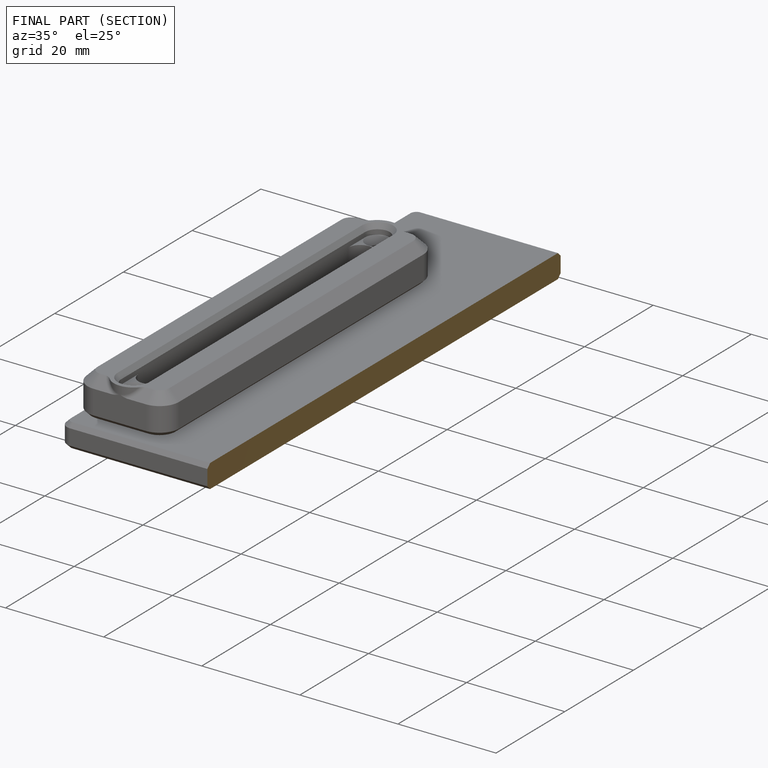
[diagram: finished part — half-section view (interior)]
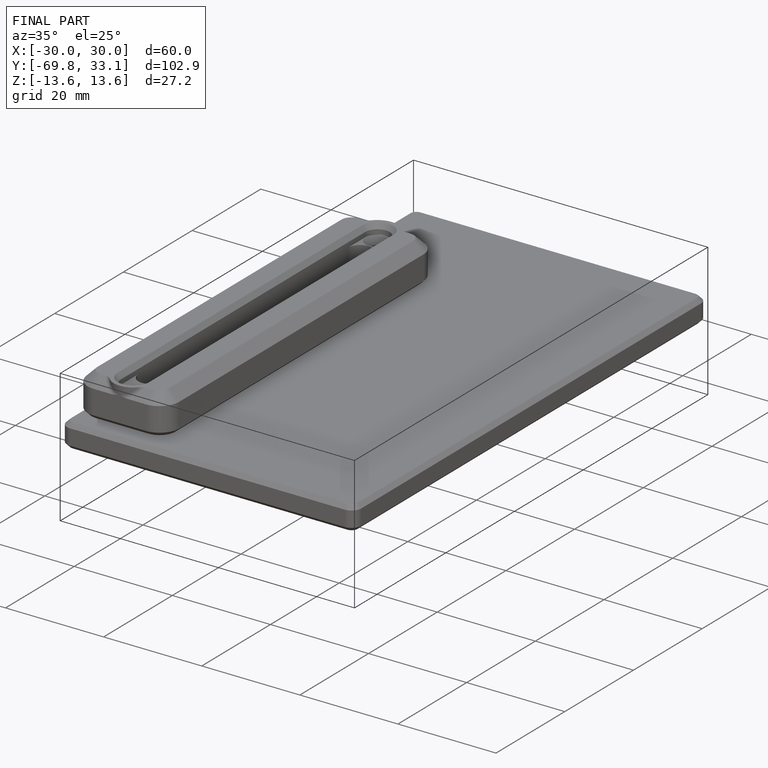
[diagram: finished part — iso view with bounding-box wireframe]
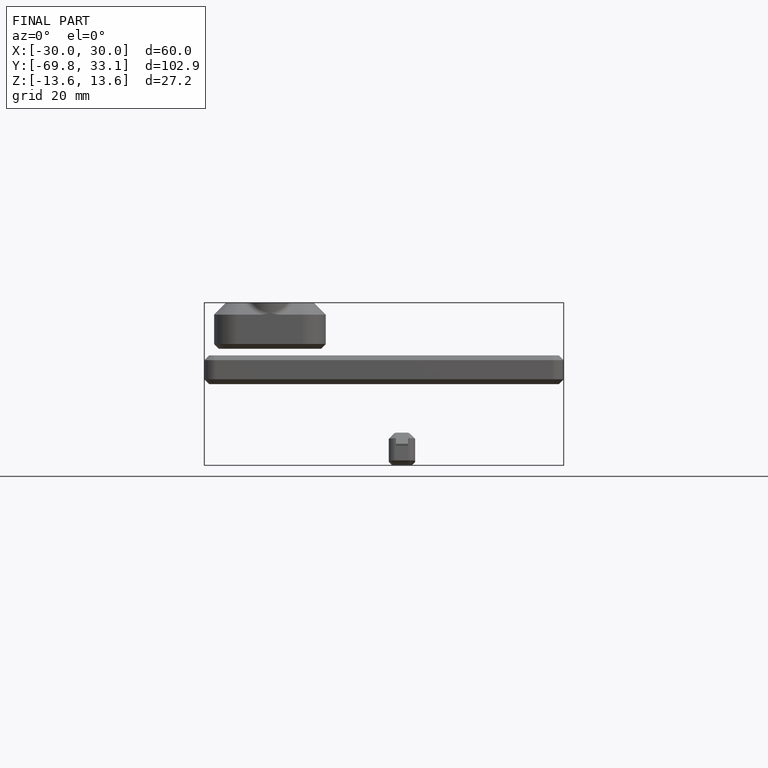
[diagram: finished part — front view with bounding-box wireframe]
